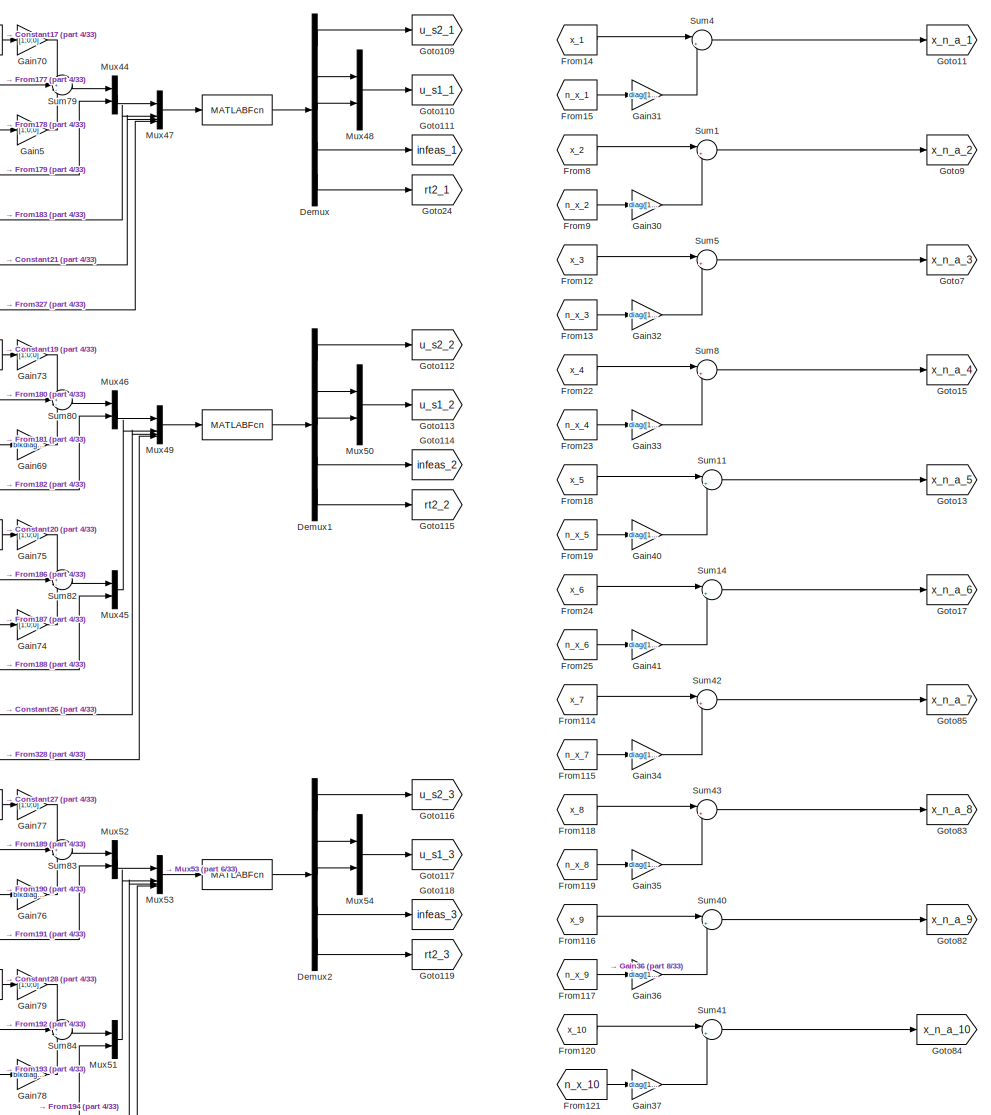
[diagram: root canvas - part 1/33, top center region]
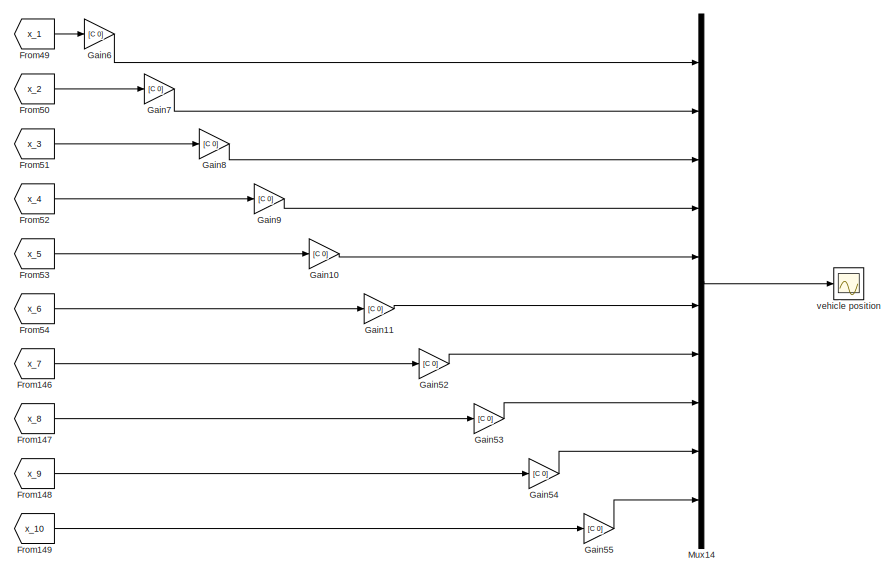
[diagram: root canvas - part 2/33, top right region]
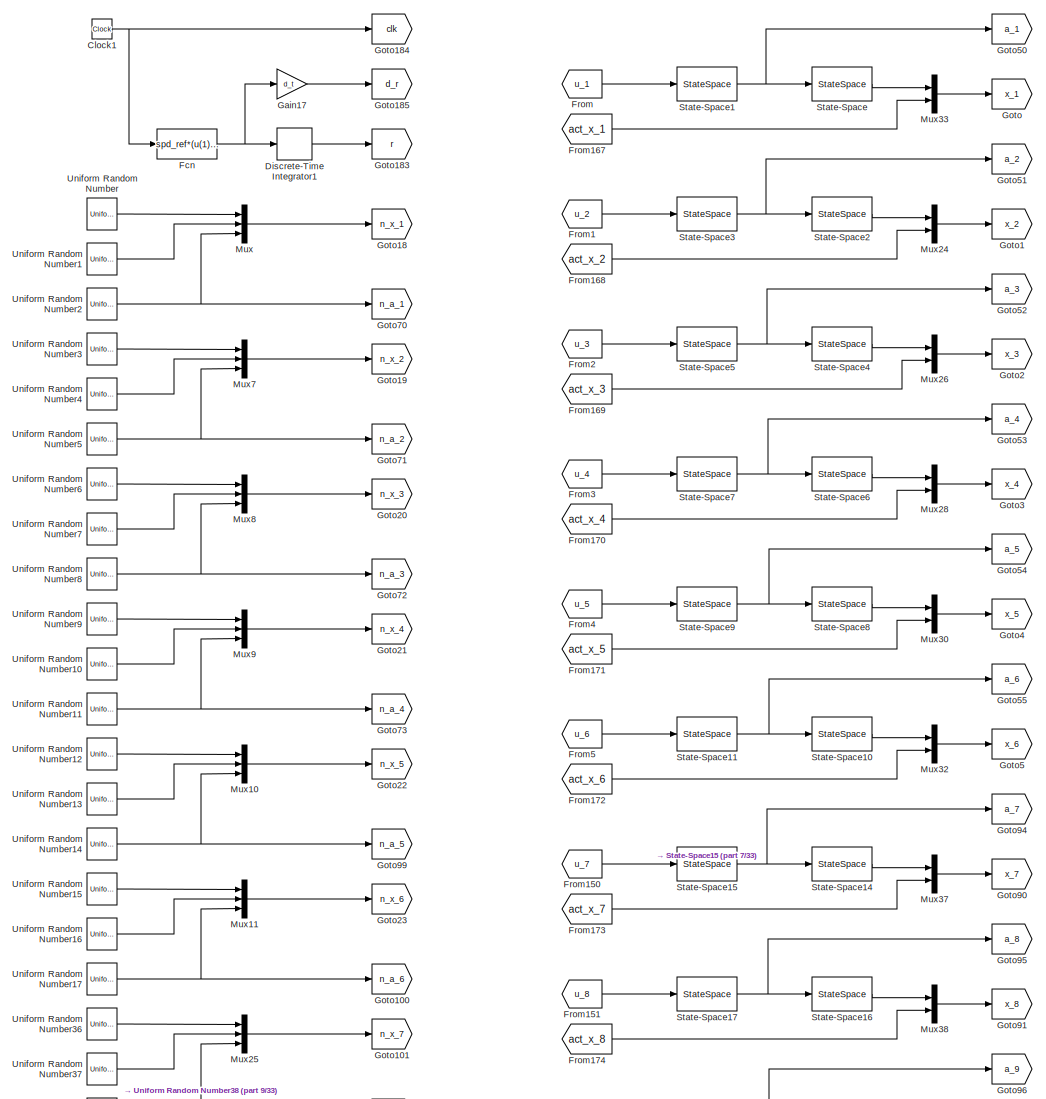
[diagram: root canvas - part 3/33, top left region]
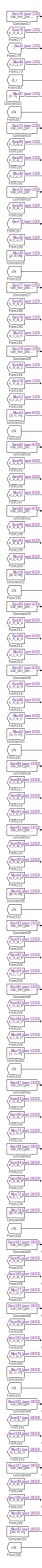
[diagram: root canvas - part 4/33, top center region]
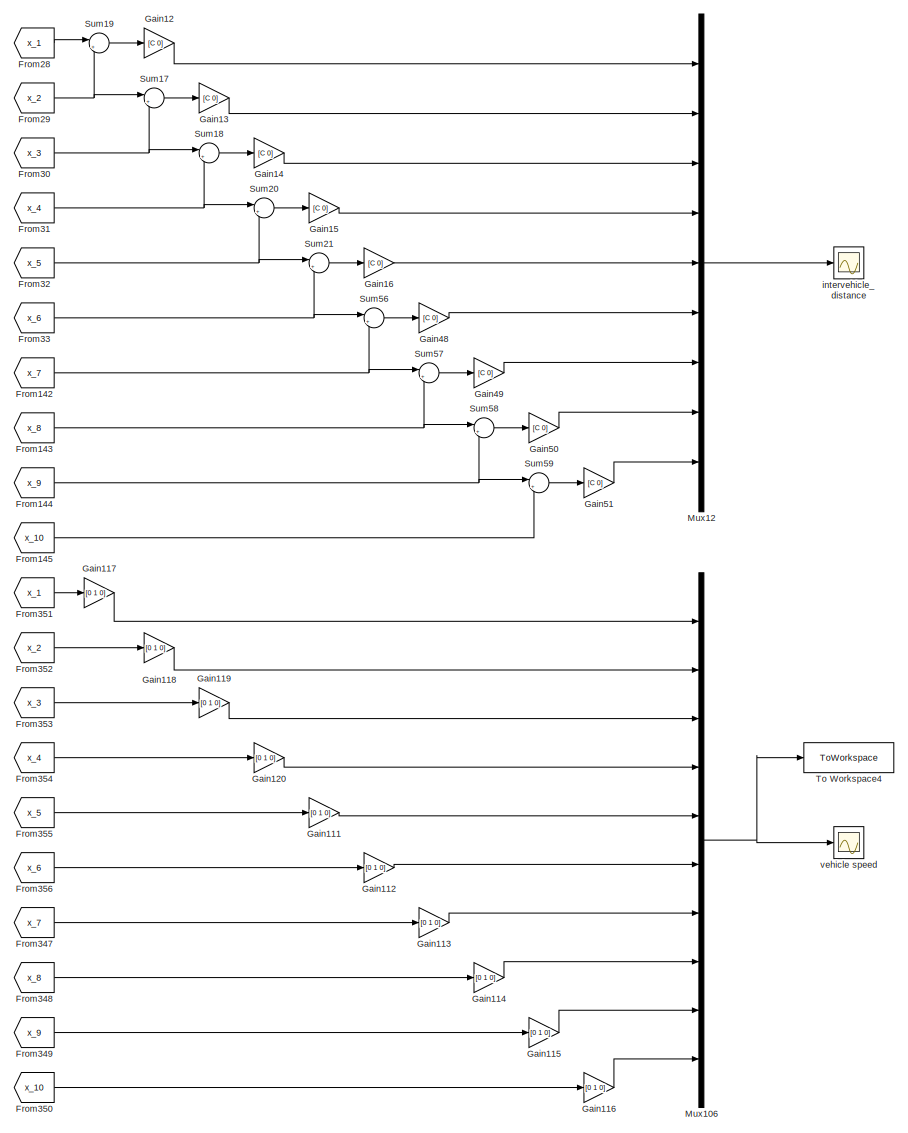
[diagram: root canvas - part 5/33, top right region]
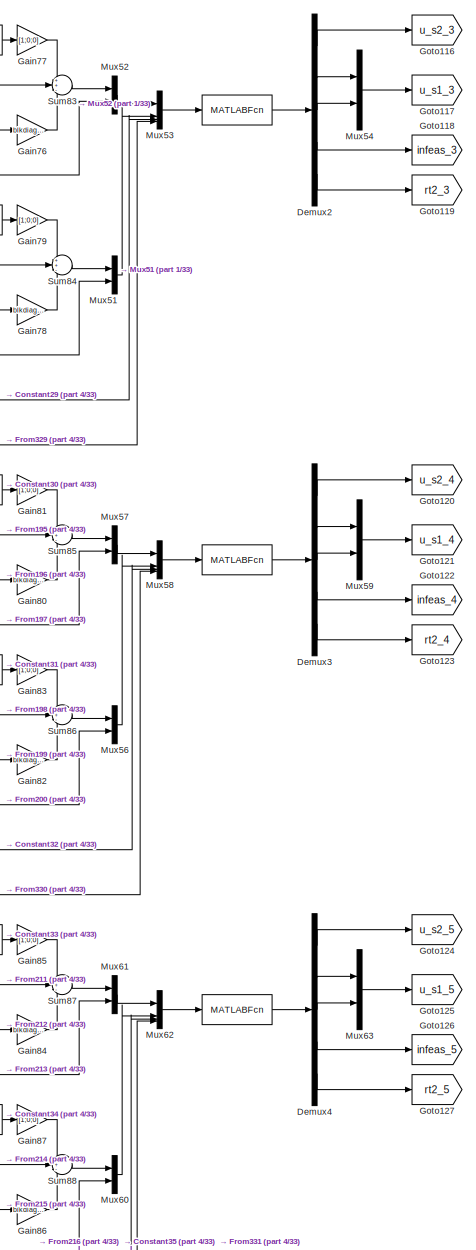
[diagram: root canvas - part 6/33, top center region]
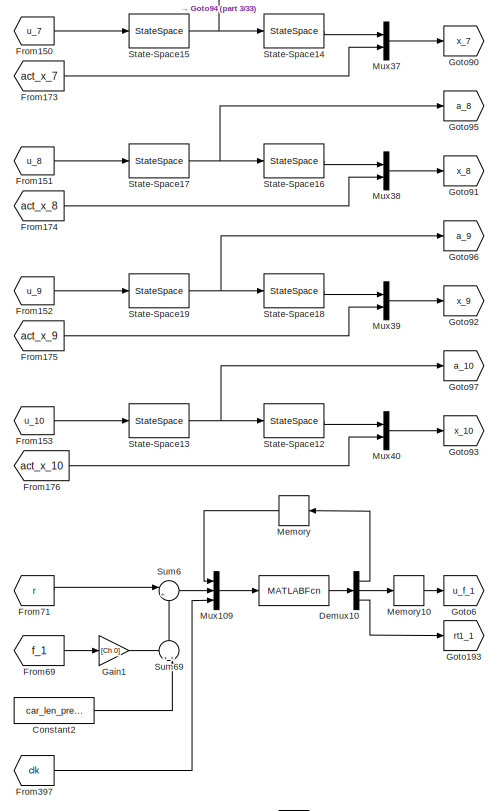
[diagram: root canvas - part 7/33, top left region]
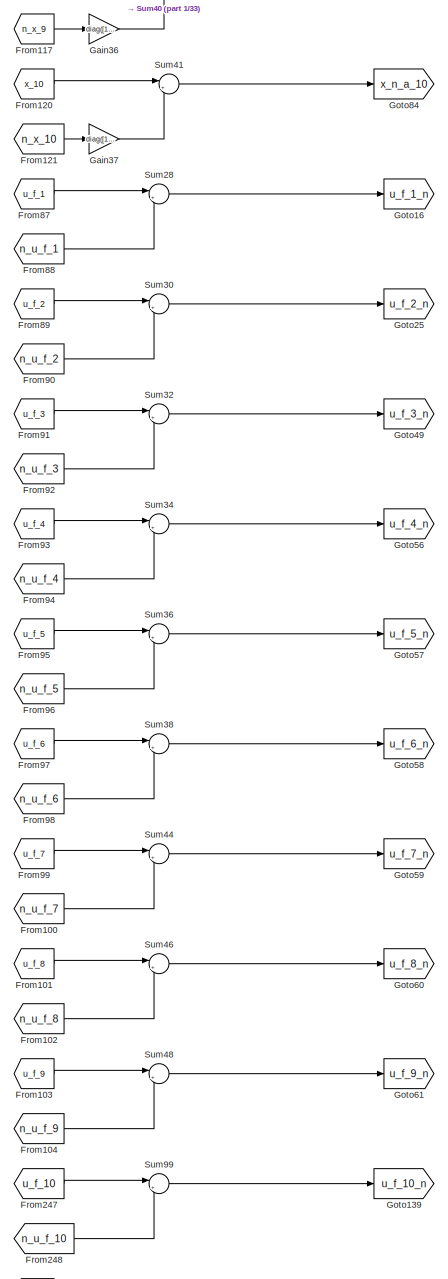
[diagram: root canvas - part 8/33, top center region]
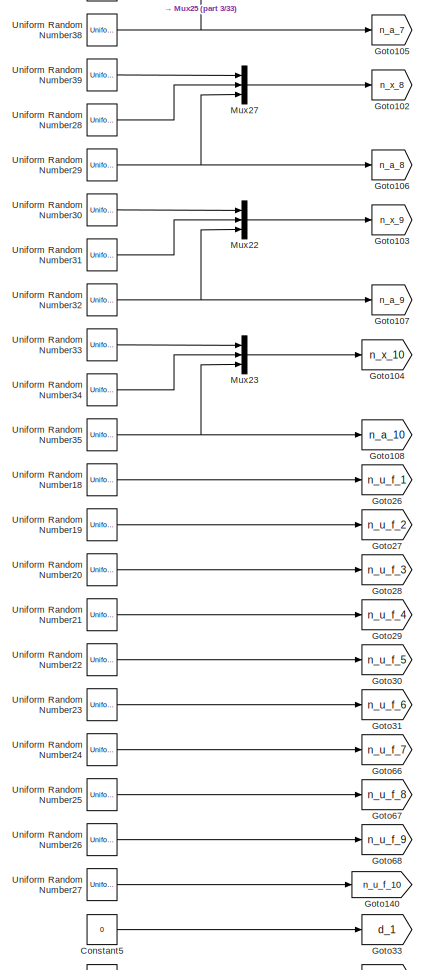
[diagram: root canvas - part 9/33, top left region]
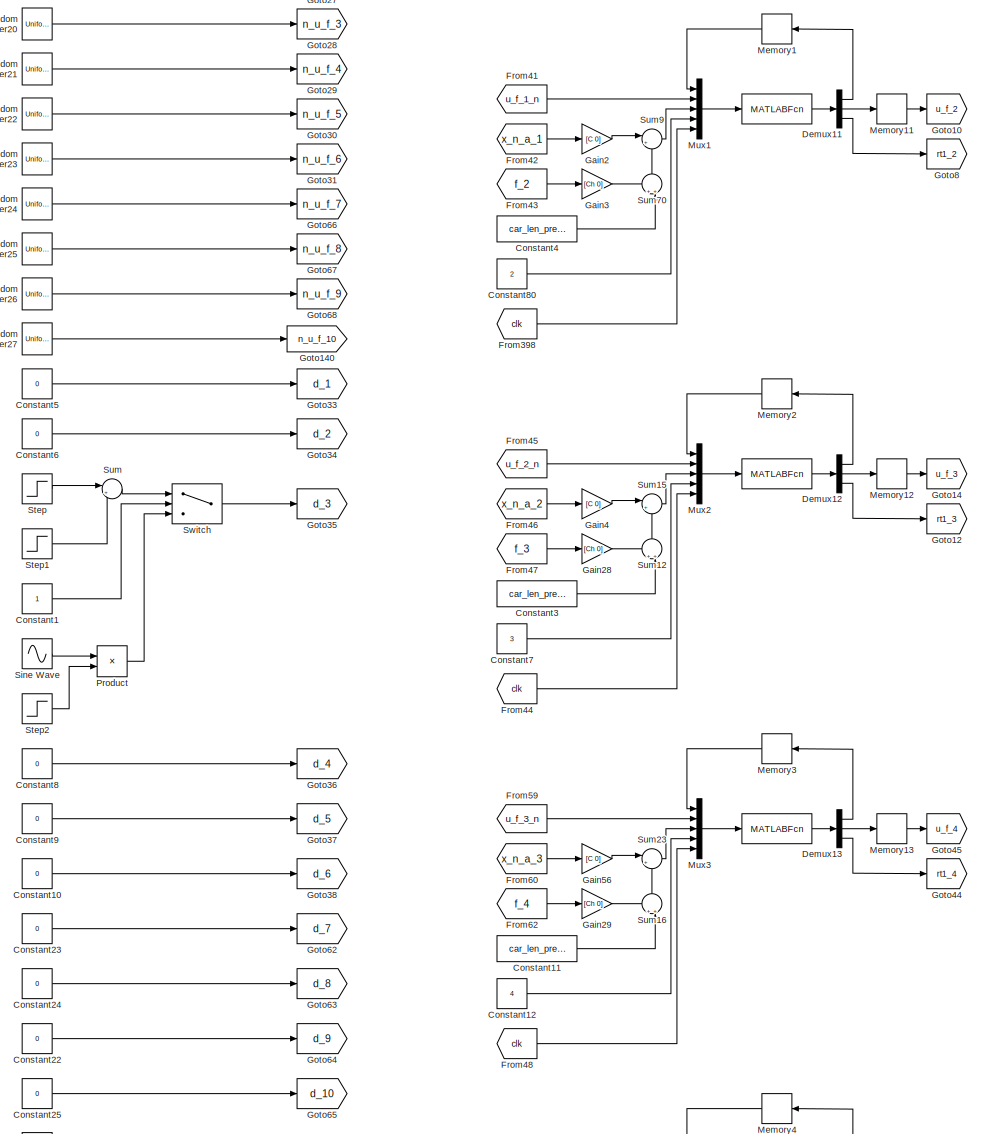
[diagram: root canvas - part 10/33, top left region]
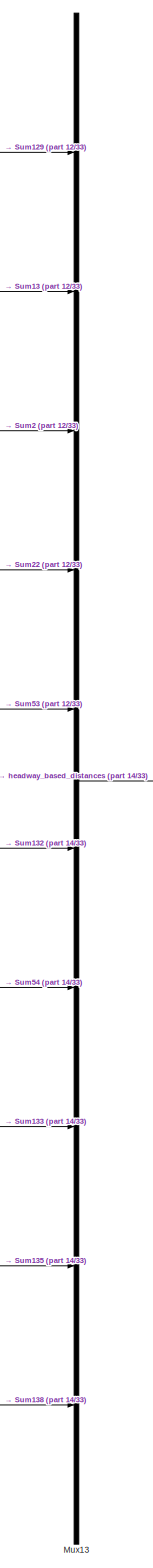
[diagram: root canvas - part 11/33, top right region]
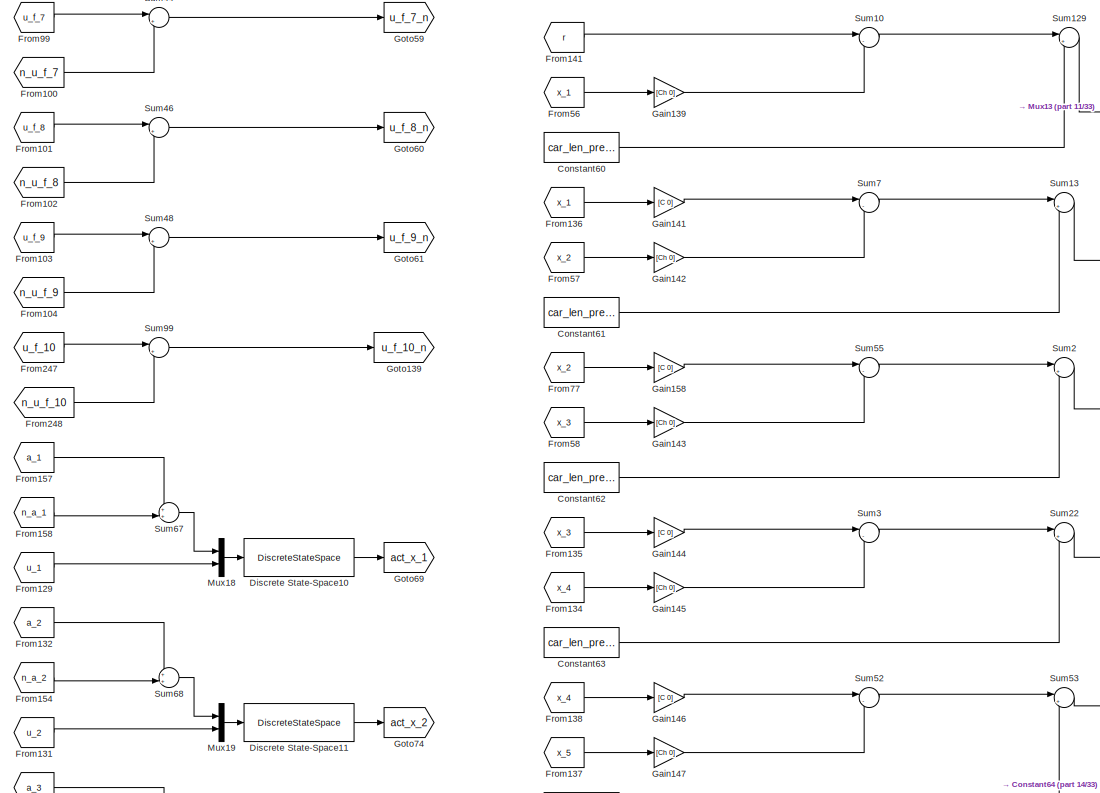
[diagram: root canvas - part 12/33, top right region]
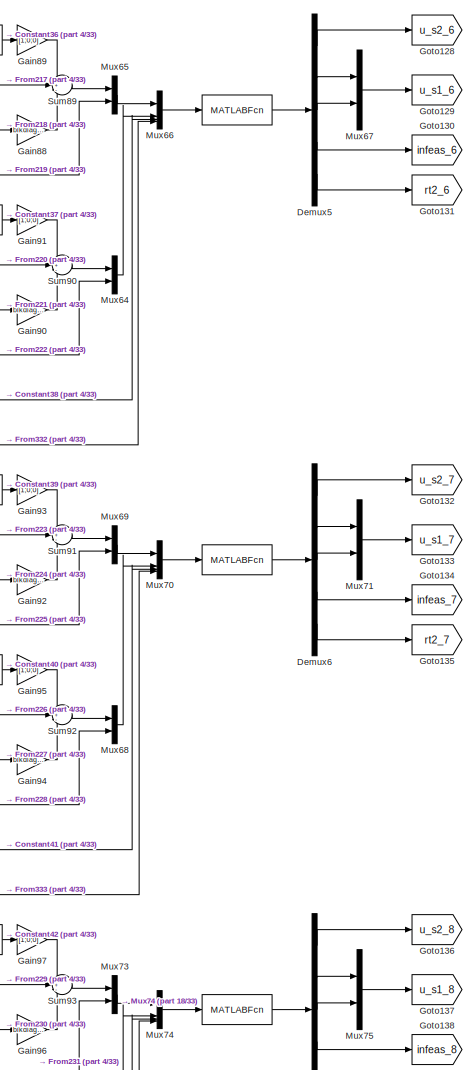
[diagram: root canvas - part 13/33, top center region]
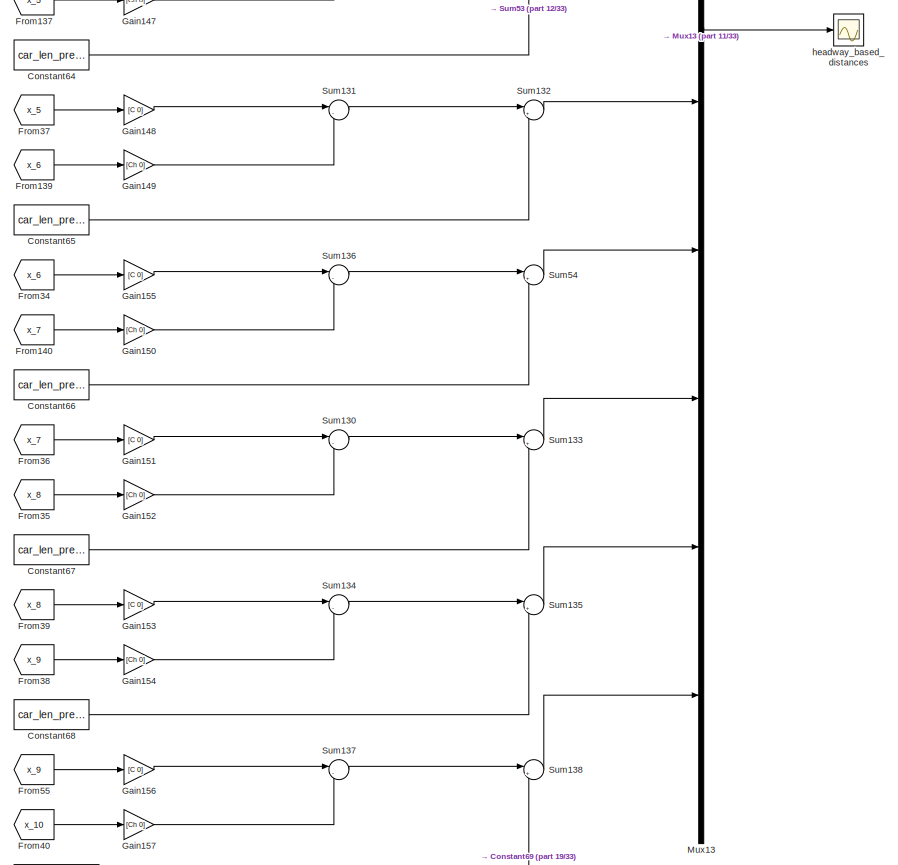
[diagram: root canvas - part 14/33, top right region]
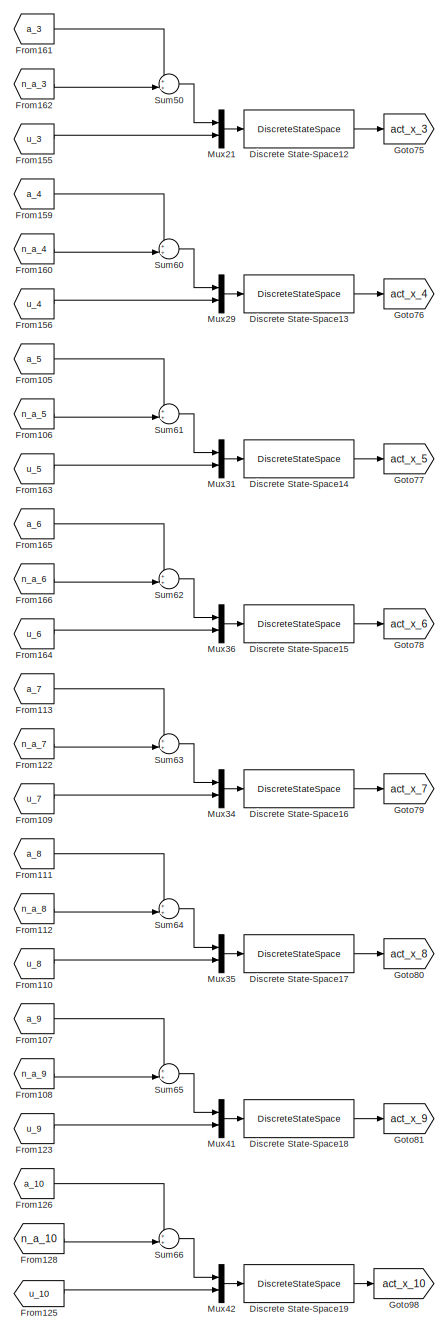
[diagram: root canvas - part 15/33, top center region]
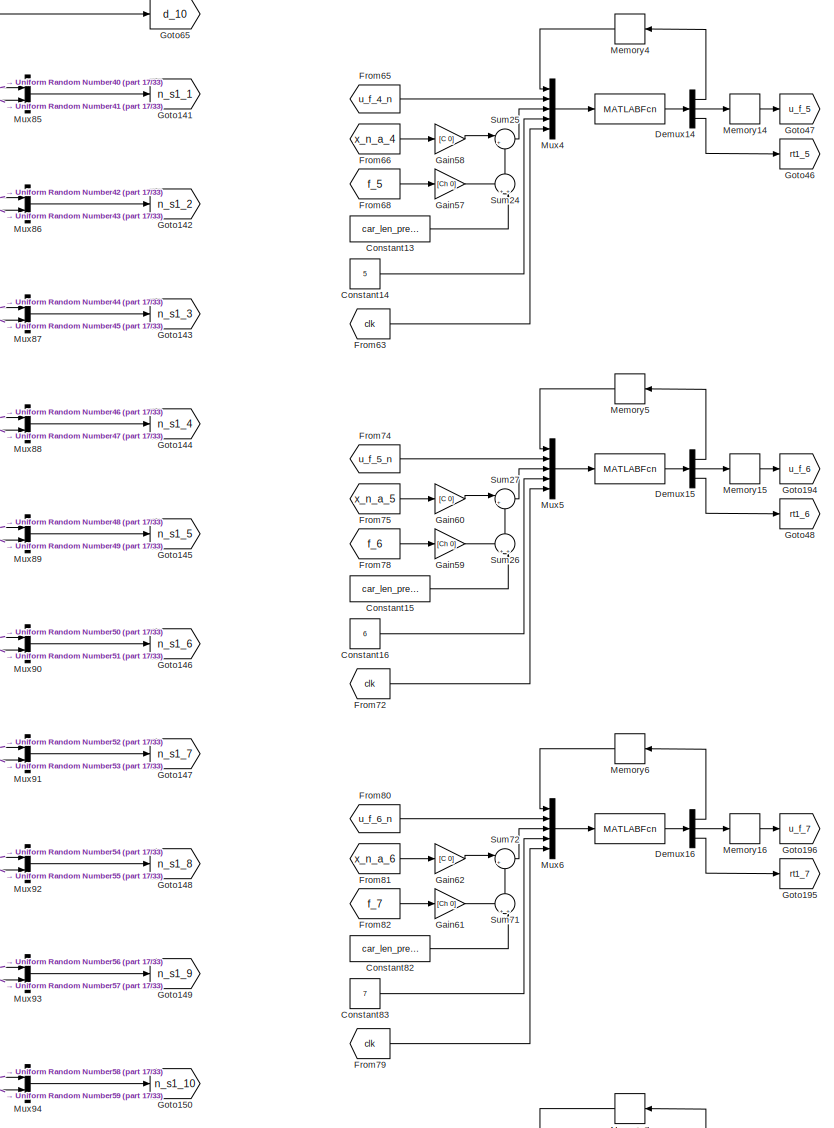
[diagram: root canvas - part 16/33, middle left region]
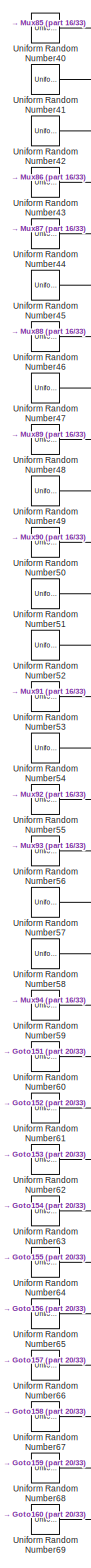
[diagram: root canvas - part 17/33, middle left region]
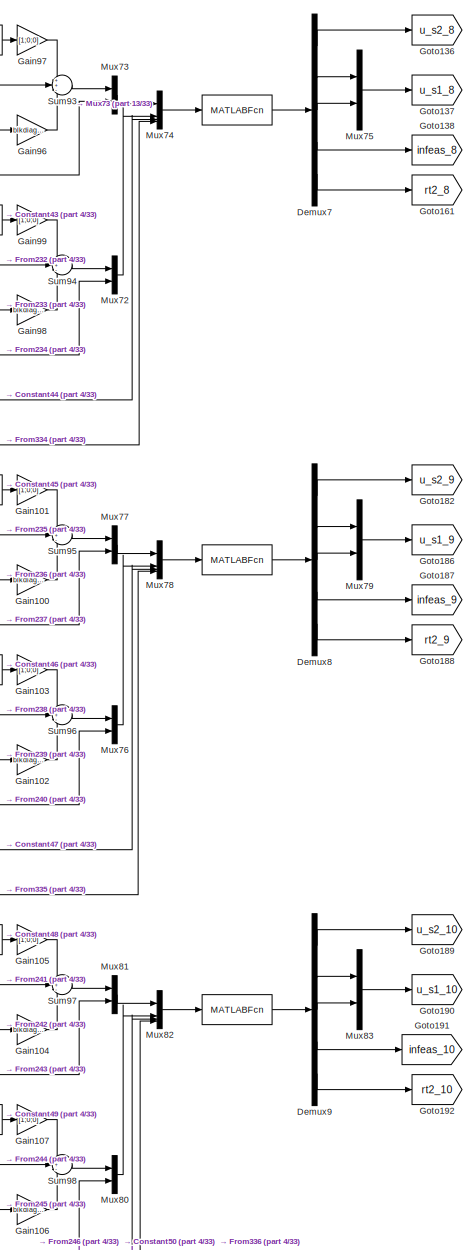
[diagram: root canvas - part 18/33, central region]
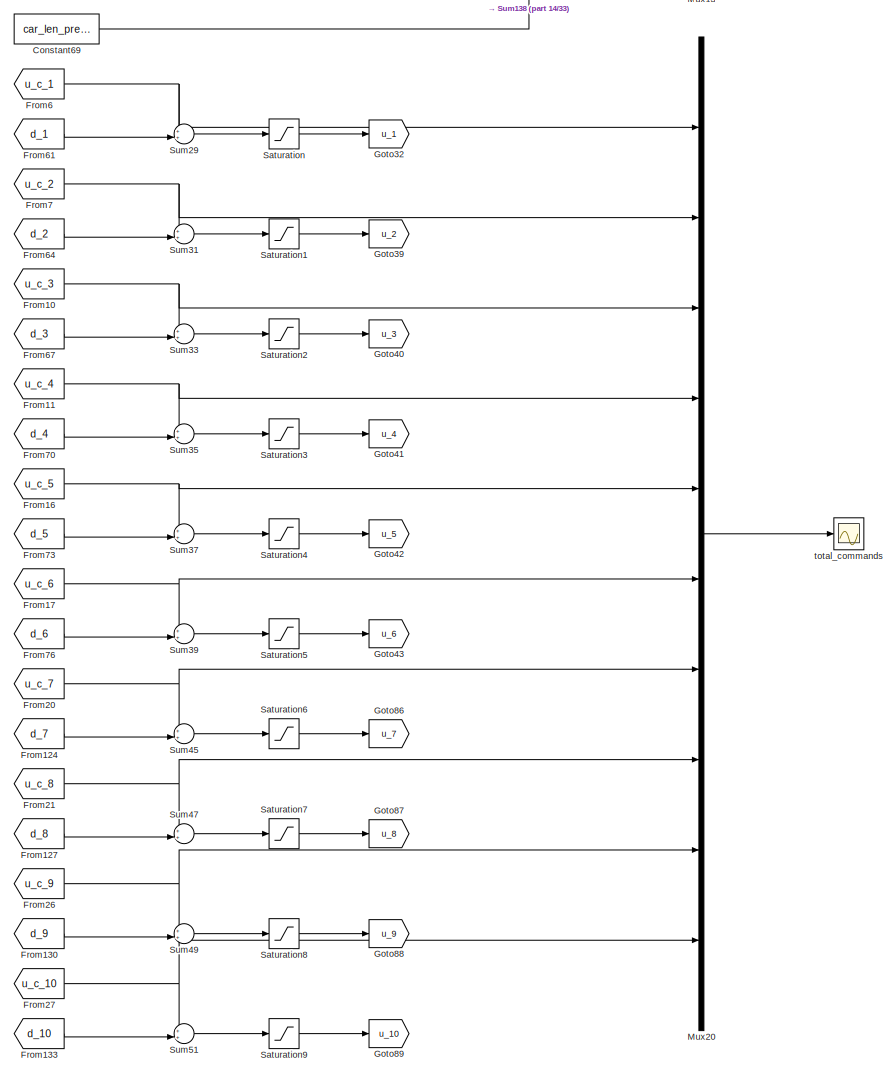
[diagram: root canvas - part 19/33, middle right region]
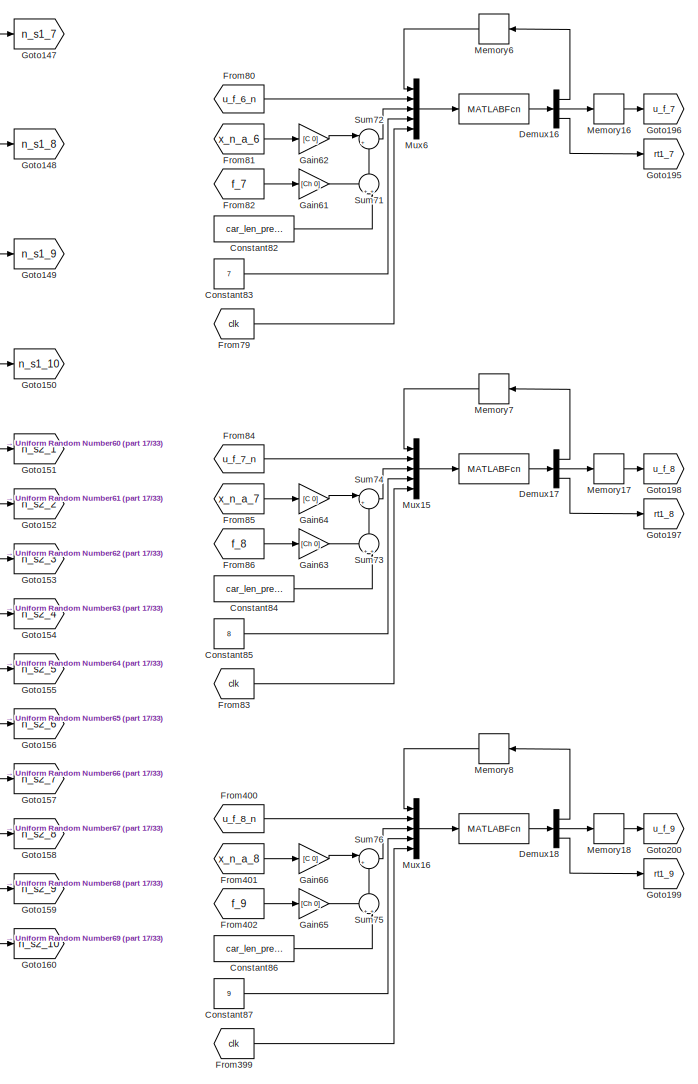
[diagram: root canvas - part 20/33, middle left region]
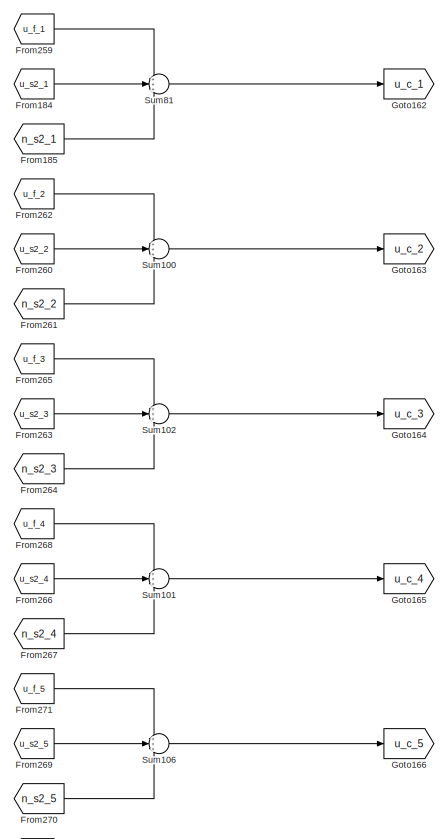
[diagram: root canvas - part 21/33, central region]
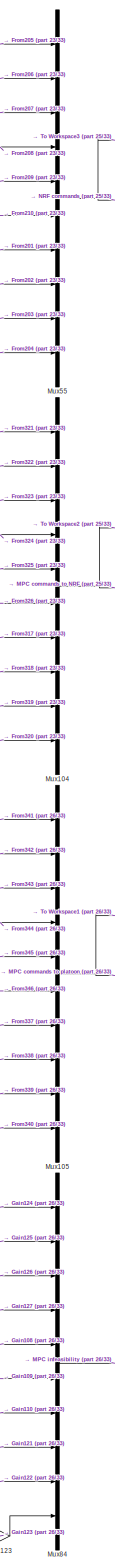
[diagram: root canvas - part 22/33, middle right region]
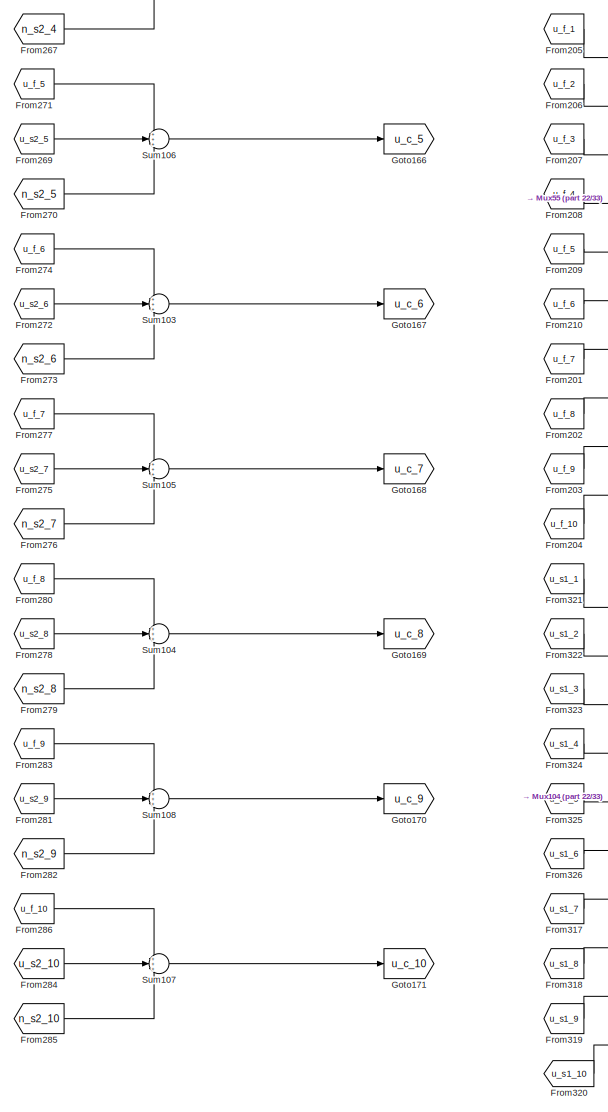
[diagram: root canvas - part 23/33, central region]
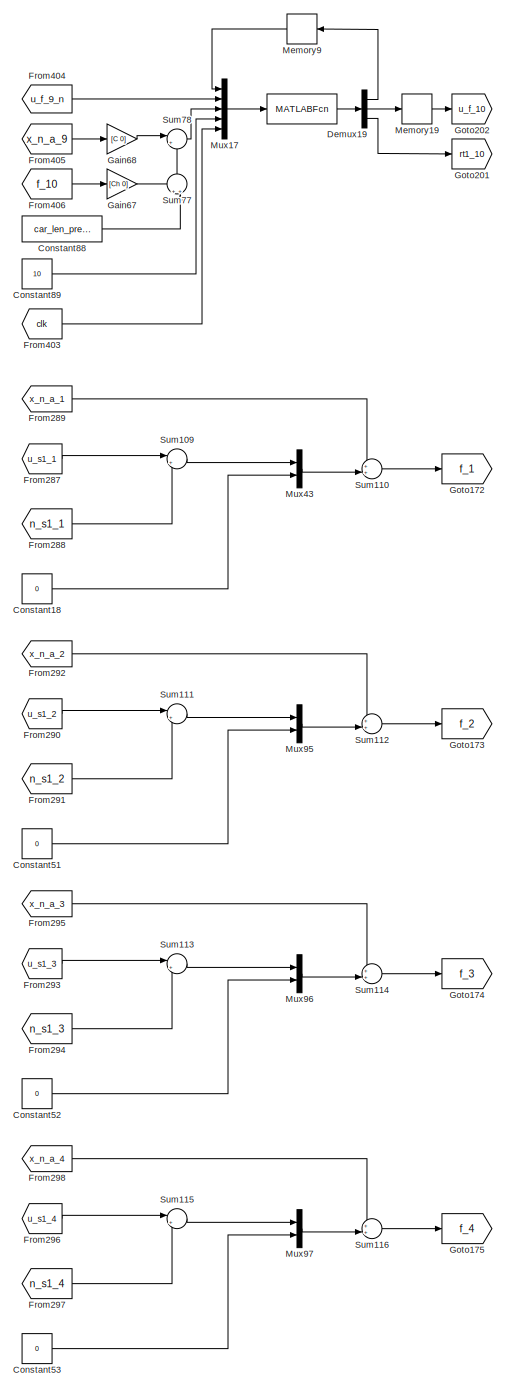
[diagram: root canvas - part 24/33, middle left region]
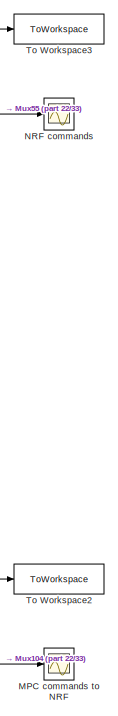
[diagram: root canvas - part 25/33, middle right region]
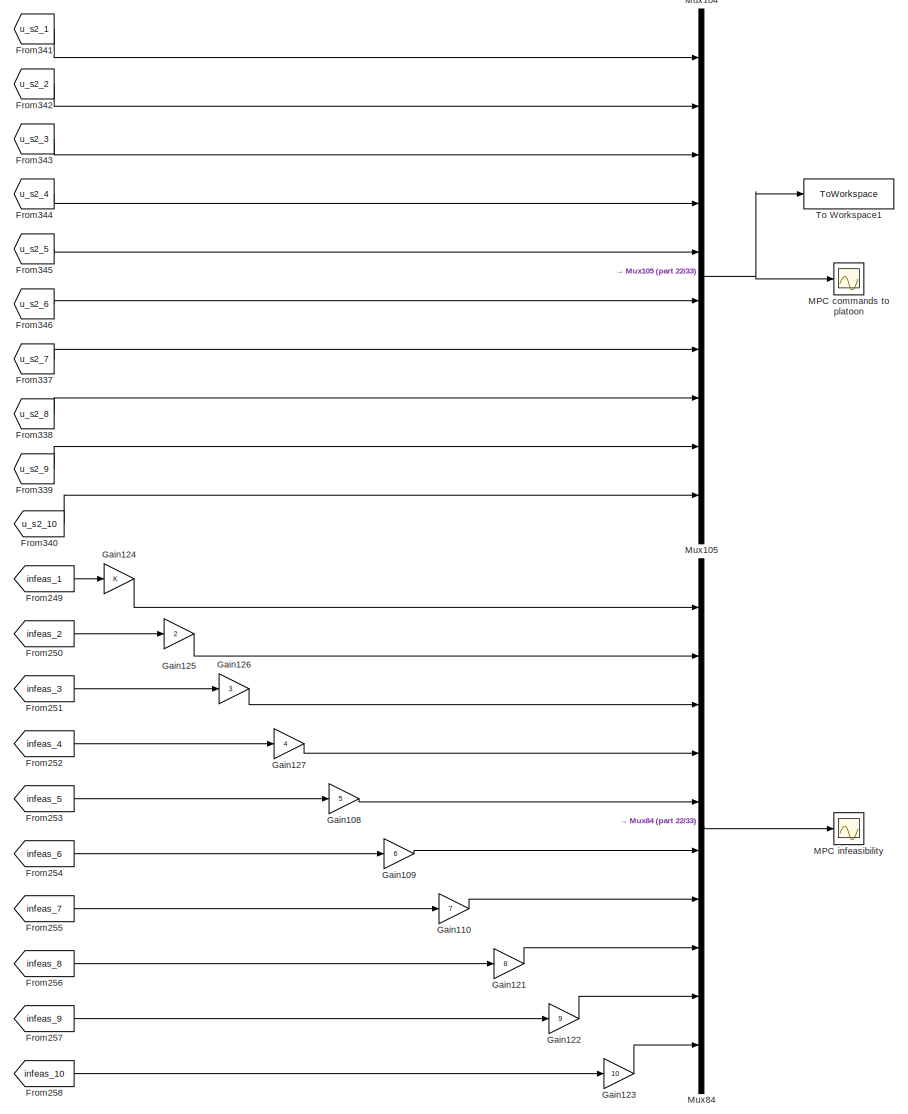
[diagram: root canvas - part 26/33, middle right region]
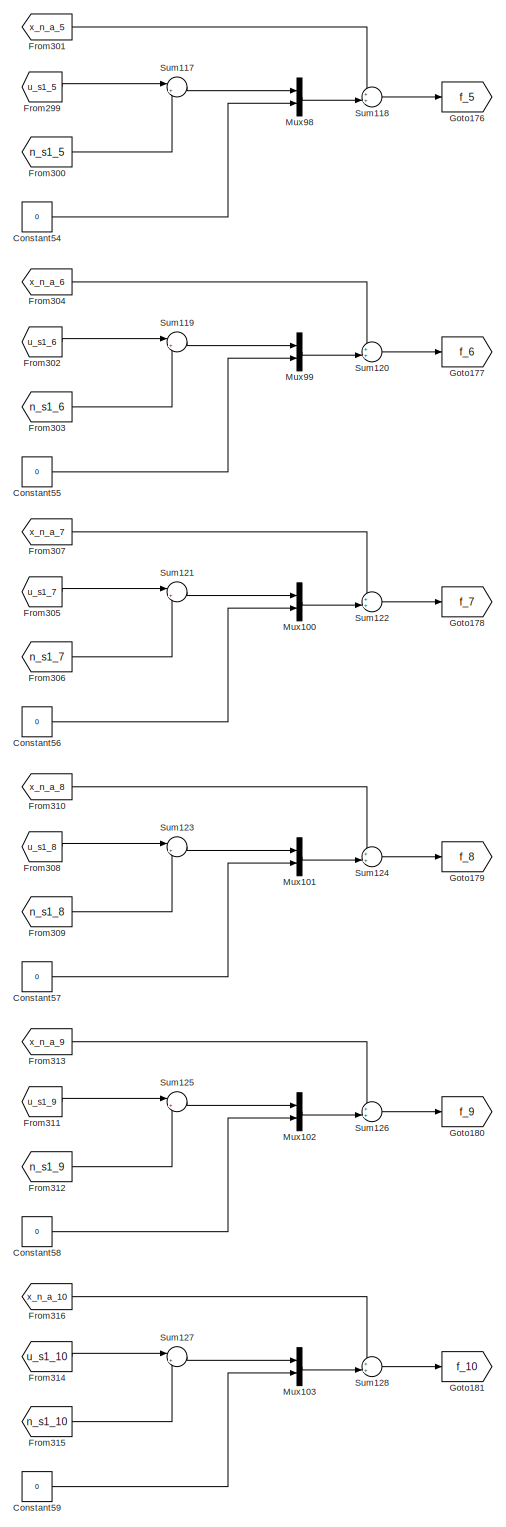
[diagram: root canvas - part 27/33, bottom left region]
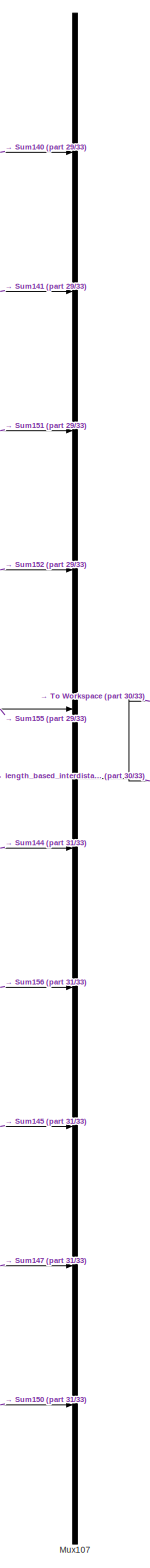
[diagram: root canvas - part 28/33, bottom right region]
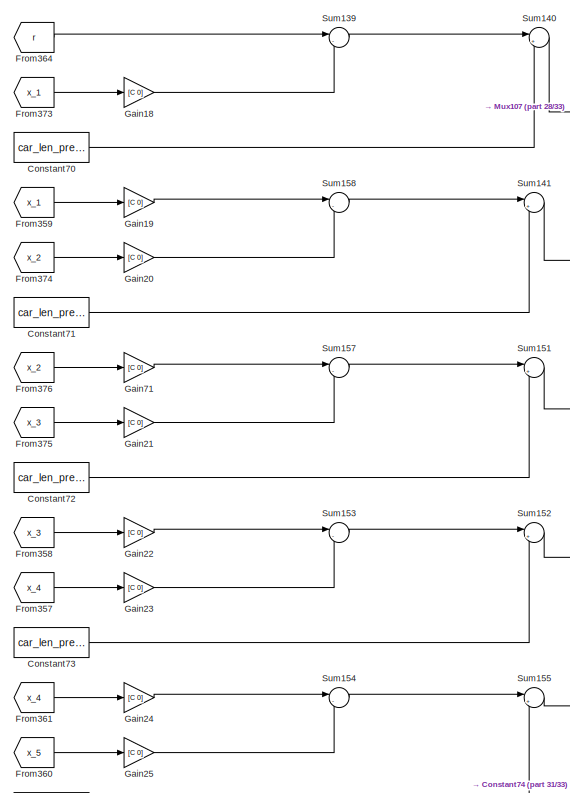
[diagram: root canvas - part 29/33, bottom right region]
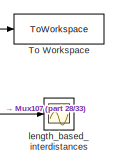
[diagram: root canvas - part 30/33, bottom right region]
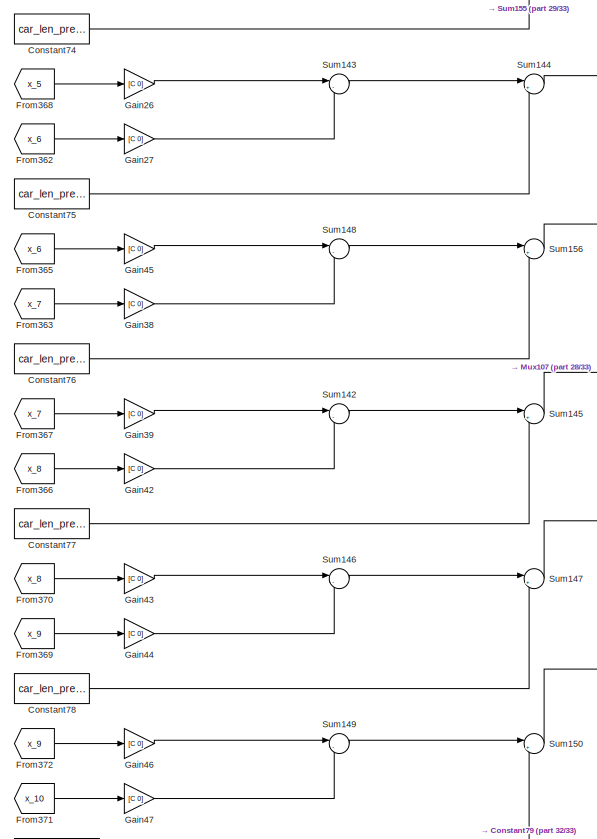
[diagram: root canvas - part 31/33, bottom right region]
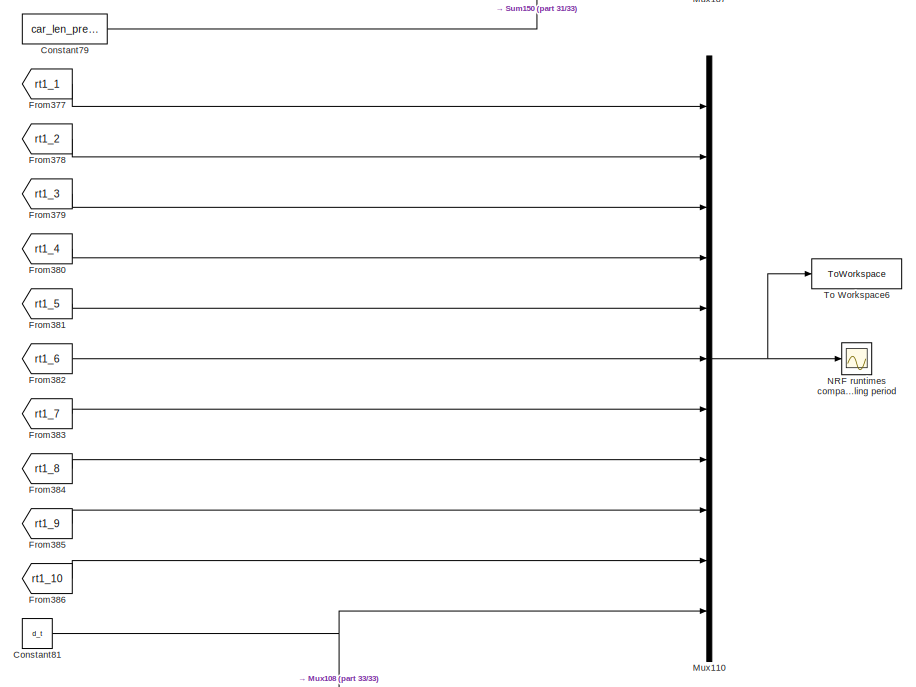
[diagram: root canvas - part 32/33, bottom right region]
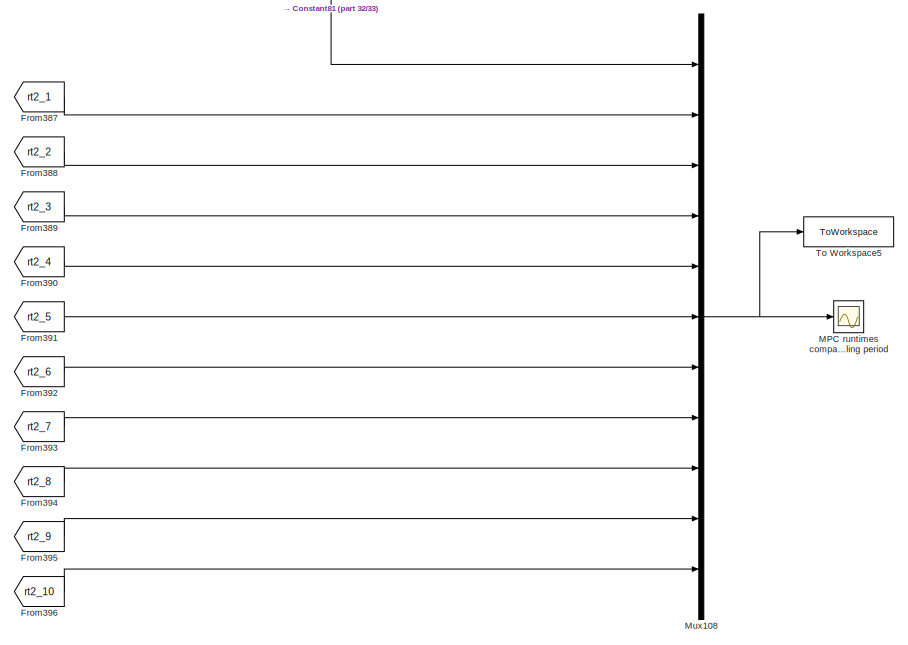
[diagram: root canvas - part 33/33, bottom right region]
MODEL slx_3b64a65d6e5b
KIND model
CONFIG AbsTol = auto
CONFIG EnableMultiTasking = off
CONFIG FixedStep = d_t
CONFIG MaxStep = auto
CONFIG MinStep = auto
CONFIG RelTol = 1e-3
CONFIG SampleTimeConstraint = Unconstrained
CONFIG SolverName = FixedStepAuto
CONFIG StartTime = 0.0
CONFIG StopTime = 240
BLOCK [MATLABFcn]  
  MATLABFcn = car_MPC_leader(u(1:n+n_w(1)),u(n+n_w(1)+1),u(n+n_w(1)+2:n+n_w(1)+3),u(n+n_w(1)+4))
  OutputDimensions = n+m+1
  SampleTime = d_t
BLOCK [MATLABFcn]   
  MATLABFcn = car_MPC_follower(u(1:n+n_w(2)),u(n+n_w(2)+1:2*n+n_w(1)+n_w(2)),u(2*n+n_w(1)+n_w(2)+1:2*n+n_w(1)+n_w(2)+3),u(2*n+n_w(1)+n_w(2)+4))
  OutputDimensions = n+m+1
  SampleTime = d_t
BLOCK [MATLABFcn]    
  MATLABFcn = car_MPC_follower(u(1:n+n_w(3)),u(n+n_w(3)+1:2*n+n_w(2)+n_w(3)),u(2*n+n_w(2)+n_w(3)+1:2*n+n_w(2)+n_w(3)+3),u(2*n+n_w(2)+n_w(3)+4))
  OutputDimensions = n+m+1
  SampleTime = d_t
BLOCK [MATLABFcn]     
  MATLABFcn = car_MPC_follower(u(1:n+n_w(4)),u(n+n_w(4)+1:2*n+n_w(3)+n_w(4)),u(2*n+n_w(3)+n_w(4)+1:2*n+n_w(3)+n_w(4)+3),u(2*n+n_w(3)+n_w(4)+4))
  OutputDimensions = n+m+1
  SampleTime = d_t
BLOCK [MATLABFcn]      
  MATLABFcn = car_MPC_follower(u(1:n+n_w(5)),u(n+n_w(5)+1:2*n+n_w(4)+n_w(5)),u(2*n+n_w(4)+n_w(5)+1:2*n+n_w(4)+n_w(5)+3),u(2*n+n_w(4)+n_w(5)+4))
  OutputDimensions = n+m+1
  SampleTime = d_t
BLOCK [MATLABFcn]       
  MATLABFcn = car_MPC_follower(u(1:n+n_w(6)),u(n+n_w(6)+1:2*n+n_w(5)+n_w(6)),u(2*n+n_w(5)+n_w(6)+1:2*n+n_w(5)+n_w(6)+3),u(2*n+n_w(5)+n_w(6)+4))
  OutputDimensions = n+m+1
  SampleTime = d_t
BLOCK [MATLABFcn]        
  MATLABFcn = car_MPC_follower(u(1:n+n_w(7)),u(n+n_w(7)+1:2*n+n_w(6)+n_w(7)),u(2*n+n_w(6)+n_w(7)+1:2*n+n_w(6)+n_w(7)+3),u(2*n+n_w(6)+n_w(7)+4))
  OutputDimensions = n+m+1
  SampleTime = d_t
BLOCK [MATLABFcn]         
  MATLABFcn = car_MPC_follower(u(1:n+n_w(8)),u(n+n_w(8)+1:2*n+n_w(7)+n_w(8)),u(2*n+n_w(7)+n_w(8)+1:2*n+n_w(7)+n_w(8)+3),u(2*n+n_w(7)+n_w(8)+4))
  OutputDimensions = n+m+1
  SampleTime = d_t
BLOCK [MATLABFcn]          
  MATLABFcn = car_MPC_follower(u(1:n+n_w(9)),u(n+n_w(9)+1:2*n+n_w(8)+n_w(9)),u(2*n+n_w(8)+n_w(9)+1:2*n+n_w(8)+n_w(9)+3),u(2*n+n_w(8)+n_w(9)+4))
  OutputDimensions = n+m+1
  SampleTime = d_t
BLOCK [MATLABFcn]           
  MATLABFcn = car_MPC_follower(u(1:n+n_w(10)),u(n+n_w(10)+1:2*n+n_w(9)+n_w(10)),u(2*n+n_w(9)+n_w(10)+1:2*n+n_w(9)+n_w(10)+3),u(2*n+n_w(9)+n_w(10)+4))
  OutputDimensions = n+m+1
  SampleTime = d_t
BLOCK [MATLABFcn]            
  MATLABFcn = car_NRF_leader(u(1:n_w(1)),u(n_w(1)+1),u(n_w(1)+2))
  OutputDimensions = n_w(1)+m+1
  SampleTime = d_t
BLOCK [MATLABFcn]             
  MATLABFcn = car_NRF_follower(u(1:n_w(2)),u(n_w(2)+1:n_w(2)+m),u(n_w(2)+m+1),u(n_w(2)+m+2),u(n_w(2)+m+3))
  OutputDimensions = n_w(2)+m+1
  SampleTime = d_t
BLOCK [MATLABFcn]              
  MATLABFcn = car_NRF_follower(u(1:n_w(3)),u(n_w(3)+1:n_w(3)+m),u(n_w(3)+m+1),u(n_w(3)+m+2),u(n_w(3)+m+3))
  OutputDimensions = n_w(3)+m+1
  SampleTime = d_t
BLOCK [MATLABFcn]               
  MATLABFcn = car_NRF_follower(u(1:n_w(4)),u(n_w(4)+1:n_w(4)+m),u(n_w(4)+m+1),u(n_w(4)+m+2),u(n_w(4)+m+3))
  OutputDimensions = n_w(4)+m+1
  SampleTime = d_t
BLOCK [MATLABFcn]                
  MATLABFcn = car_NRF_follower(u(1:n_w(5)),u(n_w(5)+1:n_w(5)+m),u(n_w(5)+m+1),u(n_w(5)+m+2),u(n_w(5)+m+3))
  OutputDimensions = n_w(5)+m+1
  SampleTime = d_t
BLOCK [MATLABFcn]                 
  MATLABFcn = car_NRF_follower(u(1:n_w(6)),u(n_w(6)+1:n_w(6)+m),u(n_w(6)+m+1),u(n_w(6)+m+2),u(n_w(6)+m+3))
  OutputDimensions = n_w(6)+m+1
  SampleTime = d_t
BLOCK [MATLABFcn]                  
  MATLABFcn = car_NRF_follower(u(1:n_w(7)),u(n_w(7)+1:n_w(7)+m),u(n_w(7)+m+1),u(n_w(7)+m+2),u(n_w(7)+m+3))
  OutputDimensions = n_w(7)+m+1
  SampleTime = d_t
BLOCK [MATLABFcn]                   
  MATLABFcn = car_NRF_follower(u(1:n_w(8)),u(n_w(8)+1:n_w(8)+m),u(n_w(8)+m+1),u(n_w(8)+m+2),u(n_w(8)+m+3))
  OutputDimensions = n_w(8)+m+1
  SampleTime = d_t
BLOCK [MATLABFcn]                    
  MATLABFcn = car_NRF_follower(u(1:n_w(9)),u(n_w(9)+1:n_w(9)+m),u(n_w(9)+m+1),u(n_w(9)+m+2),u(n_w(9)+m+3))
  OutputDimensions = n_w(9)+m+1
  SampleTime = d_t
BLOCK [MATLABFcn]                     
  MATLABFcn = car_NRF_follower(u(1:n_w(10)),u(n_w(10)+1:n_w(10)+m),u(n_w(10)+m+1),u(n_w(10)+m+2),u(n_w(10)+m+3))
  OutputDimensions = n_w(10)+m+1
  SampleTime = d_t
BLOCK [Clock] Clock1
BLOCK [Constant] Constant1
BLOCK [Constant] Constant10
  SampleTime = d_t
  Value = 0
BLOCK [Constant] Constant11
  SampleTime = d_t
  Value = car_len_prev(4)
BLOCK [Constant] Constant12
  SampleTime = d_t
  Value = 4
BLOCK [Constant] Constant13
  SampleTime = d_t
  Value = car_len_prev(5)
BLOCK [Constant] Constant14
  SampleTime = d_t
  Value = 5
BLOCK [Constant] Constant15
  SampleTime = d_t
  Value = car_len_prev(6)
BLOCK [Constant] Constant16
  SampleTime = d_t
  Value = 6
BLOCK [Constant] Constant17
  SampleTime = d_t
  Value = car_len_prev(1)
BLOCK [Constant] Constant18
  SampleTime = d_t
  Value = 0
BLOCK [Constant] Constant19
  SampleTime = d_t
  Value = car_len_prev(2)
BLOCK [Constant] Constant2
  SampleTime = d_t
  Value = car_len_prev(1)
BLOCK [Constant] Constant20
  SampleTime = d_t
  Value = car_len_prev(1)
BLOCK [Constant] Constant21
  SampleTime = d_t
  Value = [n; m]
BLOCK [Constant] Constant22
  SampleTime = d_t
  Value = 0
BLOCK [Constant] Constant23
  SampleTime = d_t
  Value = 0
BLOCK [Constant] Constant24
  SampleTime = d_t
  Value = 0
BLOCK [Constant] Constant25
  SampleTime = d_t
  Value = 0
BLOCK [Constant] Constant26
  SampleTime = d_t
  Value = [2; n; m]
BLOCK [Constant] Constant27
  SampleTime = d_t
  Value = car_len_prev(3)
BLOCK [Constant] Constant28
  SampleTime = d_t
  Value = car_len_prev(2)
BLOCK [Constant] Constant29
  SampleTime = d_t
  Value = [3; n; m]
BLOCK [Constant] Constant3
  SampleTime = d_t
  Value = car_len_prev(3)
BLOCK [Constant] Constant30
  SampleTime = d_t
  Value = car_len_prev(4)
BLOCK [Constant] Constant31
  SampleTime = d_t
  Value = car_len_prev(3)
BLOCK [Constant] Constant32
  SampleTime = d_t
  Value = [4; n; m]
BLOCK [Constant] Constant33
  SampleTime = d_t
  Value = car_len_prev(5)
BLOCK [Constant] Constant34
  SampleTime = d_t
  Value = car_len_prev(4)
BLOCK [Constant] Constant35
  SampleTime = d_t
  Value = [5; n; m]
BLOCK [Constant] Constant36
  SampleTime = d_t
  Value = car_len_prev(6)
BLOCK [Constant] Constant37
  SampleTime = d_t
  Value = car_len_prev(5)
BLOCK [Constant] Constant38
  SampleTime = d_t
  Value = [6; n; m]
BLOCK [Constant] Constant39
  SampleTime = d_t
  Value = car_len_prev(7)
BLOCK [Constant] Constant4
  SampleTime = d_t
  Value = car_len_prev(2)
BLOCK [Constant] Constant40
  SampleTime = d_t
  Value = car_len_prev(6)
BLOCK [Constant] Constant41
  SampleTime = d_t
  Value = [7; n; m]
BLOCK [Constant] Constant42
  SampleTime = d_t
  Value = car_len_prev(8)
BLOCK [Constant] Constant43
  SampleTime = d_t
  Value = car_len_prev(7)
BLOCK [Constant] Constant44
  SampleTime = d_t
  Value = [8; n; m]
BLOCK [Constant] Constant45
  SampleTime = d_t
  Value = car_len_prev(9)
BLOCK [Constant] Constant46
  SampleTime = d_t
  Value = car_len_prev(8)
BLOCK [Constant] Constant47
  SampleTime = d_t
  Value = [9; n; m]
BLOCK [Constant] Constant48
  SampleTime = d_t
  Value = car_len_prev(10)
BLOCK [Constant] Constant49
  SampleTime = d_t
  Value = car_len_prev(9)
BLOCK [Constant] Constant5
  SampleTime = d_t
  Value = 0
BLOCK [Constant] Constant50
  SampleTime = d_t
  Value = [10; n; m]
BLOCK [Constant] Constant51
  SampleTime = d_t
  Value = 0
BLOCK [Constant] Constant52
  SampleTime = d_t
  Value = 0
BLOCK [Constant] Constant53
  SampleTime = d_t
  Value = 0
BLOCK [Constant] Constant54
  SampleTime = d_t
  Value = 0
BLOCK [Constant] Constant55
  SampleTime = d_t
  Value = 0
BLOCK [Constant] Constant56
  SampleTime = d_t
  Value = 0
BLOCK [Constant] Constant57
  SampleTime = d_t
  Value = 0
BLOCK [Constant] Constant58
  SampleTime = d_t
  Value = 0
BLOCK [Constant] Constant59
  SampleTime = d_t
  Value = 0
BLOCK [Constant] Constant6
  SampleTime = d_t
  Value = 0
BLOCK [Constant] Constant60
  SampleTime = d_t
  Value = car_len_prev(1)
BLOCK [Constant] Constant61
  SampleTime = d_t
  Value = car_len_prev(2)
BLOCK [Constant] Constant62
  SampleTime = d_t
  Value = car_len_prev(3)
BLOCK [Constant] Constant63
  SampleTime = d_t
  Value = car_len_prev(4)
BLOCK [Constant] Constant64
  SampleTime = d_t
  Value = car_len_prev(5)
BLOCK [Constant] Constant65
  SampleTime = d_t
  Value = car_len_prev(6)
BLOCK [Constant] Constant66
  SampleTime = d_t
  Value = car_len_prev(7)
BLOCK [Constant] Constant67
  SampleTime = d_t
  Value = car_len_prev(8)
BLOCK [Constant] Constant68
  SampleTime = d_t
  Value = car_len_prev(9)
BLOCK [Constant] Constant69
  SampleTime = d_t
  Value = car_len_prev(10)
BLOCK [Constant] Constant7
  SampleTime = d_t
  Value = 3
BLOCK [Constant] Constant70
  SampleTime = d_t
  Value = car_len_prev(1)
BLOCK [Constant] Constant71
  SampleTime = d_t
  Value = car_len_prev(2)
BLOCK [Constant] Constant72
  SampleTime = d_t
  Value = car_len_prev(3)
BLOCK [Constant] Constant73
  SampleTime = d_t
  Value = car_len_prev(4)
BLOCK [Constant] Constant74
  SampleTime = d_t
  Value = car_len_prev(5)
BLOCK [Constant] Constant75
  SampleTime = d_t
  Value = car_len_prev(6)
BLOCK [Constant] Constant76
  SampleTime = d_t
  Value = car_len_prev(7)
BLOCK [Constant] Constant77
  SampleTime = d_t
  Value = car_len_prev(8)
BLOCK [Constant] Constant78
  SampleTime = d_t
  Value = car_len_prev(9)
BLOCK [Constant] Constant79
  SampleTime = d_t
  Value = car_len_prev(10)
BLOCK [Constant] Constant8
  SampleTime = d_t
  Value = 0
BLOCK [Constant] Constant80
  SampleTime = d_t
  Value = 2
BLOCK [Constant] Constant81
  Value = d_t
BLOCK [Constant] Constant82
  SampleTime = d_t
  Value = car_len_prev(7)
BLOCK [Constant] Constant83
  SampleTime = d_t
  Value = 7
BLOCK [Constant] Constant84
  SampleTime = d_t
  Value = car_len_prev(8)
BLOCK [Constant] Constant85
  SampleTime = d_t
  Value = 8
BLOCK [Constant] Constant86
  SampleTime = d_t
  Value = car_len_prev(9)
BLOCK [Constant] Constant87
  SampleTime = d_t
  Value = 9
BLOCK [Constant] Constant88
  SampleTime = d_t
  Value = car_len_prev(10)
BLOCK [Constant] Constant89
  SampleTime = d_t
  Value = 10
BLOCK [Constant] Constant9
  SampleTime = d_t
  Value = 0
BLOCK [Demux] Demux
  Outputs = 5
BLOCK [Demux] Demux1
  Outputs = 5
BLOCK [Demux] Demux10
  Outputs = 3
BLOCK [Demux] Demux11
  Outputs = 3
BLOCK [Demux] Demux12
  Outputs = 3
BLOCK [Demux] Demux13
  Outputs = 3
BLOCK [Demux] Demux14
  Outputs = 3
BLOCK [Demux] Demux15
  Outputs = 3
BLOCK [Demux] Demux16
  Outputs = 3
BLOCK [Demux] Demux17
  Outputs = 3
BLOCK [Demux] Demux18
  Outputs = 3
BLOCK [Demux] Demux19
  Outputs = 3
BLOCK [Demux] Demux2
  Outputs = 5
BLOCK [Demux] Demux3
  Outputs = 5
BLOCK [Demux] Demux4
  Outputs = 5
BLOCK [Demux] Demux5
  Outputs = 5
BLOCK [Demux] Demux6
  Outputs = 5
BLOCK [Demux] Demux7
  Outputs = 5
BLOCK [Demux] Demux8
  Outputs = 5
BLOCK [Demux] Demux9
  Outputs = 5
BLOCK [DiscreteStateSpace] Discrete State-Space10
  A = act_est{1}.a
  B = act_est{1}.b
  C = act_est{1}.c
  D = act_est{1}.d
  SampleTime = d_t
BLOCK [DiscreteStateSpace] Discrete State-Space11
  A = act_est{2}.a
  B = act_est{2}.b
  C = act_est{2}.c
  D = act_est{2}.d
  SampleTime = d_t
BLOCK [DiscreteStateSpace] Discrete State-Space12
  A = act_est{3}.a
  B = act_est{3}.b
  C = act_est{3}.c
  D = act_est{3}.d
  SampleTime = d_t
BLOCK [DiscreteStateSpace] Discrete State-Space13
  A = act_est{4}.a
  B = act_est{4}.b
  C = act_est{4}.c
  D = act_est{4}.d
  SampleTime = d_t
BLOCK [DiscreteStateSpace] Discrete State-Space14
  A = act_est{5}.a
  B = act_est{5}.b
  C = act_est{5}.c
  D = act_est{5}.d
  SampleTime = d_t
BLOCK [DiscreteStateSpace] Discrete State-Space15
  A = act_est{6}.a
  B = act_est{6}.b
  C = act_est{6}.c
  D = act_est{6}.d
  SampleTime = d_t
BLOCK [DiscreteStateSpace] Discrete State-Space16
  A = act_est{7}.a
  B = act_est{7}.b
  C = act_est{7}.c
  D = act_est{7}.d
  SampleTime = d_t
BLOCK [DiscreteStateSpace] Discrete State-Space17
  A = act_est{8}.a
  B = act_est{8}.b
  C = act_est{8}.c
  D = act_est{8}.d
  SampleTime = d_t
BLOCK [DiscreteStateSpace] Discrete State-Space18
  A = act_est{9}.a
  B = act_est{9}.b
  C = act_est{9}.c
  D = act_est{9}.d
  SampleTime = d_t
BLOCK [DiscreteStateSpace] Discrete State-Space19
  A = act_est{10}.a
  B = act_est{10}.b
  C = act_est{10}.c
  D = act_est{10}.d
  SampleTime = d_t
BLOCK [DiscreteIntegrator] Discrete-Time Integrator1
  ICPrevOutput = DiscIntNeverNeededParam
  ICPrevScaledInput = DiscIntNeverNeededParam
  InitialCondition = pos_ref
  InitialConditionSetting = Auto
  SampleTime = d_t
BLOCK [Fcn] Fcn
  Expr = spd_ref*(u(1)>=0)+(3-spd_ref)*(u(1)>=40)+31*(u(1)>=120)-31*(u(1)>=130)
BLOCK [From] From
  GotoTag = u_1
BLOCK [From] From1
  GotoTag = u_2
BLOCK [From] From10
  GotoTag = u_c_3
BLOCK [From] From100
  GotoTag = n_u_f_7
BLOCK [From] From101
  GotoTag = u_f_8
BLOCK [From] From102
  GotoTag = n_u_f_8
BLOCK [From] From103
  GotoTag = u_f_9
BLOCK [From] From104
  GotoTag = n_u_f_9
BLOCK [From] From105
  GotoTag = a_5
BLOCK [From] From106
  GotoTag = n_a_5
BLOCK [From] From107
  GotoTag = a_9
BLOCK [From] From108
  GotoTag = n_a_9
BLOCK [From] From109
  GotoTag = u_7
BLOCK [From] From11
  GotoTag = u_c_4
BLOCK [From] From110
  GotoTag = u_8
BLOCK [From] From111
  GotoTag = a_8
BLOCK [From] From112
  GotoTag = n_a_8
BLOCK [From] From113
  GotoTag = a_7
BLOCK [From] From114
  GotoTag = x_7
BLOCK [From] From115
  GotoTag = n_x_7
BLOCK [From] From116
  GotoTag = x_9
BLOCK [From] From117
  GotoTag = n_x_9
BLOCK [From] From118
  GotoTag = x_8
BLOCK [From] From119
  GotoTag = n_x_8
BLOCK [From] From12
  GotoTag = x_3
BLOCK [From] From120
  GotoTag = x_10
BLOCK [From] From121
  GotoTag = n_x_10
BLOCK [From] From122
  GotoTag = n_a_7
BLOCK [From] From123
  GotoTag = u_9
BLOCK [From] From124
  GotoTag = d_7
BLOCK [From] From125
  GotoTag = u_10
BLOCK [From] From126
  GotoTag = a_10
BLOCK [From] From127
  GotoTag = d_8
BLOCK [From] From128
  GotoTag = n_a_10
BLOCK [From] From129
  GotoTag = u_1
BLOCK [From] From13
  GotoTag = n_x_3
BLOCK [From] From130
  GotoTag = d_9
BLOCK [From] From131
  GotoTag = u_2
BLOCK [From] From132
  GotoTag = a_2
BLOCK [From] From133
  GotoTag = d_10
BLOCK [From] From134
  GotoTag = x_4
BLOCK [From] From135
  GotoTag = x_3
BLOCK [From] From136
  GotoTag = x_1
BLOCK [From] From137
  GotoTag = x_5
BLOCK [From] From138
  GotoTag = x_4
BLOCK [From] From139
  GotoTag = x_6
BLOCK [From] From14
  GotoTag = x_1
BLOCK [From] From140
  GotoTag = x_7
BLOCK [From] From141
  GotoTag = r
BLOCK [From] From142
  GotoTag = x_7
BLOCK [From] From143
  GotoTag = x_8
BLOCK [From] From144
  GotoTag = x_9
BLOCK [From] From145
  GotoTag = x_10
BLOCK [From] From146
  GotoTag = x_7
BLOCK [From] From147
  GotoTag = x_8
BLOCK [From] From148
  GotoTag = x_9
BLOCK [From] From149
  GotoTag = x_10
BLOCK [From] From15
  GotoTag = n_x_1
BLOCK [From] From150
  GotoTag = u_7
BLOCK [From] From151
  GotoTag = u_8
BLOCK [From] From152
  GotoTag = u_9
BLOCK [From] From153
  GotoTag = u_10
BLOCK [From] From154
  GotoTag = n_a_2
BLOCK [From] From155
  GotoTag = u_3
BLOCK [From] From156
  GotoTag = u_4
BLOCK [From] From157
  GotoTag = a_1
BLOCK [From] From158
  GotoTag = n_a_1
BLOCK [From] From159
  GotoTag = a_4
BLOCK [From] From16
  GotoTag = u_c_5
BLOCK [From] From160
  GotoTag = n_a_4
BLOCK [From] From161
  GotoTag = a_3
BLOCK [From] From162
  GotoTag = n_a_3
BLOCK [From] From163
  GotoTag = u_5
BLOCK [From] From164
  GotoTag = u_6
BLOCK [From] From165
  GotoTag = a_6
BLOCK [From] From166
  GotoTag = n_a_6
BLOCK [From] From167
  GotoTag = act_x_1
BLOCK [From] From168
  GotoTag = act_x_2
BLOCK [From] From169
  GotoTag = act_x_3
BLOCK [From] From17
  GotoTag = u_c_6
BLOCK [From] From170
  GotoTag = act_x_4
BLOCK [From] From171
  GotoTag = act_x_5
BLOCK [From] From172
  GotoTag = act_x_6
BLOCK [From] From173
  GotoTag = act_x_7
BLOCK [From] From174
  GotoTag = act_x_8
BLOCK [From] From175
  GotoTag = act_x_9
BLOCK [From] From176
  GotoTag = act_x_10
BLOCK [From] From177
  GotoTag = x_n_a_1
BLOCK [From] From178
  GotoTag = r
BLOCK [From] From179
  GotoTag = u_f_1_n
BLOCK [From] From18
  GotoTag = x_5
BLOCK [From] From180
  GotoTag = x_n_a_2
BLOCK [From] From181
  GotoTag = x_n_a_1
BLOCK [From] From182
  GotoTag = u_f_2_n
BLOCK [From] From183
  GotoTag = d_r
BLOCK [From] From184
  GotoTag = u_s2_1
BLOCK [From] From185
  GotoTag = n_s2_1
BLOCK [From] From186
  GotoTag = x_n_a_1
BLOCK [From] From187
  GotoTag = r
BLOCK [From] From188
  GotoTag = u_f_1_n
BLOCK [From] From189
  GotoTag = x_n_a_3
BLOCK [From] From19
  GotoTag = n_x_5
BLOCK [From] From190
  GotoTag = x_n_a_2
BLOCK [From] From191
  GotoTag = u_f_3_n
BLOCK [From] From192
  GotoTag = x_n_a_2
BLOCK [From] From193
  GotoTag = x_n_a_1
BLOCK [From] From194
  GotoTag = u_f_2_n
BLOCK [From] From195
  GotoTag = x_n_a_4
BLOCK [From] From196
  GotoTag = x_n_a_3
BLOCK [From] From197
  GotoTag = u_f_4_n
BLOCK [From] From198
  GotoTag = x_n_a_3
BLOCK [From] From199
  GotoTag = x_n_a_2
BLOCK [From] From2
  GotoTag = u_3
BLOCK [From] From20
  GotoTag = u_c_7
BLOCK [From] From200
  GotoTag = u_f_3_n
BLOCK [From] From201
  GotoTag = u_f_7
BLOCK [From] From202
  GotoTag = u_f_8
BLOCK [From] From203
  GotoTag = u_f_9
BLOCK [From] From204
  GotoTag = u_f_10
BLOCK [From] From205
  GotoTag = u_f_1
BLOCK [From] From206
  GotoTag = u_f_2
BLOCK [From] From207
  GotoTag = u_f_3
BLOCK [From] From208
  GotoTag = u_f_4
BLOCK [From] From209
  GotoTag = u_f_5
BLOCK [From] From21
  GotoTag = u_c_8
BLOCK [From] From210
  GotoTag = u_f_6
BLOCK [From] From211
  GotoTag = x_n_a_5
BLOCK [From] From212
  GotoTag = x_n_a_4
BLOCK [From] From213
  GotoTag = u_f_5_n
BLOCK [From] From214
  GotoTag = x_n_a_4
BLOCK [From] From215
  GotoTag = x_n_a_3
BLOCK [From] From216
  GotoTag = u_f_4_n
BLOCK [From] From217
  GotoTag = x_n_a_6
BLOCK [From] From218
  GotoTag = x_n_a_5
BLOCK [From] From219
  GotoTag = u_f_6_n
BLOCK [From] From22
  GotoTag = x_4
BLOCK [From] From220
  GotoTag = x_n_a_5
BLOCK [From] From221
  GotoTag = x_n_a_4
BLOCK [From] From222
  GotoTag = u_f_5_n
BLOCK [From] From223
  GotoTag = x_n_a_7
BLOCK [From] From224
  GotoTag = x_n_a_6
BLOCK [From] From225
  GotoTag = u_f_7_n
BLOCK [From] From226
  GotoTag = x_n_a_6
BLOCK [From] From227
  GotoTag = x_n_a_5
BLOCK [From] From228
  GotoTag = u_f_6_n
BLOCK [From] From229
  GotoTag = x_n_a_8
BLOCK [From] From23
  GotoTag = n_x_4
BLOCK [From] From230
  GotoTag = x_n_a_7
BLOCK [From] From231
  GotoTag = u_f_8_n
BLOCK [From] From232
  GotoTag = x_n_a_7
BLOCK [From] From233
  GotoTag = x_n_a_6
BLOCK [From] From234
  GotoTag = u_f_7_n
BLOCK [From] From235
  GotoTag = x_n_a_9
BLOCK [From] From236
  GotoTag = x_n_a_8
BLOCK [From] From237
  GotoTag = u_f_9_n
BLOCK [From] From238
  GotoTag = x_n_a_8
BLOCK [From] From239
  GotoTag = x_n_a_7
BLOCK [From] From24
  GotoTag = x_6
BLOCK [From] From240
  GotoTag = u_f_8_n
BLOCK [From] From241
  GotoTag = x_n_a_10
BLOCK [From] From242
  GotoTag = x_n_a_9
BLOCK [From] From243
  GotoTag = u_f_10_n
BLOCK [From] From244
  GotoTag = x_n_a_9
BLOCK [From] From245
  GotoTag = x_n_a_8
BLOCK [From] From246
  GotoTag = u_f_9_n
BLOCK [From] From247
  GotoTag = u_f_10
BLOCK [From] From248
  GotoTag = n_u_f_10
BLOCK [From] From249
  GotoTag = infeas_1
BLOCK [From] From25
  GotoTag = n_x_6
BLOCK [From] From250
  GotoTag = infeas_2
BLOCK [From] From251
  GotoTag = infeas_3
BLOCK [From] From252
  GotoTag = infeas_4
BLOCK [From] From253
  GotoTag = infeas_5
BLOCK [From] From254
  GotoTag = infeas_6
BLOCK [From] From255
  GotoTag = infeas_7
BLOCK [From] From256
  GotoTag = infeas_8
BLOCK [From] From257
  GotoTag = infeas_9
BLOCK [From] From258
  GotoTag = infeas_10
BLOCK [From] From259
  GotoTag = u_f_1
BLOCK [From] From26
  GotoTag = u_c_9
BLOCK [From] From260
  GotoTag = u_s2_2
BLOCK [From] From261
  GotoTag = n_s2_2
BLOCK [From] From262
  GotoTag = u_f_2
BLOCK [From] From263
  GotoTag = u_s2_3
BLOCK [From] From264
  GotoTag = n_s2_3
BLOCK [From] From265
  GotoTag = u_f_3
BLOCK [From] From266
  GotoTag = u_s2_4
BLOCK [From] From267
  GotoTag = n_s2_4
BLOCK [From] From268
  GotoTag = u_f_4
BLOCK [From] From269
  GotoTag = u_s2_5
BLOCK [From] From27
  GotoTag = u_c_10
BLOCK [From] From270
  GotoTag = n_s2_5
BLOCK [From] From271
  GotoTag = u_f_5
BLOCK [From] From272
  GotoTag = u_s2_6
BLOCK [From] From273
  GotoTag = n_s2_6
BLOCK [From] From274
  GotoTag = u_f_6
BLOCK [From] From275
  GotoTag = u_s2_7
BLOCK [From] From276
  GotoTag = n_s2_7
BLOCK [From] From277
  GotoTag = u_f_7
BLOCK [From] From278
  GotoTag = u_s2_8
BLOCK [From] From279
  GotoTag = n_s2_8
BLOCK [From] From28
  GotoTag = x_1
BLOCK [From] From280
  GotoTag = u_f_8
BLOCK [From] From281
  GotoTag = u_s2_9
BLOCK [From] From282
  GotoTag = n_s2_9
BLOCK [From] From283
  GotoTag = u_f_9
BLOCK [From] From284
  GotoTag = u_s2_10
BLOCK [From] From285
  GotoTag = n_s2_10
BLOCK [From] From286
  GotoTag = u_f_10
BLOCK [From] From287
  GotoTag = u_s1_1
BLOCK [From] From288
  GotoTag = n_s1_1
BLOCK [From] From289
  GotoTag = x_n_a_1
BLOCK [From] From29
  GotoTag = x_2
BLOCK [From] From290
  GotoTag = u_s1_2
BLOCK [From] From291
  GotoTag = n_s1_2
BLOCK [From] From292
  GotoTag = x_n_a_2
BLOCK [From] From293
  GotoTag = u_s1_3
BLOCK [From] From294
  GotoTag = n_s1_3
BLOCK [From] From295
  GotoTag = x_n_a_3
BLOCK [From] From296
  GotoTag = u_s1_4
BLOCK [From] From297
  GotoTag = n_s1_4
BLOCK [From] From298
  GotoTag = x_n_a_4
BLOCK [From] From299
  GotoTag = u_s1_5
BLOCK [From] From3
  GotoTag = u_4
BLOCK [From] From30
  GotoTag = x_3
BLOCK [From] From300
  GotoTag = n_s1_5
BLOCK [From] From301
  GotoTag = x_n_a_5
BLOCK [From] From302
  GotoTag = u_s1_6
BLOCK [From] From303
  GotoTag = n_s1_6
BLOCK [From] From304
  GotoTag = x_n_a_6
BLOCK [From] From305
  GotoTag = u_s1_7
BLOCK [From] From306
  GotoTag = n_s1_7
BLOCK [From] From307
  GotoTag = x_n_a_7
BLOCK [From] From308
  GotoTag = u_s1_8
BLOCK [From] From309
  GotoTag = n_s1_8
BLOCK [From] From31
  GotoTag = x_4
BLOCK [From] From310
  GotoTag = x_n_a_8
BLOCK [From] From311
  GotoTag = u_s1_9
BLOCK [From] From312
  GotoTag = n_s1_9
BLOCK [From] From313
  GotoTag = x_n_a_9
BLOCK [From] From314
  GotoTag = u_s1_10
BLOCK [From] From315
  GotoTag = n_s1_10
BLOCK [From] From316
  GotoTag = x_n_a_10
BLOCK [From] From317
  GotoTag = u_s1_7
BLOCK [From] From318
  GotoTag = u_s1_8
BLOCK [From] From319
  GotoTag = u_s1_9
BLOCK [From] From32
  GotoTag = x_5
BLOCK [From] From320
  GotoTag = u_s1_10
BLOCK [From] From321
  GotoTag = u_s1_1
BLOCK [From] From322
  GotoTag = u_s1_2
BLOCK [From] From323
  GotoTag = u_s1_3
BLOCK [From] From324
  GotoTag = u_s1_4
BLOCK [From] From325
  GotoTag = u_s1_5
BLOCK [From] From326
  GotoTag = u_s1_6
BLOCK [From] From327
  GotoTag = clk
BLOCK [From] From328
  GotoTag = clk
BLOCK [From] From329
  GotoTag = clk
BLOCK [From] From33
  GotoTag = x_6
BLOCK [From] From330
  GotoTag = clk
BLOCK [From] From331
  GotoTag = clk
BLOCK [From] From332
  GotoTag = clk
BLOCK [From] From333
  GotoTag = clk
BLOCK [From] From334
  GotoTag = clk
BLOCK [From] From335
  GotoTag = clk
BLOCK [From] From336
  GotoTag = clk
BLOCK [From] From337
  GotoTag = u_s2_7
BLOCK [From] From338
  GotoTag = u_s2_8
BLOCK [From] From339
  GotoTag = u_s2_9
BLOCK [From] From34
  GotoTag = x_6
BLOCK [From] From340
  GotoTag = u_s2_10
BLOCK [From] From341
  GotoTag = u_s2_1
BLOCK [From] From342
  GotoTag = u_s2_2
BLOCK [From] From343
  GotoTag = u_s2_3
BLOCK [From] From344
  GotoTag = u_s2_4
BLOCK [From] From345
  GotoTag = u_s2_5
BLOCK [From] From346
  GotoTag = u_s2_6
BLOCK [From] From347
  GotoTag = x_7
BLOCK [From] From348
  GotoTag = x_8
BLOCK [From] From349
  GotoTag = x_9
BLOCK [From] From35
  GotoTag = x_8
BLOCK [From] From350
  GotoTag = x_10
BLOCK [From] From351
  GotoTag = x_1
BLOCK [From] From352
  GotoTag = x_2
BLOCK [From] From353
  GotoTag = x_3
BLOCK [From] From354
  GotoTag = x_4
BLOCK [From] From355
  GotoTag = x_5
BLOCK [From] From356
  GotoTag = x_6
BLOCK [From] From357
  GotoTag = x_4
BLOCK [From] From358
  GotoTag = x_3
BLOCK [From] From359
  GotoTag = x_1
BLOCK [From] From36
  GotoTag = x_7
BLOCK [From] From360
  GotoTag = x_5
BLOCK [From] From361
  GotoTag = x_4
BLOCK [From] From362
  GotoTag = x_6
BLOCK [From] From363
  GotoTag = x_7
BLOCK [From] From364
  GotoTag = r
BLOCK [From] From365
  GotoTag = x_6
BLOCK [From] From366
  GotoTag = x_8
BLOCK [From] From367
  GotoTag = x_7
BLOCK [From] From368
  GotoTag = x_5
BLOCK [From] From369
  GotoTag = x_9
BLOCK [From] From37
  GotoTag = x_5
BLOCK [From] From370
  GotoTag = x_8
BLOCK [From] From371
  GotoTag = x_10
BLOCK [From] From372
  GotoTag = x_9
BLOCK [From] From373
  GotoTag = x_1
BLOCK [From] From374
  GotoTag = x_2
BLOCK [From] From375
  GotoTag = x_3
BLOCK [From] From376
  GotoTag = x_2
BLOCK [From] From377
  GotoTag = rt1_1
BLOCK [From] From378
  GotoTag = rt1_2
BLOCK [From] From379
  GotoTag = rt1_3
BLOCK [From] From38
  GotoTag = x_9
BLOCK [From] From380
  GotoTag = rt1_4
BLOCK [From] From381
  GotoTag = rt1_5
BLOCK [From] From382
  GotoTag = rt1_6
BLOCK [From] From383
  GotoTag = rt1_7
BLOCK [From] From384
  GotoTag = rt1_8
BLOCK [From] From385
  GotoTag = rt1_9
BLOCK [From] From386
  GotoTag = rt1_10
BLOCK [From] From387
  GotoTag = rt2_1
BLOCK [From] From388
  GotoTag = rt2_2
BLOCK [From] From389
  GotoTag = rt2_3
BLOCK [From] From39
  GotoTag = x_8
BLOCK [From] From390
  GotoTag = rt2_4
BLOCK [From] From391
  GotoTag = rt2_5
BLOCK [From] From392
  GotoTag = rt2_6
BLOCK [From] From393
  GotoTag = rt2_7
BLOCK [From] From394
  GotoTag = rt2_8
BLOCK [From] From395
  GotoTag = rt2_9
BLOCK [From] From396
  GotoTag = rt2_10
BLOCK [From] From397
  GotoTag = clk
BLOCK [From] From398
  GotoTag = clk
BLOCK [From] From399
  GotoTag = clk
BLOCK [From] From4
  GotoTag = u_5
BLOCK [From] From40
  GotoTag = x_10
BLOCK [From] From400
  GotoTag = u_f_8_n
BLOCK [From] From401
  GotoTag = x_n_a_8
BLOCK [From] From402
  GotoTag = f_9
BLOCK [From] From403
  GotoTag = clk
BLOCK [From] From404
  GotoTag = u_f_9_n
BLOCK [From] From405
  GotoTag = x_n_a_9
BLOCK [From] From406
  GotoTag = f_10
BLOCK [From] From41
  GotoTag = u_f_1_n
BLOCK [From] From42
  GotoTag = x_n_a_1
BLOCK [From] From43
  GotoTag = f_2
BLOCK [From] From44
  GotoTag = clk
BLOCK [From] From45
  GotoTag = u_f_2_n
BLOCK [From] From46
  GotoTag = x_n_a_2
BLOCK [From] From47
  GotoTag = f_3
BLOCK [From] From48
  GotoTag = clk
BLOCK [From] From49
  GotoTag = x_1
BLOCK [From] From5
  GotoTag = u_6
BLOCK [From] From50
  GotoTag = x_2
BLOCK [From] From51
  GotoTag = x_3
BLOCK [From] From52
  GotoTag = x_4
BLOCK [From] From53
  GotoTag = x_5
BLOCK [From] From54
  GotoTag = x_6
BLOCK [From] From55
  GotoTag = x_9
BLOCK [From] From56
  GotoTag = x_1
BLOCK [From] From57
  GotoTag = x_2
BLOCK [From] From58
  GotoTag = x_3
BLOCK [From] From59
  GotoTag = u_f_3_n
BLOCK [From] From6
  GotoTag = u_c_1
BLOCK [From] From60
  GotoTag = x_n_a_3
BLOCK [From] From61
  GotoTag = d_1
BLOCK [From] From62
  GotoTag = f_4
BLOCK [From] From63
  GotoTag = clk
BLOCK [From] From64
  GotoTag = d_2
BLOCK [From] From65
  GotoTag = u_f_4_n
BLOCK [From] From66
  GotoTag = x_n_a_4
BLOCK [From] From67
  GotoTag = d_3
BLOCK [From] From68
  GotoTag = f_5
BLOCK [From] From69
  GotoTag = f_1
BLOCK [From] From7
  GotoTag = u_c_2
BLOCK [From] From70
  GotoTag = d_4
BLOCK [From] From71
  GotoTag = r
BLOCK [From] From72
  GotoTag = clk
BLOCK [From] From73
  GotoTag = d_5
BLOCK [From] From74
  GotoTag = u_f_5_n
BLOCK [From] From75
  GotoTag = x_n_a_5
BLOCK [From] From76
  GotoTag = d_6
BLOCK [From] From77
  GotoTag = x_2
BLOCK [From] From78
  GotoTag = f_6
BLOCK [From] From79
  GotoTag = clk
BLOCK [From] From8
  GotoTag = x_2
BLOCK [From] From80
  GotoTag = u_f_6_n
BLOCK [From] From81
  GotoTag = x_n_a_6
BLOCK [From] From82
  GotoTag = f_7
BLOCK [From] From83
  GotoTag = clk
BLOCK [From] From84
  GotoTag = u_f_7_n
BLOCK [From] From85
  GotoTag = x_n_a_7
BLOCK [From] From86
  GotoTag = f_8
BLOCK [From] From87
  GotoTag = u_f_1
BLOCK [From] From88
  GotoTag = n_u_f_1
BLOCK [From] From89
  GotoTag = u_f_2
BLOCK [From] From9
  GotoTag = n_x_2
BLOCK [From] From90
  GotoTag = n_u_f_2
BLOCK [From] From91
  GotoTag = u_f_3
BLOCK [From] From92
  GotoTag = n_u_f_3
BLOCK [From] From93
  GotoTag = u_f_4
BLOCK [From] From94
  GotoTag = n_u_f_4
BLOCK [From] From95
  GotoTag = u_f_5
BLOCK [From] From96
  GotoTag = n_u_f_5
BLOCK [From] From97
  GotoTag = u_f_6
BLOCK [From] From98
  GotoTag = n_u_f_6
BLOCK [From] From99
  GotoTag = u_f_7
BLOCK [Gain] Gain1
  Gain = [Ch 0]
  Multiplication = Matrix(K*u)
BLOCK [Gain] Gain10
  Gain = [C 0]
  Multiplication = Matrix(K*u)
BLOCK [Gain] Gain100
  Gain = blkdiag(1,0,0)
  Multiplication = Matrix(K*u)
BLOCK [Gain] Gain101
  Gain = [1;0;0]
  Multiplication = Matrix(K*u)
BLOCK [Gain] Gain102
  Gain = blkdiag(1,0,0)
  Multiplication = Matrix(K*u)
BLOCK [Gain] Gain103
  Gain = [1;0;0]
  Multiplication = Matrix(K*u)
BLOCK [Gain] Gain104
  Gain = blkdiag(1,0,0)
  Multiplication = Matrix(K*u)
BLOCK [Gain] Gain105
  Gain = [1;0;0]
  Multiplication = Matrix(K*u)
BLOCK [Gain] Gain106
  Gain = blkdiag(1,0,0)
  Multiplication = Matrix(K*u)
BLOCK [Gain] Gain107
  Gain = [1;0;0]
  Multiplication = Matrix(K*u)
BLOCK [Gain] Gain108
  Gain = 5
  Multiplication = Matrix(K*u)
BLOCK [Gain] Gain109
  Gain = 6
  Multiplication = Matrix(K*u)
BLOCK [Gain] Gain11
  Gain = [C 0]
  Multiplication = Matrix(K*u)
BLOCK [Gain] Gain110
  Gain = 7
  Multiplication = Matrix(K*u)
BLOCK [Gain] Gain111
  Gain = [0 1 0]
  Multiplication = Matrix(K*u)
BLOCK [Gain] Gain112
  Gain = [0 1 0]
  Multiplication = Matrix(K*u)
BLOCK [Gain] Gain113
  Gain = [0 1 0]
  Multiplication = Matrix(K*u)
BLOCK [Gain] Gain114
  Gain = [0 1 0]
  Multiplication = Matrix(K*u)
BLOCK [Gain] Gain115
  Gain = [0 1 0]
  Multiplication = Matrix(K*u)
BLOCK [Gain] Gain116
  Gain = [0 1 0]
  Multiplication = Matrix(K*u)
BLOCK [Gain] Gain117
  Gain = [0 1 0]
  Multiplication = Matrix(K*u)
BLOCK [Gain] Gain118
  Gain = [0 1 0]
  Multiplication = Matrix(K*u)
BLOCK [Gain] Gain119
  Gain = [0 1 0]
  Multiplication = Matrix(K*u)
BLOCK [Gain] Gain12
  Gain = [C 0]
  Multiplication = Matrix(K*u)
BLOCK [Gain] Gain120
  Gain = [0 1 0]
  Multiplication = Matrix(K*u)
BLOCK [Gain] Gain121
  Gain = 8
  Multiplication = Matrix(K*u)
BLOCK [Gain] Gain122
  Gain = 9
  Multiplication = Matrix(K*u)
BLOCK [Gain] Gain123
  Gain = 10
  Multiplication = Matrix(K*u)
BLOCK [Gain] Gain124
  Multiplication = Matrix(K*u)
BLOCK [Gain] Gain125
  Gain = 2
  Multiplication = Matrix(K*u)
BLOCK [Gain] Gain126
  Gain = 3
  Multiplication = Matrix(K*u)
BLOCK [Gain] Gain127
  Gain = 4
  Multiplication = Matrix(K*u)
BLOCK [Gain] Gain13
  Gain = [C 0]
  Multiplication = Matrix(K*u)
BLOCK [Gain] Gain139
  Gain = [Ch 0]
  Multiplication = Matrix(K*u)
BLOCK [Gain] Gain14
  Gain = [C 0]
  Multiplication = Matrix(K*u)
BLOCK [Gain] Gain141
  Gain = [C 0]
  Multiplication = Matrix(K*u)
BLOCK [Gain] Gain142
  Gain = [Ch 0]
  Multiplication = Matrix(K*u)
BLOCK [Gain] Gain143
  Gain = [Ch 0]
  Multiplication = Matrix(K*u)
BLOCK [Gain] Gain144
  Gain = [C 0]
  Multiplication = Matrix(K*u)
BLOCK [Gain] Gain145
  Gain = [Ch 0]
  Multiplication = Matrix(K*u)
BLOCK [Gain] Gain146
  Gain = [C 0]
  Multiplication = Matrix(K*u)
BLOCK [Gain] Gain147
  Gain = [Ch 0]
  Multiplication = Matrix(K*u)
BLOCK [Gain] Gain148
  Gain = [C 0]
  Multiplication = Matrix(K*u)
BLOCK [Gain] Gain149
  Gain = [Ch 0]
  Multiplication = Matrix(K*u)
BLOCK [Gain] Gain15
  Gain = [C 0]
  Multiplication = Matrix(K*u)
BLOCK [Gain] Gain150
  Gain = [Ch 0]
  Multiplication = Matrix(K*u)
BLOCK [Gain] Gain151
  Gain = [C 0]
  Multiplication = Matrix(K*u)
BLOCK [Gain] Gain152
  Gain = [Ch 0]
  Multiplication = Matrix(K*u)
BLOCK [Gain] Gain153
  Gain = [C 0]
  Multiplication = Matrix(K*u)
BLOCK [Gain] Gain154
  Gain = [Ch 0]
  Multiplication = Matrix(K*u)
BLOCK [Gain] Gain155
  Gain = [C 0]
  Multiplication = Matrix(K*u)
BLOCK [Gain] Gain156
  Gain = [C 0]
  Multiplication = Matrix(K*u)
BLOCK [Gain] Gain157
  Gain = [Ch 0]
  Multiplication = Matrix(K*u)
BLOCK [Gain] Gain158
  Gain = [C 0]
  Multiplication = Matrix(K*u)
BLOCK [Gain] Gain16
  Gain = [C 0]
  Multiplication = Matrix(K*u)
BLOCK [Gain] Gain17
  Gain = d_t
BLOCK [Gain] Gain18
  Gain = [C 0]
  Multiplication = Matrix(K*u)
BLOCK [Gain] Gain19
  Gain = [C 0]
  Multiplication = Matrix(K*u)
BLOCK [Gain] Gain2
  Gain = [C 0]
  Multiplication = Matrix(K*u)
BLOCK [Gain] Gain20
  Gain = [C 0]
  Multiplication = Matrix(K*u)
BLOCK [Gain] Gain21
  Gain = [C 0]
  Multiplication = Matrix(K*u)
BLOCK [Gain] Gain22
  Gain = [C 0]
  Multiplication = Matrix(K*u)
BLOCK [Gain] Gain23
  Gain = [C 0]
  Multiplication = Matrix(K*u)
BLOCK [Gain] Gain24
  Gain = [C 0]
  Multiplication = Matrix(K*u)
BLOCK [Gain] Gain25
  Gain = [C 0]
  Multiplication = Matrix(K*u)
BLOCK [Gain] Gain26
  Gain = [C 0]
  Multiplication = Matrix(K*u)
BLOCK [Gain] Gain27
  Gain = [C 0]
  Multiplication = Matrix(K*u)
BLOCK [Gain] Gain28
  Gain = [Ch 0]
  Multiplication = Matrix(K*u)
BLOCK [Gain] Gain29
  Gain = [Ch 0]
  Multiplication = Matrix(K*u)
BLOCK [Gain] Gain3
  Gain = [Ch 0]
  Multiplication = Matrix(K*u)
BLOCK [Gain] Gain30
  Gain = diag([1 1 0])
  Multiplication = Matrix(K*u)
BLOCK [Gain] Gain31
  Gain = diag([1 1 0])
  Multiplication = Matrix(K*u)
BLOCK [Gain] Gain32
  Gain = diag([1 1 0])
  Multiplication = Matrix(K*u)
BLOCK [Gain] Gain33
  Gain = diag([1 1 0])
  Multiplication = Matrix(K*u)
BLOCK [Gain] Gain34
  Gain = diag([1 1 0])
  Multiplication = Matrix(K*u)
BLOCK [Gain] Gain35
  Gain = diag([1 1 0])
  Multiplication = Matrix(K*u)
BLOCK [Gain] Gain36
  Gain = diag([1 1 0])
  Multiplication = Matrix(K*u)
BLOCK [Gain] Gain37
  Gain = diag([1 1 0])
  Multiplication = Matrix(K*u)
BLOCK [Gain] Gain38
  Gain = [C 0]
  Multiplication = Matrix(K*u)
BLOCK [Gain] Gain39
  Gain = [C 0]
  Multiplication = Matrix(K*u)
BLOCK [Gain] Gain4
  Gain = [C 0]
  Multiplication = Matrix(K*u)
BLOCK [Gain] Gain40
  Gain = diag([1 1 0])
  Multiplication = Matrix(K*u)
BLOCK [Gain] Gain41
  Gain = diag([1 1 0])
  Multiplication = Matrix(K*u)
BLOCK [Gain] Gain42
  Gain = [C 0]
  Multiplication = Matrix(K*u)
BLOCK [Gain] Gain43
  Gain = [C 0]
  Multiplication = Matrix(K*u)
BLOCK [Gain] Gain44
  Gain = [C 0]
  Multiplication = Matrix(K*u)
BLOCK [Gain] Gain45
  Gain = [C 0]
  Multiplication = Matrix(K*u)
BLOCK [Gain] Gain46
  Gain = [C 0]
  Multiplication = Matrix(K*u)
BLOCK [Gain] Gain47
  Gain = [C 0]
  Multiplication = Matrix(K*u)
BLOCK [Gain] Gain48
  Gain = [C 0]
  Multiplication = Matrix(K*u)
BLOCK [Gain] Gain49
  Gain = [C 0]
  Multiplication = Matrix(K*u)
BLOCK [Gain] Gain5
  Gain = [1;0;0]
  Multiplication = Matrix(K*u)
BLOCK [Gain] Gain50
  Gain = [C 0]
  Multiplication = Matrix(K*u)
BLOCK [Gain] Gain51
  Gain = [C 0]
  Multiplication = Matrix(K*u)
BLOCK [Gain] Gain52
  Gain = [C 0]
  Multiplication = Matrix(K*u)
BLOCK [Gain] Gain53
  Gain = [C 0]
  Multiplication = Matrix(K*u)
BLOCK [Gain] Gain54
  Gain = [C 0]
  Multiplication = Matrix(K*u)
BLOCK [Gain] Gain55
  Gain = [C 0]
  Multiplication = Matrix(K*u)
BLOCK [Gain] Gain56
  Gain = [C 0]
  Multiplication = Matrix(K*u)
BLOCK [Gain] Gain57
  Gain = [Ch 0]
  Multiplication = Matrix(K*u)
BLOCK [Gain] Gain58
  Gain = [C 0]
  Multiplication = Matrix(K*u)
BLOCK [Gain] Gain59
  Gain = [Ch 0]
  Multiplication = Matrix(K*u)
BLOCK [Gain] Gain6
  Gain = [C 0]
  Multiplication = Matrix(K*u)
BLOCK [Gain] Gain60
  Gain = [C 0]
  Multiplication = Matrix(K*u)
BLOCK [Gain] Gain61
  Gain = [Ch 0]
  Multiplication = Matrix(K*u)
BLOCK [Gain] Gain62
  Gain = [C 0]
  Multiplication = Matrix(K*u)
BLOCK [Gain] Gain63
  Gain = [Ch 0]
  Multiplication = Matrix(K*u)
BLOCK [Gain] Gain64
  Gain = [C 0]
  Multiplication = Matrix(K*u)
BLOCK [Gain] Gain65
  Gain = [Ch 0]
  Multiplication = Matrix(K*u)
BLOCK [Gain] Gain66
  Gain = [C 0]
  Multiplication = Matrix(K*u)
BLOCK [Gain] Gain67
  Gain = [Ch 0]
  Multiplication = Matrix(K*u)
BLOCK [Gain] Gain68
  Gain = [C 0]
  Multiplication = Matrix(K*u)
BLOCK [Gain] Gain69
  Gain = blkdiag(1,0,0)
  Multiplication = Matrix(K*u)
BLOCK [Gain] Gain7
  Gain = [C 0]
  Multiplication = Matrix(K*u)
BLOCK [Gain] Gain70
  Gain = [1;0;0]
  Multiplication = Matrix(K*u)
BLOCK [Gain] Gain71
  Gain = [C 0]
  Multiplication = Matrix(K*u)
BLOCK [Gain] Gain73
  Gain = [1;0;0]
  Multiplication = Matrix(K*u)
BLOCK [Gain] Gain74
  Gain = [1;0;0]
  Multiplication = Matrix(K*u)
BLOCK [Gain] Gain75
  Gain = [1;0;0]
  Multiplication = Matrix(K*u)
BLOCK [Gain] Gain76
  Gain = blkdiag(1,0,0)
  Multiplication = Matrix(K*u)
BLOCK [Gain] Gain77
  Gain = [1;0;0]
  Multiplication = Matrix(K*u)
BLOCK [Gain] Gain78
  Gain = blkdiag(1,0,0)
  Multiplication = Matrix(K*u)
BLOCK [Gain] Gain79
  Gain = [1;0;0]
  Multiplication = Matrix(K*u)
BLOCK [Gain] Gain8
  Gain = [C 0]
  Multiplication = Matrix(K*u)
BLOCK [Gain] Gain80
  Gain = blkdiag(1,0,0)
  Multiplication = Matrix(K*u)
BLOCK [Gain] Gain81
  Gain = [1;0;0]
  Multiplication = Matrix(K*u)
BLOCK [Gain] Gain82
  Gain = blkdiag(1,0,0)
  Multiplication = Matrix(K*u)
BLOCK [Gain] Gain83
  Gain = [1;0;0]
  Multiplication = Matrix(K*u)
BLOCK [Gain] Gain84
  Gain = blkdiag(1,0,0)
  Multiplication = Matrix(K*u)
BLOCK [Gain] Gain85
  Gain = [1;0;0]
  Multiplication = Matrix(K*u)
BLOCK [Gain] Gain86
  Gain = blkdiag(1,0,0)
  Multiplication = Matrix(K*u)
BLOCK [Gain] Gain87
  Gain = [1;0;0]
  Multiplication = Matrix(K*u)
BLOCK [Gain] Gain88
  Gain = blkdiag(1,0,0)
  Multiplication = Matrix(K*u)
BLOCK [Gain] Gain89
  Gain = [1;0;0]
  Multiplication = Matrix(K*u)
BLOCK [Gain] Gain9
  Gain = [C 0]
  Multiplication = Matrix(K*u)
BLOCK [Gain] Gain90
  Gain = blkdiag(1,0,0)
  Multiplication = Matrix(K*u)
BLOCK [Gain] Gain91
  Gain = [1;0;0]
  Multiplication = Matrix(K*u)
BLOCK [Gain] Gain92
  Gain = blkdiag(1,0,0)
  Multiplication = Matrix(K*u)
BLOCK [Gain] Gain93
  Gain = [1;0;0]
  Multiplication = Matrix(K*u)
BLOCK [Gain] Gain94
  Gain = blkdiag(1,0,0)
  Multiplication = Matrix(K*u)
BLOCK [Gain] Gain95
  Gain = [1;0;0]
  Multiplication = Matrix(K*u)
BLOCK [Gain] Gain96
  Gain = blkdiag(1,0,0)
  Multiplication = Matrix(K*u)
BLOCK [Gain] Gain97
  Gain = [1;0;0]
  Multiplication = Matrix(K*u)
BLOCK [Gain] Gain98
  Gain = blkdiag(1,0,0)
  Multiplication = Matrix(K*u)
BLOCK [Gain] Gain99
  Gain = [1;0;0]
  Multiplication = Matrix(K*u)
BLOCK [Goto] Goto
  GotoTag = x_1
BLOCK [Goto] Goto1
  GotoTag = x_2
BLOCK [Goto] Goto10
  GotoTag = u_f_2
BLOCK [Goto] Goto100
  GotoTag = n_a_6
BLOCK [Goto] Goto101
  GotoTag = n_x_7
BLOCK [Goto] Goto102
  GotoTag = n_x_8
BLOCK [Goto] Goto103
  GotoTag = n_x_9
BLOCK [Goto] Goto104
  GotoTag = n_x_10
BLOCK [Goto] Goto105
  GotoTag = n_a_7
BLOCK [Goto] Goto106
  GotoTag = n_a_8
BLOCK [Goto] Goto107
  GotoTag = n_a_9
BLOCK [Goto] Goto108
  GotoTag = n_a_10
BLOCK [Goto] Goto109
  GotoTag = u_s2_1
BLOCK [Goto] Goto11
  GotoTag = x_n_a_1
BLOCK [Goto] Goto110
  GotoTag = u_s1_1
BLOCK [Goto] Goto111
  GotoTag = infeas_1
BLOCK [Goto] Goto112
  GotoTag = u_s2_2
BLOCK [Goto] Goto113
  GotoTag = u_s1_2
BLOCK [Goto] Goto114
  GotoTag = infeas_2
BLOCK [Goto] Goto115
  GotoTag = rt2_2
BLOCK [Goto] Goto116
  GotoTag = u_s2_3
BLOCK [Goto] Goto117
  GotoTag = u_s1_3
BLOCK [Goto] Goto118
  GotoTag = infeas_3
BLOCK [Goto] Goto119
  GotoTag = rt2_3
BLOCK [Goto] Goto12
  GotoTag = rt1_3
BLOCK [Goto] Goto120
  GotoTag = u_s2_4
BLOCK [Goto] Goto121
  GotoTag = u_s1_4
BLOCK [Goto] Goto122
  GotoTag = infeas_4
BLOCK [Goto] Goto123
  GotoTag = rt2_4
BLOCK [Goto] Goto124
  GotoTag = u_s2_5
BLOCK [Goto] Goto125
  GotoTag = u_s1_5
BLOCK [Goto] Goto126
  GotoTag = infeas_5
BLOCK [Goto] Goto127
  GotoTag = rt2_5
BLOCK [Goto] Goto128
  GotoTag = u_s2_6
BLOCK [Goto] Goto129
  GotoTag = u_s1_6
BLOCK [Goto] Goto13
  GotoTag = x_n_a_5
BLOCK [Goto] Goto130
  GotoTag = infeas_6
BLOCK [Goto] Goto131
  GotoTag = rt2_6
BLOCK [Goto] Goto132
  GotoTag = u_s2_7
BLOCK [Goto] Goto133
  GotoTag = u_s1_7
BLOCK [Goto] Goto134
  GotoTag = infeas_7
BLOCK [Goto] Goto135
  GotoTag = rt2_7
BLOCK [Goto] Goto136
  GotoTag = u_s2_8
BLOCK [Goto] Goto137
  GotoTag = u_s1_8
BLOCK [Goto] Goto138
  GotoTag = infeas_8
BLOCK [Goto] Goto139
  GotoTag = u_f_10_n
BLOCK [Goto] Goto14
  GotoTag = u_f_3
BLOCK [Goto] Goto140
  GotoTag = n_u_f_10
BLOCK [Goto] Goto141
  GotoTag = n_s1_1
BLOCK [Goto] Goto142
  GotoTag = n_s1_2
BLOCK [Goto] Goto143
  GotoTag = n_s1_3
BLOCK [Goto] Goto144
  GotoTag = n_s1_4
BLOCK [Goto] Goto145
  GotoTag = n_s1_5
BLOCK [Goto] Goto146
  GotoTag = n_s1_6
BLOCK [Goto] Goto147
  GotoTag = n_s1_7
BLOCK [Goto] Goto148
  GotoTag = n_s1_8
BLOCK [Goto] Goto149
  GotoTag = n_s1_9
BLOCK [Goto] Goto15
  GotoTag = x_n_a_4
BLOCK [Goto] Goto150
  GotoTag = n_s1_10
BLOCK [Goto] Goto151
  GotoTag = n_s2_1
BLOCK [Goto] Goto152
  GotoTag = n_s2_2
BLOCK [Goto] Goto153
  GotoTag = n_s2_3
BLOCK [Goto] Goto154
  GotoTag = n_s2_4
BLOCK [Goto] Goto155
  GotoTag = n_s2_5
BLOCK [Goto] Goto156
  GotoTag = n_s2_6
BLOCK [Goto] Goto157
  GotoTag = n_s2_7
BLOCK [Goto] Goto158
  GotoTag = n_s2_8
BLOCK [Goto] Goto159
  GotoTag = n_s2_9
BLOCK [Goto] Goto16
  GotoTag = u_f_1_n
BLOCK [Goto] Goto160
  GotoTag = n_s2_10
BLOCK [Goto] Goto161
  GotoTag = rt2_8
BLOCK [Goto] Goto162
  GotoTag = u_c_1
BLOCK [Goto] Goto163
  GotoTag = u_c_2
BLOCK [Goto] Goto164
  GotoTag = u_c_3
BLOCK [Goto] Goto165
  GotoTag = u_c_4
BLOCK [Goto] Goto166
  GotoTag = u_c_5
BLOCK [Goto] Goto167
  GotoTag = u_c_6
BLOCK [Goto] Goto168
  GotoTag = u_c_7
BLOCK [Goto] Goto169
  GotoTag = u_c_8
BLOCK [Goto] Goto17
  GotoTag = x_n_a_6
BLOCK [Goto] Goto170
  GotoTag = u_c_9
BLOCK [Goto] Goto171
  GotoTag = u_c_10
BLOCK [Goto] Goto172
  GotoTag = f_1
BLOCK [Goto] Goto173
  GotoTag = f_2
BLOCK [Goto] Goto174
  GotoTag = f_3
BLOCK [Goto] Goto175
  GotoTag = f_4
BLOCK [Goto] Goto176
  GotoTag = f_5
BLOCK [Goto] Goto177
  GotoTag = f_6
BLOCK [Goto] Goto178
  GotoTag = f_7
BLOCK [Goto] Goto179
  GotoTag = f_8
BLOCK [Goto] Goto18
  GotoTag = n_x_1
BLOCK [Goto] Goto180
  GotoTag = f_9
BLOCK [Goto] Goto181
  GotoTag = f_10
BLOCK [Goto] Goto182
  GotoTag = u_s2_9
BLOCK [Goto] Goto183
  GotoTag = r
BLOCK [Goto] Goto184
  GotoTag = clk
BLOCK [Goto] Goto185
  GotoTag = d_r
BLOCK [Goto] Goto186
  GotoTag = u_s1_9
BLOCK [Goto] Goto187
  GotoTag = infeas_9
BLOCK [Goto] Goto188
  GotoTag = rt2_9
BLOCK [Goto] Goto189
  GotoTag = u_s2_10
BLOCK [Goto] Goto19
  GotoTag = n_x_2
BLOCK [Goto] Goto190
  GotoTag = u_s1_10
BLOCK [Goto] Goto191
  GotoTag = infeas_10
BLOCK [Goto] Goto192
  GotoTag = rt2_10
BLOCK [Goto] Goto193
  GotoTag = rt1_1
BLOCK [Goto] Goto194
  GotoTag = u_f_6
BLOCK [Goto] Goto195
  GotoTag = rt1_7
BLOCK [Goto] Goto196
  GotoTag = u_f_7
BLOCK [Goto] Goto197
  GotoTag = rt1_8
BLOCK [Goto] Goto198
  GotoTag = u_f_8
BLOCK [Goto] Goto199
  GotoTag = rt1_9
BLOCK [Goto] Goto2
  GotoTag = x_3
BLOCK [Goto] Goto20
  GotoTag = n_x_3
BLOCK [Goto] Goto200
  GotoTag = u_f_9
BLOCK [Goto] Goto201
  GotoTag = rt1_10
BLOCK [Goto] Goto202
  GotoTag = u_f_10
BLOCK [Goto] Goto21
  GotoTag = n_x_4
BLOCK [Goto] Goto22
  GotoTag = n_x_5
BLOCK [Goto] Goto23
  GotoTag = n_x_6
BLOCK [Goto] Goto24
  GotoTag = rt2_1
BLOCK [Goto] Goto25
  GotoTag = u_f_2_n
BLOCK [Goto] Goto26
  GotoTag = n_u_f_1
BLOCK [Goto] Goto27
  GotoTag = n_u_f_2
BLOCK [Goto] Goto28
  GotoTag = n_u_f_3
BLOCK [Goto] Goto29
  GotoTag = n_u_f_4
BLOCK [Goto] Goto3
  GotoTag = x_4
BLOCK [Goto] Goto30
  GotoTag = n_u_f_5
BLOCK [Goto] Goto31
  GotoTag = n_u_f_6
BLOCK [Goto] Goto32
  GotoTag = u_1
BLOCK [Goto] Goto33
  GotoTag = d_1
BLOCK [Goto] Goto34
  GotoTag = d_2
BLOCK [Goto] Goto35
  GotoTag = d_3
BLOCK [Goto] Goto36
  GotoTag = d_4
BLOCK [Goto] Goto37
  GotoTag = d_5
BLOCK [Goto] Goto38
  GotoTag = d_6
BLOCK [Goto] Goto39
  GotoTag = u_2
BLOCK [Goto] Goto4
  GotoTag = x_5
BLOCK [Goto] Goto40
  GotoTag = u_3
BLOCK [Goto] Goto41
  GotoTag = u_4
BLOCK [Goto] Goto42
  GotoTag = u_5
BLOCK [Goto] Goto43
  GotoTag = u_6
BLOCK [Goto] Goto44
  GotoTag = rt1_4
BLOCK [Goto] Goto45
  GotoTag = u_f_4
BLOCK [Goto] Goto46
  GotoTag = rt1_5
BLOCK [Goto] Goto47
  GotoTag = u_f_5
BLOCK [Goto] Goto48
  GotoTag = rt1_6
BLOCK [Goto] Goto49
  GotoTag = u_f_3_n
BLOCK [Goto] Goto5
  GotoTag = x_6
BLOCK [Goto] Goto50
  GotoTag = a_1
BLOCK [Goto] Goto51
  GotoTag = a_2
BLOCK [Goto] Goto52
  GotoTag = a_3
BLOCK [Goto] Goto53
  GotoTag = a_4
BLOCK [Goto] Goto54
  GotoTag = a_5
BLOCK [Goto] Goto55
  GotoTag = a_6
BLOCK [Goto] Goto56
  GotoTag = u_f_4_n
BLOCK [Goto] Goto57
  GotoTag = u_f_5_n
BLOCK [Goto] Goto58
  GotoTag = u_f_6_n
BLOCK [Goto] Goto59
  GotoTag = u_f_7_n
BLOCK [Goto] Goto6
  GotoTag = u_f_1
BLOCK [Goto] Goto60
  GotoTag = u_f_8_n
BLOCK [Goto] Goto61
  GotoTag = u_f_9_n
BLOCK [Goto] Goto62
  GotoTag = d_7
BLOCK [Goto] Goto63
  GotoTag = d_8
BLOCK [Goto] Goto64
  GotoTag = d_9
BLOCK [Goto] Goto65
  GotoTag = d_10
BLOCK [Goto] Goto66
  GotoTag = n_u_f_7
BLOCK [Goto] Goto67
  GotoTag = n_u_f_8
BLOCK [Goto] Goto68
  GotoTag = n_u_f_9
BLOCK [Goto] Goto69
  GotoTag = act_x_1
BLOCK [Goto] Goto7
  GotoTag = x_n_a_3
BLOCK [Goto] Goto70
  GotoTag = n_a_1
BLOCK [Goto] Goto71
  GotoTag = n_a_2
BLOCK [Goto] Goto72
  GotoTag = n_a_3
BLOCK [Goto] Goto73
  GotoTag = n_a_4
BLOCK [Goto] Goto74
  GotoTag = act_x_2
BLOCK [Goto] Goto75
  GotoTag = act_x_3
BLOCK [Goto] Goto76
  GotoTag = act_x_4
BLOCK [Goto] Goto77
  GotoTag = act_x_5
BLOCK [Goto] Goto78
  GotoTag = act_x_6
BLOCK [Goto] Goto79
  GotoTag = act_x_7
BLOCK [Goto] Goto8
  GotoTag = rt1_2
BLOCK [Goto] Goto80
  GotoTag = act_x_8
BLOCK [Goto] Goto81
  GotoTag = act_x_9
BLOCK [Goto] Goto82
  GotoTag = x_n_a_9
BLOCK [Goto] Goto83
  GotoTag = x_n_a_8
BLOCK [Goto] Goto84
  GotoTag = x_n_a_10
BLOCK [Goto] Goto85
  GotoTag = x_n_a_7
BLOCK [Goto] Goto86
  GotoTag = u_7
BLOCK [Goto] Goto87
  GotoTag = u_8
BLOCK [Goto] Goto88
  GotoTag = u_9
BLOCK [Goto] Goto89
  GotoTag = u_10
BLOCK [Goto] Goto9
  GotoTag = x_n_a_2
BLOCK [Goto] Goto90
  GotoTag = x_7
BLOCK [Goto] Goto91
  GotoTag = x_8
BLOCK [Goto] Goto92
  GotoTag = x_9
BLOCK [Goto] Goto93
  GotoTag = x_10
BLOCK [Goto] Goto94
  GotoTag = a_7
BLOCK [Goto] Goto95
  GotoTag = a_8
BLOCK [Goto] Goto96
  GotoTag = a_9
BLOCK [Goto] Goto97
  GotoTag = a_10
BLOCK [Goto] Goto98
  GotoTag = act_x_10
BLOCK [Goto] Goto99
  GotoTag = n_a_5
BLOCK [Scope] MPC commands to NRF
  Floating = off
  NumInputPorts = 1
  ScopeSpecificationString = Simulink.scopes.TimeScopeBlockCfg('CurrentConfiguration', extmgr.ConfigurationSet(extmgr.Configuration('Core','General UI',true),extmgr.Configuration('Core','Source UI',true),extmgr.Configuration('Sources','WiredSimulink',true,'DataLoggingVariableName','ScopeData1'),extmgr.Configuration('Visuals','Time Domain',true,'SerializedDisplays',{struct('MinYLimReal','-5.78967','MaxYLimReal','2.27952','YLab...<+1735ch>
BLOCK [Scope] MPC commands to platoon
  Floating = off
  NumInputPorts = 1
  ScopeSpecificationString = Simulink.scopes.TimeScopeBlockCfg('CurrentConfiguration', extmgr.ConfigurationSet(extmgr.Configuration('Core','General UI',true),extmgr.Configuration('Core','Source UI',true),extmgr.Configuration('Sources','WiredSimulink',true,'DataLoggingVariableName','ScopeData1'),extmgr.Configuration('Visuals','Time Domain',true,'SerializedDisplays',{struct('MinYLimReal','-1.61862','MaxYLimReal','2.23847','YLab...<+1626ch>
BLOCK [Scope] MPC infeasibility
  Floating = off
  NumInputPorts = 1
  ScopeSpecificationString = Simulink.scopes.TimeScopeBlockCfg('CurrentConfiguration', extmgr.ConfigurationSet(extmgr.Configuration('Core','General UI',true),extmgr.Configuration('Core','Source UI',true),extmgr.Configuration('Sources','WiredSimulink',true,'DataLoggingVariableName','ScopeData1'),extmgr.Configuration('Visuals','Time Domain',true,'SerializedDisplays',{struct('MinYLimReal','-0.125','MaxYLimReal','1.125','YLabelRe...<+1606ch>
BLOCK [Scope] MPC runtimes compared to the sampling period
  Floating = off
  NumInputPorts = 1
  ScopeSpecificationString = Simulink.scopes.TimeScopeBlockCfg('CurrentConfiguration', extmgr.ConfigurationSet(extmgr.Configuration('Core','General UI',true),extmgr.Configuration('Core','Source UI',true),extmgr.Configuration('Sources','WiredSimulink',true,'DataLoggingVariableName','ScopeData1'),extmgr.Configuration('Visuals','Time Domain',true,'SerializedDisplays',{struct('MinYLimReal','0.00012','MaxYLimReal','0.00545','YLabe...<+1641ch>
BLOCK [Memory] Memory
  InheritSampleTime = on
  LinearizeAsDelay = on
BLOCK [Memory] Memory1
  InheritSampleTime = on
  LinearizeAsDelay = on
BLOCK [Memory] Memory10
  InheritSampleTime = on
  LinearizeAsDelay = on
BLOCK [Memory] Memory11
  InheritSampleTime = on
  LinearizeAsDelay = on
BLOCK [Memory] Memory12
  InheritSampleTime = on
  LinearizeAsDelay = on
BLOCK [Memory] Memory13
  InheritSampleTime = on
  LinearizeAsDelay = on
BLOCK [Memory] Memory14
  InheritSampleTime = on
  LinearizeAsDelay = on
BLOCK [Memory] Memory15
  InheritSampleTime = on
  LinearizeAsDelay = on
BLOCK [Memory] Memory16
  InheritSampleTime = on
  LinearizeAsDelay = on
BLOCK [Memory] Memory17
  InheritSampleTime = on
  LinearizeAsDelay = on
BLOCK [Memory] Memory18
  InheritSampleTime = on
  LinearizeAsDelay = on
BLOCK [Memory] Memory19
  InheritSampleTime = on
  LinearizeAsDelay = on
BLOCK [Memory] Memory2
  InheritSampleTime = on
  LinearizeAsDelay = on
BLOCK [Memory] Memory3
  InheritSampleTime = on
  LinearizeAsDelay = on
BLOCK [Memory] Memory4
  InheritSampleTime = on
  LinearizeAsDelay = on
BLOCK [Memory] Memory5
  InheritSampleTime = on
  LinearizeAsDelay = on
BLOCK [Memory] Memory6
  InheritSampleTime = on
  LinearizeAsDelay = on
BLOCK [Memory] Memory7
  InheritSampleTime = on
  LinearizeAsDelay = on
BLOCK [Memory] Memory8
  InheritSampleTime = on
  LinearizeAsDelay = on
BLOCK [Memory] Memory9
  InheritSampleTime = on
  LinearizeAsDelay = on
BLOCK [Mux] Mux
  DisplayOption = bar
  Inputs = 3
BLOCK [Mux] Mux1
  DisplayOption = bar
  Inputs = 5
BLOCK [Mux] Mux10
  DisplayOption = bar
  Inputs = 3
BLOCK [Mux] Mux100
  DisplayOption = bar
  Inputs = 2
BLOCK [Mux] Mux101
  DisplayOption = bar
  Inputs = 2
BLOCK [Mux] Mux102
  DisplayOption = bar
  Inputs = 2
BLOCK [Mux] Mux103
  DisplayOption = bar
  Inputs = 2
BLOCK [Mux] Mux104
  DisplayOption = bar
  Inputs = 10
BLOCK [Mux] Mux105
  DisplayOption = bar
  Inputs = 10
BLOCK [Mux] Mux106
  DisplayOption = bar
  Inputs = 10
BLOCK [Mux] Mux107
  DisplayOption = bar
  Inputs = 10
BLOCK [Mux] Mux108
  DisplayOption = bar
  Inputs = 11
BLOCK [Mux] Mux109
  DisplayOption = bar
  Inputs = 3
BLOCK [Mux] Mux11
  DisplayOption = bar
  Inputs = 3
BLOCK [Mux] Mux110
  DisplayOption = bar
  Inputs = 11
BLOCK [Mux] Mux12
  DisplayOption = bar
  Inputs = 9
BLOCK [Mux] Mux13
  DisplayOption = bar
  Inputs = 10
BLOCK [Mux] Mux14
  DisplayOption = bar
  Inputs = 10
BLOCK [Mux] Mux15
  DisplayOption = bar
  Inputs = 5
BLOCK [Mux] Mux16
  DisplayOption = bar
  Inputs = 5
BLOCK [Mux] Mux17
  DisplayOption = bar
  Inputs = 5
BLOCK [Mux] Mux18
  DisplayOption = bar
  Inputs = 2
BLOCK [Mux] Mux19
  DisplayOption = bar
  Inputs = 2
BLOCK [Mux] Mux2
  DisplayOption = bar
  Inputs = 5
BLOCK [Mux] Mux20
  DisplayOption = bar
  Inputs = 10
BLOCK [Mux] Mux21
  DisplayOption = bar
  Inputs = 2
BLOCK [Mux] Mux22
  DisplayOption = bar
  Inputs = 3
BLOCK [Mux] Mux23
  DisplayOption = bar
  Inputs = 3
BLOCK [Mux] Mux24
  DisplayOption = bar
  Inputs = 2
BLOCK [Mux] Mux25
  DisplayOption = bar
  Inputs = 3
BLOCK [Mux] Mux26
  DisplayOption = bar
  Inputs = 2
BLOCK [Mux] Mux27
  DisplayOption = bar
  Inputs = 3
BLOCK [Mux] Mux28
  DisplayOption = bar
  Inputs = 2
BLOCK [Mux] Mux29
  DisplayOption = bar
  Inputs = 2
BLOCK [Mux] Mux3
  DisplayOption = bar
  Inputs = 5
BLOCK [Mux] Mux30
  DisplayOption = bar
  Inputs = 2
BLOCK [Mux] Mux31
  DisplayOption = bar
  Inputs = 2
BLOCK [Mux] Mux32
  DisplayOption = bar
  Inputs = 2
BLOCK [Mux] Mux33
  DisplayOption = bar
  Inputs = 2
BLOCK [Mux] Mux34
  DisplayOption = bar
  Inputs = 2
BLOCK [Mux] Mux35
  DisplayOption = bar
  Inputs = 2
BLOCK [Mux] Mux36
  DisplayOption = bar
  Inputs = 2
BLOCK [Mux] Mux37
  DisplayOption = bar
  Inputs = 2
BLOCK [Mux] Mux38
  DisplayOption = bar
  Inputs = 2
BLOCK [Mux] Mux39
  DisplayOption = bar
  Inputs = 2
BLOCK [Mux] Mux4
  DisplayOption = bar
  Inputs = 5
BLOCK [Mux] Mux40
  DisplayOption = bar
  Inputs = 2
BLOCK [Mux] Mux41
  DisplayOption = bar
  Inputs = 2
BLOCK [Mux] Mux42
  DisplayOption = bar
  Inputs = 2
BLOCK [Mux] Mux43
  DisplayOption = bar
  Inputs = 2
BLOCK [Mux] Mux44
  DisplayOption = bar
  Inputs = 2
BLOCK [Mux] Mux45
  DisplayOption = bar
  Inputs = 2
BLOCK [Mux] Mux46
  DisplayOption = bar
  Inputs = 2
BLOCK [Mux] Mux47
  DisplayOption = bar
BLOCK [Mux] Mux48
  DisplayOption = bar
  Inputs = 2
BLOCK [Mux] Mux49
  DisplayOption = bar
BLOCK [Mux] Mux5
  DisplayOption = bar
  Inputs = 5
BLOCK [Mux] Mux50
  DisplayOption = bar
  Inputs = 2
BLOCK [Mux] Mux51
  DisplayOption = bar
  Inputs = 2
BLOCK [Mux] Mux52
  DisplayOption = bar
  Inputs = 2
BLOCK [Mux] Mux53
  DisplayOption = bar
BLOCK [Mux] Mux54
  DisplayOption = bar
  Inputs = 2
BLOCK [Mux] Mux55
  DisplayOption = bar
  Inputs = 10
BLOCK [Mux] Mux56
  DisplayOption = bar
  Inputs = 2
BLOCK [Mux] Mux57
  DisplayOption = bar
  Inputs = 2
BLOCK [Mux] Mux58
  DisplayOption = bar
BLOCK [Mux] Mux59
  DisplayOption = bar
  Inputs = 2
BLOCK [Mux] Mux6
  DisplayOption = bar
  Inputs = 5
BLOCK [Mux] Mux60
  DisplayOption = bar
  Inputs = 2
BLOCK [Mux] Mux61
  DisplayOption = bar
  Inputs = 2
BLOCK [Mux] Mux62
  DisplayOption = bar
BLOCK [Mux] Mux63
  DisplayOption = bar
  Inputs = 2
BLOCK [Mux] Mux64
  DisplayOption = bar
  Inputs = 2
BLOCK [Mux] Mux65
  DisplayOption = bar
  Inputs = 2
BLOCK [Mux] Mux66
  DisplayOption = bar
BLOCK [Mux] Mux67
  DisplayOption = bar
  Inputs = 2
BLOCK [Mux] Mux68
  DisplayOption = bar
  Inputs = 2
BLOCK [Mux] Mux69
  DisplayOption = bar
  Inputs = 2
BLOCK [Mux] Mux7
  DisplayOption = bar
  Inputs = 3
BLOCK [Mux] Mux70
  DisplayOption = bar
BLOCK [Mux] Mux71
  DisplayOption = bar
  Inputs = 2
BLOCK [Mux] Mux72
  DisplayOption = bar
  Inputs = 2
BLOCK [Mux] Mux73
  DisplayOption = bar
  Inputs = 2
BLOCK [Mux] Mux74
  DisplayOption = bar
BLOCK [Mux] Mux75
  DisplayOption = bar
  Inputs = 2
BLOCK [Mux] Mux76
  DisplayOption = bar
  Inputs = 2
BLOCK [Mux] Mux77
  DisplayOption = bar
  Inputs = 2
BLOCK [Mux] Mux78
  DisplayOption = bar
BLOCK [Mux] Mux79
  DisplayOption = bar
  Inputs = 2
BLOCK [Mux] Mux8
  DisplayOption = bar
  Inputs = 3
BLOCK [Mux] Mux80
  DisplayOption = bar
  Inputs = 2
BLOCK [Mux] Mux81
  DisplayOption = bar
  Inputs = 2
BLOCK [Mux] Mux82
  DisplayOption = bar
BLOCK [Mux] Mux83
  DisplayOption = bar
  Inputs = 2
BLOCK [Mux] Mux84
  DisplayOption = bar
  Inputs = 10
BLOCK [Mux] Mux85
  DisplayOption = bar
  Inputs = 2
BLOCK [Mux] Mux86
  DisplayOption = bar
  Inputs = 2
BLOCK [Mux] Mux87
  DisplayOption = bar
  Inputs = 2
BLOCK [Mux] Mux88
  DisplayOption = bar
  Inputs = 2
BLOCK [Mux] Mux89
  DisplayOption = bar
  Inputs = 2
BLOCK [Mux] Mux9
  DisplayOption = bar
  Inputs = 3
BLOCK [Mux] Mux90
  DisplayOption = bar
  Inputs = 2
BLOCK [Mux] Mux91
  DisplayOption = bar
  Inputs = 2
BLOCK [Mux] Mux92
  DisplayOption = bar
  Inputs = 2
BLOCK [Mux] Mux93
  DisplayOption = bar
  Inputs = 2
BLOCK [Mux] Mux94
  DisplayOption = bar
  Inputs = 2
BLOCK [Mux] Mux95
  DisplayOption = bar
  Inputs = 2
BLOCK [Mux] Mux96
  DisplayOption = bar
  Inputs = 2
BLOCK [Mux] Mux97
  DisplayOption = bar
  Inputs = 2
BLOCK [Mux] Mux98
  DisplayOption = bar
  Inputs = 2
BLOCK [Mux] Mux99
  DisplayOption = bar
  Inputs = 2
BLOCK [Scope] NRF commands
  Floating = off
  NumInputPorts = 1
  ScopeSpecificationString = Simulink.scopes.TimeScopeBlockCfg('CurrentConfiguration', extmgr.ConfigurationSet(extmgr.Configuration('Core','General UI',true),extmgr.Configuration('Core','Source UI',true),extmgr.Configuration('Sources','WiredSimulink',true,'DataLoggingVariableName','ScopeData1'),extmgr.Configuration('Visuals','Time Domain',true,'SerializedDisplays',{struct('MinYLimReal','-5.00933','MaxYLimReal','-4.31559','YLa...<+1758ch>
BLOCK [Scope] NRF runtimes compared to the sampling period
  Floating = off
  NumInputPorts = 1
  ScopeSpecificationString = Simulink.scopes.TimeScopeBlockCfg('CurrentConfiguration', extmgr.ConfigurationSet(extmgr.Configuration('Core','General UI',true),extmgr.Configuration('Core','Source UI',true),extmgr.Configuration('Sources','WiredSimulink',true,'DataLoggingVariableName','ScopeData1'),extmgr.Configuration('Visuals','Time Domain',true,'SerializedDisplays',{struct('MinYLimReal','-0.00003','MaxYLimReal','0.00024','YLab...<+1654ch>
BLOCK [Product] Product
BLOCK [Saturate] Saturation
  LowerLimit = -U_lims(1)
  UpperLimit = U_lims(1)
BLOCK [Saturate] Saturation1
  LowerLimit = -U_lims(2)
  UpperLimit = U_lims(2)
BLOCK [Saturate] Saturation2
  LowerLimit = -U_lims(3)
  UpperLimit = U_lims(3)
BLOCK [Saturate] Saturation3
  LowerLimit = -U_lims(4)
  UpperLimit = U_lims(4)
BLOCK [Saturate] Saturation4
  LowerLimit = -U_lims(5)
  UpperLimit = U_lims(5)
BLOCK [Saturate] Saturation5
  LowerLimit = -U_lims(6)
  UpperLimit = U_lims(6)
BLOCK [Saturate] Saturation6
  LowerLimit = -U_lims(7)
  UpperLimit = U_lims(7)
BLOCK [Saturate] Saturation7
  LowerLimit = -U_lims(8)
  UpperLimit = U_lims(8)
BLOCK [Saturate] Saturation8
  LowerLimit = -U_lims(9)
  UpperLimit = U_lims(9)
BLOCK [Saturate] Saturation9
  LowerLimit = -U_lims(10)
  UpperLimit = U_lims(10)
BLOCK [Sin] Sine Wave
  Amplitude = 0.4*U_lims(3)
  Frequency = 0.2
  Phase = pi
  SampleTime = d_t
BLOCK [StateSpace] State-Space
  A = A_i
  B = B_i
  C = eye(2)
  D = zeros(2,1)
  InitialCondition = x0_c(1:2,1)
BLOCK [StateSpace] State-Space1
  A = G_act_c{1}.a
  B = G_act_c{1}.b
  C = G_act_c{1}.c
  D = G_act_c{1}.d
  InitialCondition = x0_c(3,1)
BLOCK [StateSpace] State-Space10
  A = A_i
  B = B_i
  C = eye(2)
  D = zeros(2,1)
  InitialCondition = x0_c(1:2,6)
BLOCK [StateSpace] State-Space11
  A = G_act_c{6}.a
  B = G_act_c{6}.b
  C = G_act_c{6}.c
  D = G_act_c{6}.d
  InitialCondition = x0_c(3,6)
BLOCK [StateSpace] State-Space12
  A = A_i
  B = B_i
  C = eye(2)
  D = zeros(2,1)
  InitialCondition = x0_c(1:2,10)
BLOCK [StateSpace] State-Space13
  A = G_act_c{10}.a
  B = G_act_c{10}.b
  C = G_act_c{10}.c
  D = G_act_c{10}.d
  InitialCondition = x0_c(3,10)
BLOCK [StateSpace] State-Space14
  A = A_i
  B = B_i
  C = eye(2)
  D = zeros(2,1)
  InitialCondition = x0_c(1:2,7)
BLOCK [StateSpace] State-Space15
  A = G_act_c{7}.a
  B = G_act_c{7}.b
  C = G_act_c{7}.c
  D = G_act_c{7}.d
  InitialCondition = x0_c(3,7)
BLOCK [StateSpace] State-Space16
  A = A_i
  B = B_i
  C = eye(2)
  D = zeros(2,1)
  InitialCondition = x0_c(1:2,8)
BLOCK [StateSpace] State-Space17
  A = G_act_c{8}.a
  B = G_act_c{8}.b
  C = G_act_c{8}.c
  D = G_act_c{8}.d
  InitialCondition = x0_c(3,8)
BLOCK [StateSpace] State-Space18
  A = A_i
  B = B_i
  C = eye(2)
  D = zeros(2,1)
  InitialCondition = x0_c(1:2,9)
BLOCK [StateSpace] State-Space19
  A = G_act_c{9}.a
  B = G_act_c{9}.b
  C = G_act_c{9}.c
  D = G_act_c{9}.d
  InitialCondition = x0_c(3,9)
BLOCK [StateSpace] State-Space2
  A = A_i
  B = B_i
  C = eye(2)
  D = zeros(2,1)
  InitialCondition = x0_c(1:2,2)
BLOCK [StateSpace] State-Space3
  A = G_act_c{2}.a
  B = G_act_c{2}.b
  C = G_act_c{2}.c
  D = G_act_c{2}.d
  InitialCondition = x0_c(3,2)
BLOCK [StateSpace] State-Space4
  A = A_i
  B = B_i
  C = eye(2)
  D = zeros(2,1)
  InitialCondition = x0_c(1:2,3)
BLOCK [StateSpace] State-Space5
  A = G_act_c{3}.a
  B = G_act_c{3}.b
  C = G_act_c{3}.c
  D = G_act_c{3}.d
  InitialCondition = x0_c(3,3)
BLOCK [StateSpace] State-Space6
  A = A_i
  B = B_i
  C = eye(2)
  D = zeros(2,1)
  InitialCondition = x0_c(1:2,4)
BLOCK [StateSpace] State-Space7
  A = G_act_c{4}.a
  B = G_act_c{4}.b
  C = G_act_c{4}.c
  D = G_act_c{4}.d
  InitialCondition = x0_c(3,4)
BLOCK [StateSpace] State-Space8
  A = A_i
  B = B_i
  C = eye(2)
  D = zeros(2,1)
  InitialCondition = x0_c(1:2,5)
BLOCK [StateSpace] State-Space9
  A = G_act_c{5}.a
  B = G_act_c{5}.b
  C = G_act_c{5}.c
  D = G_act_c{5}.d
  InitialCondition = x0_c(3,5)
BLOCK [Step] Step
  After = -2*U_lims(3)
  SampleTime = d_t
  Time = 40
BLOCK [Step] Step1
  After = 2*U_lims(3)
  SampleTime = d_t
  Time = 40
BLOCK [Step] Step2
  SampleTime = d_t
  Time = 40
BLOCK [Sum] Sum
  Inputs = |++
BLOCK [Sum] Sum1
  Inputs = |++
BLOCK [Sum] Sum10
  Inputs = |-+
BLOCK [Sum] Sum100
  Inputs = +++
BLOCK [Sum] Sum101
  Inputs = +++
BLOCK [Sum] Sum102
  Inputs = +++
BLOCK [Sum] Sum103
  Inputs = +++
BLOCK [Sum] Sum104
  Inputs = +++
BLOCK [Sum] Sum105
  Inputs = +++
BLOCK [Sum] Sum106
  Inputs = +++
BLOCK [Sum] Sum107
  Inputs = +++
BLOCK [Sum] Sum108
  Inputs = +++
BLOCK [Sum] Sum109
  Inputs = |++
BLOCK [Sum] Sum11
  Inputs = |++
BLOCK [Sum] Sum110
  Inputs = ++|
BLOCK [Sum] Sum111
  Inputs = |++
BLOCK [Sum] Sum112
  Inputs = ++|
BLOCK [Sum] Sum113
  Inputs = |++
BLOCK [Sum] Sum114
  Inputs = ++|
BLOCK [Sum] Sum115
  Inputs = |++
BLOCK [Sum] Sum116
  Inputs = ++|
BLOCK [Sum] Sum117
  Inputs = |++
BLOCK [Sum] Sum118
  Inputs = ++|
BLOCK [Sum] Sum119
  Inputs = |++
BLOCK [Sum] Sum12
  Inputs = ++|
  NameLocation = right
BLOCK [Sum] Sum120
  Inputs = ++|
BLOCK [Sum] Sum121
  Inputs = |++
BLOCK [Sum] Sum122
  Inputs = ++|
BLOCK [Sum] Sum123
  Inputs = |++
BLOCK [Sum] Sum124
  Inputs = ++|
BLOCK [Sum] Sum125
  Inputs = |++
BLOCK [Sum] Sum126
  Inputs = ++|
BLOCK [Sum] Sum127
  Inputs = |++
BLOCK [Sum] Sum128
  Inputs = ++|
BLOCK [Sum] Sum129
  Inputs = |++
BLOCK [Sum] Sum13
  Inputs = |++
BLOCK [Sum] Sum130
  Inputs = |-+
BLOCK [Sum] Sum131
  Inputs = |-+
BLOCK [Sum] Sum132
  Inputs = |++
BLOCK [Sum] Sum133
  Inputs = |++
BLOCK [Sum] Sum134
  Inputs = |-+
BLOCK [Sum] Sum135
  Inputs = |++
BLOCK [Sum] Sum136
  Inputs = |-+
BLOCK [Sum] Sum137
  Inputs = |-+
BLOCK [Sum] Sum138
  Inputs = |++
BLOCK [Sum] Sum139
  Inputs = |-+
BLOCK [Sum] Sum14
  Inputs = |++
BLOCK [Sum] Sum140
  Inputs = |++
BLOCK [Sum] Sum141
  Inputs = |++
BLOCK [Sum] Sum142
  Inputs = |-+
BLOCK [Sum] Sum143
  Inputs = |-+
BLOCK [Sum] Sum144
  Inputs = |++
BLOCK [Sum] Sum145
  Inputs = |++
BLOCK [Sum] Sum146
  Inputs = |-+
BLOCK [Sum] Sum147
  Inputs = |++
BLOCK [Sum] Sum148
  Inputs = |-+
BLOCK [Sum] Sum149
  Inputs = |-+
BLOCK [Sum] Sum15
  Inputs = |+-
BLOCK [Sum] Sum150
  Inputs = |++
BLOCK [Sum] Sum151
  Inputs = |++
BLOCK [Sum] Sum152
  Inputs = |++
BLOCK [Sum] Sum153
  Inputs = |-+
BLOCK [Sum] Sum154
  Inputs = |-+
BLOCK [Sum] Sum155
  Inputs = |++
BLOCK [Sum] Sum156
  Inputs = |++
BLOCK [Sum] Sum157
  Inputs = |-+
BLOCK [Sum] Sum158
  Inputs = |-+
BLOCK [Sum] Sum16
  Inputs = ++|
  NameLocation = right
BLOCK [Sum] Sum17
  Inputs = |+-
BLOCK [Sum] Sum18
  Inputs = |+-
BLOCK [Sum] Sum19
  Inputs = |+-
BLOCK [Sum] Sum2
  Inputs = |++
BLOCK [Sum] Sum20
  Inputs = |+-
BLOCK [Sum] Sum21
  Inputs = |+-
BLOCK [Sum] Sum22
  Inputs = |++
BLOCK [Sum] Sum23
  Inputs = |+-
BLOCK [Sum] Sum24
  Inputs = ++|
  NameLocation = right
BLOCK [Sum] Sum25
  Inputs = |+-
BLOCK [Sum] Sum26
  Inputs = ++|
  NameLocation = right
BLOCK [Sum] Sum27
  Inputs = |+-
BLOCK [Sum] Sum28
  Inputs = |++
BLOCK [Sum] Sum29
  Inputs = ++|
BLOCK [Sum] Sum3
  Inputs = |-+
BLOCK [Sum] Sum30
  Inputs = |++
BLOCK [Sum] Sum31
  Inputs = ++|
BLOCK [Sum] Sum32
  Inputs = |++
BLOCK [Sum] Sum33
  Inputs = ++|
BLOCK [Sum] Sum34
  Inputs = |++
BLOCK [Sum] Sum35
  Inputs = ++|
BLOCK [Sum] Sum36
  Inputs = |++
BLOCK [Sum] Sum37
  Inputs = ++|
BLOCK [Sum] Sum38
  Inputs = |++
BLOCK [Sum] Sum39
  Inputs = ++|
BLOCK [Sum] Sum4
  Inputs = |++
BLOCK [Sum] Sum40
  Inputs = |++
BLOCK [Sum] Sum41
  Inputs = |++
BLOCK [Sum] Sum42
  Inputs = |++
BLOCK [Sum] Sum43
  Inputs = |++
BLOCK [Sum] Sum44
  Inputs = |++
BLOCK [Sum] Sum45
  Inputs = ++|
BLOCK [Sum] Sum46
  Inputs = |++
BLOCK [Sum] Sum47
  Inputs = ++|
BLOCK [Sum] Sum48
  Inputs = |++
BLOCK [Sum] Sum49
  Inputs = ++|
BLOCK [Sum] Sum5
  Inputs = |++
BLOCK [Sum] Sum50
  Inputs = ++|
BLOCK [Sum] Sum51
  Inputs = ++|
BLOCK [Sum] Sum52
  Inputs = |-+
BLOCK [Sum] Sum53
  Inputs = |++
BLOCK [Sum] Sum54
  Inputs = |++
BLOCK [Sum] Sum55
  Inputs = |-+
BLOCK [Sum] Sum56
  Inputs = |+-
BLOCK [Sum] Sum57
  Inputs = |+-
BLOCK [Sum] Sum58
  Inputs = |+-
BLOCK [Sum] Sum59
  Inputs = |+-
BLOCK [Sum] Sum6
  Inputs = |+-
BLOCK [Sum] Sum60
  Inputs = ++|
BLOCK [Sum] Sum61
  Inputs = ++|
BLOCK [Sum] Sum62
  Inputs = ++|
BLOCK [Sum] Sum63
  Inputs = ++|
BLOCK [Sum] Sum64
  Inputs = ++|
BLOCK [Sum] Sum65
  Inputs = ++|
BLOCK [Sum] Sum66
  Inputs = ++|
BLOCK [Sum] Sum67
  Inputs = ++|
BLOCK [Sum] Sum68
  Inputs = ++|
BLOCK [Sum] Sum69
  Inputs = ++|
  NameLocation = right
BLOCK [Sum] Sum7
  Inputs = |-+
BLOCK [Sum] Sum70
  Inputs = ++|
  NameLocation = right
BLOCK [Sum] Sum71
  Inputs = ++|
  NameLocation = right
BLOCK [Sum] Sum72
  Inputs = |+-
BLOCK [Sum] Sum73
  Inputs = ++|
  NameLocation = right
BLOCK [Sum] Sum74
  Inputs = |+-
BLOCK [Sum] Sum75
  Inputs = ++|
  NameLocation = right
BLOCK [Sum] Sum76
  Inputs = |+-
BLOCK [Sum] Sum77
  Inputs = ++|
  NameLocation = right
BLOCK [Sum] Sum78
  Inputs = |+-
BLOCK [Sum] Sum79
  Inputs = ++-
BLOCK [Sum] Sum8
  Inputs = |++
BLOCK [Sum] Sum80
  Inputs = ++-
BLOCK [Sum] Sum81
  Inputs = +++
BLOCK [Sum] Sum82
  Inputs = ++-
BLOCK [Sum] Sum83
  Inputs = ++-
BLOCK [Sum] Sum84
  Inputs = ++-
BLOCK [Sum] Sum85
  Inputs = ++-
BLOCK [Sum] Sum86
  Inputs = ++-
BLOCK [Sum] Sum87
  Inputs = ++-
BLOCK [Sum] Sum88
  Inputs = ++-
BLOCK [Sum] Sum89
  Inputs = ++-
BLOCK [Sum] Sum9
  Inputs = |+-
BLOCK [Sum] Sum90
  Inputs = ++-
BLOCK [Sum] Sum91
  Inputs = ++-
BLOCK [Sum] Sum92
  Inputs = ++-
BLOCK [Sum] Sum93
  Inputs = ++-
BLOCK [Sum] Sum94
  Inputs = ++-
BLOCK [Sum] Sum95
  Inputs = ++-
BLOCK [Sum] Sum96
  Inputs = ++-
BLOCK [Sum] Sum97
  Inputs = ++-
BLOCK [Sum] Sum98
  Inputs = ++-
BLOCK [Sum] Sum99
  Inputs = |++
BLOCK [Switch] Switch
  Criteria = u2 > Threshold
  InputSameDT = off
  SaturateOnIntegerOverflow = off
BLOCK [ToWorkspace] To Workspace
  FixptAsFi = on
  MaxDataPoints = inf
  SampleTime = d_t
  SaveFormat = Timeseries
  VariableName = y
BLOCK [ToWorkspace] To Workspace1
  FixptAsFi = on
  MaxDataPoints = inf
  SampleTime = d_t
  SaveFormat = Timeseries
  VariableName = u_s2
BLOCK [ToWorkspace] To Workspace2
  FixptAsFi = on
  MaxDataPoints = inf
  SampleTime = d_t
  SaveFormat = Timeseries
  VariableName = u_s1
BLOCK [ToWorkspace] To Workspace3
  FixptAsFi = on
  MaxDataPoints = inf
  SampleTime = d_t
  SaveFormat = Timeseries
  VariableName = u_f
BLOCK [ToWorkspace] To Workspace4
  FixptAsFi = on
  MaxDataPoints = inf
  SampleTime = d_t
  SaveFormat = Timeseries
  VariableName = v
BLOCK [ToWorkspace] To Workspace5
  FixptAsFi = on
  MaxDataPoints = inf
  SampleTime = d_t
  SaveFormat = Timeseries
  VariableName = rt2
BLOCK [ToWorkspace] To Workspace6
  FixptAsFi = on
  MaxDataPoints = inf
  SampleTime = d_t
  SaveFormat = Timeseries
  VariableName = rt1
BLOCK [UniformRandomNumber] Uniform Random Number
  Maximum = amp_n_x
  Minimum = -amp_n_x
  SampleTime = d_t
  Seed = randi(1e3)
BLOCK [UniformRandomNumber] Uniform Random Number1
  Maximum = amp_n_x
  Minimum = -amp_n_x
  SampleTime = d_t
  Seed = randi(1e3)
BLOCK [UniformRandomNumber] Uniform Random Number10
  Maximum = amp_n_x
  Minimum = -amp_n_x
  SampleTime = d_t
  Seed = randi(1e3)
BLOCK [UniformRandomNumber] Uniform Random Number11
  Maximum = amp_n_x
  Minimum = -amp_n_x
  SampleTime = d_t
  Seed = randi(1e3)
BLOCK [UniformRandomNumber] Uniform Random Number12
  Maximum = amp_n_x
  Minimum = -amp_n_x
  SampleTime = d_t
  Seed = randi(1e3)
BLOCK [UniformRandomNumber] Uniform Random Number13
  Maximum = amp_n_x
  Minimum = -amp_n_x
  SampleTime = d_t
  Seed = randi(1e3)
BLOCK [UniformRandomNumber] Uniform Random Number14
  Maximum = amp_n_x
  Minimum = -amp_n_x
  SampleTime = d_t
  Seed = randi(1e3)
BLOCK [UniformRandomNumber] Uniform Random Number15
  Maximum = amp_n_x
  Minimum = -amp_n_x
  SampleTime = d_t
  Seed = randi(1e3)
BLOCK [UniformRandomNumber] Uniform Random Number16
  Maximum = amp_n_x
  Minimum = -amp_n_x
  SampleTime = d_t
  Seed = randi(1e3)
BLOCK [UniformRandomNumber] Uniform Random Number17
  Maximum = amp_n_x
  Minimum = -amp_n_x
  SampleTime = d_t
  Seed = randi(1e3)
BLOCK [UniformRandomNumber] Uniform Random Number18
  Maximum = amp_n_u_f
  Minimum = -amp_n_u_f
  SampleTime = d_t
  Seed = randi(1e3)
BLOCK [UniformRandomNumber] Uniform Random Number19
  Maximum = amp_n_u_f
  Minimum = -amp_n_u_f
  SampleTime = d_t
  Seed = randi(1e3)
BLOCK [UniformRandomNumber] Uniform Random Number2
  Maximum = amp_n_x
  Minimum = -amp_n_x
  SampleTime = d_t
  Seed = randi(1e3)
BLOCK [UniformRandomNumber] Uniform Random Number20
  Maximum = amp_n_u_f
  Minimum = -amp_n_u_f
  SampleTime = d_t
  Seed = randi(1e3)
BLOCK [UniformRandomNumber] Uniform Random Number21
  Maximum = amp_n_u_f
  Minimum = -amp_n_u_f
  SampleTime = d_t
  Seed = randi(1e3)
BLOCK [UniformRandomNumber] Uniform Random Number22
  Maximum = amp_n_u_f
  Minimum = -amp_n_u_f
  SampleTime = d_t
  Seed = randi(1e3)
BLOCK [UniformRandomNumber] Uniform Random Number23
  Maximum = amp_n_u_f
  Minimum = -amp_n_u_f
  SampleTime = d_t
  Seed = randi(1e3)
BLOCK [UniformRandomNumber] Uniform Random Number24
  Maximum = amp_n_u_f
  Minimum = -amp_n_u_f
  SampleTime = d_t
  Seed = randi(1e3)
BLOCK [UniformRandomNumber] Uniform Random Number25
  Maximum = amp_n_u_f
  Minimum = -amp_n_u_f
  SampleTime = d_t
  Seed = randi(1e3)
BLOCK [UniformRandomNumber] Uniform Random Number26
  Maximum = amp_n_u_f
  Minimum = -amp_n_u_f
  SampleTime = d_t
  Seed = randi(1e3)
BLOCK [UniformRandomNumber] Uniform Random Number27
  Maximum = amp_n_u_f
  Minimum = -amp_n_u_f
  SampleTime = d_t
  Seed = randi(1e3)
BLOCK [UniformRandomNumber] Uniform Random Number28
  Maximum = amp_n_x
  Minimum = -amp_n_x
  SampleTime = d_t
  Seed = randi(1e3)
BLOCK [UniformRandomNumber] Uniform Random Number29
  Maximum = amp_n_x
  Minimum = -amp_n_x
  SampleTime = d_t
  Seed = randi(1e3)
BLOCK [UniformRandomNumber] Uniform Random Number3
  Maximum = amp_n_x
  Minimum = -amp_n_x
  SampleTime = d_t
  Seed = randi(1e3)
BLOCK [UniformRandomNumber] Uniform Random Number30
  Maximum = amp_n_x
  Minimum = -amp_n_x
  SampleTime = d_t
  Seed = randi(1e3)
BLOCK [UniformRandomNumber] Uniform Random Number31
  Maximum = amp_n_x
  Minimum = -amp_n_x
  SampleTime = d_t
  Seed = randi(1e3)
BLOCK [UniformRandomNumber] Uniform Random Number32
  Maximum = amp_n_x
  Minimum = -amp_n_x
  SampleTime = d_t
  Seed = randi(1e3)
BLOCK [UniformRandomNumber] Uniform Random Number33
  Maximum = amp_n_x
  Minimum = -amp_n_x
  SampleTime = d_t
  Seed = randi(1e3)
BLOCK [UniformRandomNumber] Uniform Random Number34
  Maximum = amp_n_x
  Minimum = -amp_n_x
  SampleTime = d_t
  Seed = randi(1e3)
BLOCK [UniformRandomNumber] Uniform Random Number35
  Maximum = amp_n_x
  Minimum = -amp_n_x
  SampleTime = d_t
  Seed = randi(1e3)
BLOCK [UniformRandomNumber] Uniform Random Number36
  Maximum = amp_n_x
  Minimum = -amp_n_x
  SampleTime = d_t
  Seed = randi(1e3)
BLOCK [UniformRandomNumber] Uniform Random Number37
  Maximum = amp_n_x
  Minimum = -amp_n_x
  SampleTime = d_t
  Seed = randi(1e3)
BLOCK [UniformRandomNumber] Uniform Random Number38
  Maximum = amp_n_x
  Minimum = -amp_n_x
  SampleTime = d_t
  Seed = randi(1e3)
BLOCK [UniformRandomNumber] Uniform Random Number39
  Maximum = amp_n_x
  Minimum = -amp_n_x
  SampleTime = d_t
  Seed = randi(1e3)
BLOCK [UniformRandomNumber] Uniform Random Number4
  Maximum = amp_n_x
  Minimum = -amp_n_x
  SampleTime = d_t
  Seed = randi(1e3)
BLOCK [UniformRandomNumber] Uniform Random Number40
  Maximum = amp_n_u_s1
  Minimum = -amp_n_u_s1
  SampleTime = d_t
  Seed = randi(1e3)
BLOCK [UniformRandomNumber] Uniform Random Number41
  Maximum = amp_n_u_s1
  Minimum = -amp_n_u_s1
  SampleTime = d_t
  Seed = randi(1e3)
BLOCK [UniformRandomNumber] Uniform Random Number42
  Maximum = amp_n_u_s1
  Minimum = -amp_n_u_s1
  SampleTime = d_t
  Seed = randi(1e3)
BLOCK [UniformRandomNumber] Uniform Random Number43
  Maximum = amp_n_u_s1
  Minimum = -amp_n_u_s1
  SampleTime = d_t
  Seed = randi(1e3)
BLOCK [UniformRandomNumber] Uniform Random Number44
  Maximum = amp_n_u_s1
  Minimum = -amp_n_u_s1
  SampleTime = d_t
  Seed = randi(1e3)
BLOCK [UniformRandomNumber] Uniform Random Number45
  Maximum = amp_n_u_s1
  Minimum = -amp_n_u_s1
  SampleTime = d_t
  Seed = randi(1e3)
BLOCK [UniformRandomNumber] Uniform Random Number46
  Maximum = amp_n_u_s1
  Minimum = -amp_n_u_s1
  SampleTime = d_t
  Seed = randi(1e3)
BLOCK [UniformRandomNumber] Uniform Random Number47
  Maximum = amp_n_u_s1
  Minimum = -amp_n_u_s1
  SampleTime = d_t
  Seed = randi(1e3)
BLOCK [UniformRandomNumber] Uniform Random Number48
  Maximum = amp_n_u_s1
  Minimum = -amp_n_u_s1
  SampleTime = d_t
  Seed = randi(1e3)
BLOCK [UniformRandomNumber] Uniform Random Number49
  Maximum = amp_n_u_s1
  Minimum = -amp_n_u_s1
  SampleTime = d_t
  Seed = randi(1e3)
BLOCK [UniformRandomNumber] Uniform Random Number5
  Maximum = amp_n_x
  Minimum = -amp_n_x
  SampleTime = d_t
  Seed = randi(1e3)
BLOCK [UniformRandomNumber] Uniform Random Number50
  Maximum = amp_n_u_s1
  Minimum = -amp_n_u_s1
  SampleTime = d_t
  Seed = randi(1e3)
BLOCK [UniformRandomNumber] Uniform Random Number51
  Maximum = amp_n_u_s1
  Minimum = -amp_n_u_s1
  SampleTime = d_t
  Seed = randi(1e3)
BLOCK [UniformRandomNumber] Uniform Random Number52
  Maximum = amp_n_u_s1
  Minimum = -amp_n_u_s1
  SampleTime = d_t
  Seed = randi(1e3)
BLOCK [UniformRandomNumber] Uniform Random Number53
  Maximum = amp_n_u_s1
  Minimum = -amp_n_u_s1
  SampleTime = d_t
  Seed = randi(1e3)
BLOCK [UniformRandomNumber] Uniform Random Number54
  Maximum = amp_n_u_s1
  Minimum = -amp_n_u_s1
  SampleTime = d_t
  Seed = randi(1e3)
BLOCK [UniformRandomNumber] Uniform Random Number55
  Maximum = amp_n_u_s1
  Minimum = -amp_n_u_s1
  SampleTime = d_t
  Seed = randi(1e3)
BLOCK [UniformRandomNumber] Uniform Random Number56
  Maximum = amp_n_u_s1
  Minimum = -amp_n_u_s1
  SampleTime = d_t
  Seed = randi(1e3)
BLOCK [UniformRandomNumber] Uniform Random Number57
  Maximum = amp_n_u_s1
  Minimum = -amp_n_u_s1
  SampleTime = d_t
  Seed = randi(1e3)
BLOCK [UniformRandomNumber] Uniform Random Number58
  Maximum = amp_n_u_s1
  Minimum = -amp_n_u_s1
  SampleTime = d_t
  Seed = randi(1e3)
BLOCK [UniformRandomNumber] Uniform Random Number59
  Maximum = amp_n_u_s1
  Minimum = -amp_n_u_s1
  SampleTime = d_t
  Seed = randi(1e3)
BLOCK [UniformRandomNumber] Uniform Random Number6
  Maximum = amp_n_x
  Minimum = -amp_n_x
  SampleTime = d_t
  Seed = randi(1e3)
BLOCK [UniformRandomNumber] Uniform Random Number60
  Maximum = amp_n_u_s2
  Minimum = -amp_n_u_s2
  SampleTime = d_t
  Seed = randi(1e3)
BLOCK [UniformRandomNumber] Uniform Random Number61
  Maximum = amp_n_u_s2
  Minimum = -amp_n_u_s2
  SampleTime = d_t
  Seed = randi(1e3)
BLOCK [UniformRandomNumber] Uniform Random Number62
  Maximum = amp_n_u_s2
  Minimum = -amp_n_u_s2
  SampleTime = d_t
  Seed = randi(1e3)
BLOCK [UniformRandomNumber] Uniform Random Number63
  Maximum = amp_n_u_s2
  Minimum = -amp_n_u_s2
  SampleTime = d_t
  Seed = randi(1e3)
BLOCK [UniformRandomNumber] Uniform Random Number64
  Maximum = amp_n_u_s2
  Minimum = -amp_n_u_s2
  SampleTime = d_t
  Seed = randi(1e3)
BLOCK [UniformRandomNumber] Uniform Random Number65
  Maximum = amp_n_u_s2
  Minimum = -amp_n_u_s2
  SampleTime = d_t
  Seed = randi(1e3)
BLOCK [UniformRandomNumber] Uniform Random Number66
  Maximum = amp_n_u_s2
  Minimum = -amp_n_u_s2
  SampleTime = d_t
  Seed = randi(1e3)
BLOCK [UniformRandomNumber] Uniform Random Number67
  Maximum = amp_n_u_s2
  Minimum = -amp_n_u_s2
  SampleTime = d_t
  Seed = randi(1e3)
BLOCK [UniformRandomNumber] Uniform Random Number68
  Maximum = amp_n_u_s2
  Minimum = -amp_n_u_s2
  SampleTime = d_t
  Seed = randi(1e3)
BLOCK [UniformRandomNumber] Uniform Random Number69
  Maximum = amp_n_u_s2
  Minimum = -amp_n_u_s2
  SampleTime = d_t
  Seed = randi(1e3)
BLOCK [UniformRandomNumber] Uniform Random Number7
  Maximum = amp_n_x
  Minimum = -amp_n_x
  SampleTime = d_t
  Seed = randi(1e3)
BLOCK [UniformRandomNumber] Uniform Random Number8
  Maximum = amp_n_x
  Minimum = -amp_n_x
  SampleTime = d_t
  Seed = randi(1e3)
BLOCK [UniformRandomNumber] Uniform Random Number9
  Maximum = amp_n_x
  Minimum = -amp_n_x
  SampleTime = d_t
  Seed = randi(1e3)
BLOCK [Scope] headway_based_distances
  Floating = off
  NumInputPorts = 1
  ScopeSpecificationString = Simulink.scopes.TimeScopeBlockCfg('CurrentConfiguration', extmgr.ConfigurationSet(extmgr.Configuration('Core','General UI',true),extmgr.Configuration('Core','Source UI',true),extmgr.Configuration('Sources','WiredSimulink',true,'DataLoggingVariableName','ScopeData1'),extmgr.Configuration('Visuals','Time Domain',true,'SerializedDisplays',{struct('MinYLimReal','-27.43476','MaxYLimReal','26.8508','YLa...<+1524ch>
BLOCK [Scope] intervehicle_distance
  Floating = off
  NumInputPorts = 1
  ScopeSpecificationString = Simulink.scopes.TimeScopeBlockCfg('CurrentConfiguration', extmgr.ConfigurationSet(extmgr.Configuration('Core','General UI',true),extmgr.Configuration('Core','Source UI',true),extmgr.Configuration('Sources','WiredSimulink',true),extmgr.Configuration('Visuals','Time Domain',true,'SerializedDisplays',{struct('MinYLimReal','-18.2344','MaxYLimReal','242.85171','YLabelReal','','MinYLimMag','0.00000','Ma...<+1566ch>
BLOCK [Scope] length_based_interdistances
  Floating = off
  NumInputPorts = 1
  ScopeSpecificationString = Simulink.scopes.TimeScopeBlockCfg('CurrentConfiguration', extmgr.ConfigurationSet(extmgr.Configuration('Core','General UI',true),extmgr.Configuration('Core','Source UI',true),extmgr.Configuration('Sources','WiredSimulink',true,'DataLoggingVariableName','ScopeData1'),extmgr.Configuration('Visuals','Time Domain',true,'SerializedDisplays',{struct('MinYLimReal','-27.43476','MaxYLimReal','26.8508','YLa...<+1524ch>
BLOCK [Scope] total_commands
  Floating = off
  NumInputPorts = 1
  ScopeSpecificationString = Simulink.scopes.TimeScopeBlockCfg('CurrentConfiguration', extmgr.ConfigurationSet(extmgr.Configuration('Core','General UI',true),extmgr.Configuration('Core','Source UI',true),extmgr.Configuration('Sources','WiredSimulink',true,'DataLoggingVariableName','ScopeData1'),extmgr.Configuration('Visuals','Time Domain',true,'SerializedDisplays',{struct('MinYLimReal','-5.36788','MaxYLimReal','6.04948','YLab...<+1582ch>
BLOCK [Scope] vehicle position
  Floating = off
  NumInputPorts = 1
  ScopeSpecificationString = Simulink.scopes.TimeScopeBlockCfg('CurrentConfiguration', extmgr.ConfigurationSet(extmgr.Configuration('Core','General UI',true),extmgr.Configuration('Core','Source UI',true),extmgr.Configuration('Sources','WiredSimulink',true,'DataLoggingVariableName','ScopeData2'),extmgr.Configuration('Visuals','Time Domain',true,'SerializedDisplays',{struct('MinYLimReal','-1098.44062','MaxYLimReal','4885.38214'...<+1625ch>
BLOCK [Scope] vehicle speed
  Floating = off
  NumInputPorts = 1
  ScopeSpecificationString = Simulink.scopes.TimeScopeBlockCfg('CurrentConfiguration', extmgr.ConfigurationSet(extmgr.Configuration('Core','General UI',true),extmgr.Configuration('Core','Source UI',true),extmgr.Configuration('Sources','WiredSimulink',true,'DataLoggingVariableName','ScopeData1'),extmgr.Configuration('Visuals','Time Domain',true,'SerializedDisplays',{struct('MinYLimReal','-6.34273','MaxYLimReal','86.90295','YLa...<+1621ch>
LINE                     :1 -> Demux19:1
LINE                    :1 -> Demux18:1
LINE                   :1 -> Demux17:1
LINE                  :1 -> Demux16:1
LINE                 :1 -> Demux15:1
LINE                :1 -> Demux14:1
LINE               :1 -> Demux13:1
LINE              :1 -> Demux12:1
LINE             :1 -> Demux11:1
LINE            :1 -> Demux10:1
LINE           :1 -> Demux9:1
LINE          :1 -> Demux8:1
LINE         :1 -> Demux7:1
LINE        :1 -> Demux6:1
LINE       :1 -> Demux5:1
LINE      :1 -> Demux4:1
LINE     :1 -> Demux3:1
LINE    :1 -> Demux2:1
LINE   :1 -> Demux1:1
LINE  :1 -> Demux:1
NET Clock1:1 -> Fcn:1, Goto184:1
LINE Constant10:1 -> Goto38:1
LINE Constant11:1 -> Sum16:2
LINE Constant12:1 -> Mux3:4
LINE Constant13:1 -> Sum24:2
LINE Constant14:1 -> Mux4:4
LINE Constant15:1 -> Sum26:2
LINE Constant16:1 -> Mux5:4
LINE Constant17:1 -> Gain70:1
LINE Constant18:1 -> Mux43:2
LINE Constant19:1 -> Gain73:1
LINE Constant1:1 -> Switch:2
LINE Constant20:1 -> Gain75:1
LINE Constant21:1 -> Mux47:3
LINE Constant22:1 -> Goto64:1
LINE Constant23:1 -> Goto62:1
LINE Constant24:1 -> Goto63:1
LINE Constant25:1 -> Goto65:1
LINE Constant26:1 -> Mux49:3
LINE Constant27:1 -> Gain77:1
LINE Constant28:1 -> Gain79:1
LINE Constant29:1 -> Mux53:3
LINE Constant2:1 -> Sum69:2
LINE Constant30:1 -> Gain81:1
LINE Constant31:1 -> Gain83:1
LINE Constant32:1 -> Mux58:3
LINE Constant33:1 -> Gain85:1
LINE Constant34:1 -> Gain87:1
LINE Constant35:1 -> Mux62:3
LINE Constant36:1 -> Gain89:1
LINE Constant37:1 -> Gain91:1
LINE Constant38:1 -> Mux66:3
LINE Constant39:1 -> Gain93:1
LINE Constant3:1 -> Sum12:2
LINE Constant40:1 -> Gain95:1
LINE Constant41:1 -> Mux70:3
LINE Constant42:1 -> Gain97:1
LINE Constant43:1 -> Gain99:1
LINE Constant44:1 -> Mux74:3
LINE Constant45:1 -> Gain101:1
LINE Constant46:1 -> Gain103:1
LINE Constant47:1 -> Mux78:3
LINE Constant48:1 -> Gain105:1
LINE Constant49:1 -> Gain107:1
LINE Constant4:1 -> Sum70:2
LINE Constant50:1 -> Mux82:3
LINE Constant51:1 -> Mux95:2
LINE Constant52:1 -> Mux96:2
LINE Constant53:1 -> Mux97:2
LINE Constant54:1 -> Mux98:2
LINE Constant55:1 -> Mux99:2
LINE Constant56:1 -> Mux100:2
LINE Constant57:1 -> Mux101:2
LINE Constant58:1 -> Mux102:2
LINE Constant59:1 -> Mux103:2
LINE Constant5:1 -> Goto33:1
LINE Constant60:1 -> Sum129:2
LINE Constant61:1 -> Sum13:2
LINE Constant62:1 -> Sum2:2
LINE Constant63:1 -> Sum22:2
LINE Constant64:1 -> Sum53:2
LINE Constant65:1 -> Sum132:2
LINE Constant66:1 -> Sum54:2
LINE Constant67:1 -> Sum133:2
LINE Constant68:1 -> Sum135:2
LINE Constant69:1 -> Sum138:2
LINE Constant6:1 -> Goto34:1
LINE Constant70:1 -> Sum140:2
LINE Constant71:1 -> Sum141:2
LINE Constant72:1 -> Sum151:2
LINE Constant73:1 -> Sum152:2
LINE Constant74:1 -> Sum155:2
LINE Constant75:1 -> Sum144:2
LINE Constant76:1 -> Sum156:2
LINE Constant77:1 -> Sum145:2
LINE Constant78:1 -> Sum147:2
LINE Constant79:1 -> Sum150:2
LINE Constant7:1 -> Mux2:4
LINE Constant80:1 -> Mux1:4
NET Constant81:1 -> Mux108:1, Mux110:11
LINE Constant82:1 -> Sum71:2
LINE Constant83:1 -> Mux6:4
LINE Constant84:1 -> Sum73:2
LINE Constant85:1 -> Mux15:4
LINE Constant86:1 -> Sum75:2
LINE Constant87:1 -> Mux16:4
LINE Constant88:1 -> Sum77:2
LINE Constant89:1 -> Mux17:4
LINE Constant8:1 -> Goto36:1
LINE Constant9:1 -> Goto37:1
LINE Demux10:1 -> Memory:1
LINE Demux10:2 -> Memory10:1
LINE Demux10:3 -> Goto193:1
LINE Demux11:1 -> Memory1:1
LINE Demux11:2 -> Memory11:1
LINE Demux11:3 -> Goto8:1
LINE Demux12:1 -> Memory2:1
LINE Demux12:2 -> Memory12:1
LINE Demux12:3 -> Goto12:1
LINE Demux13:1 -> Memory3:1
LINE Demux13:2 -> Memory13:1
LINE Demux13:3 -> Goto44:1
LINE Demux14:1 -> Memory4:1
LINE Demux14:2 -> Memory14:1
LINE Demux14:3 -> Goto46:1
LINE Demux15:1 -> Memory5:1
LINE Demux15:2 -> Memory15:1
LINE Demux15:3 -> Goto48:1
LINE Demux16:1 -> Memory6:1
LINE Demux16:2 -> Memory16:1
LINE Demux16:3 -> Goto195:1
LINE Demux17:1 -> Memory7:1
LINE Demux17:2 -> Memory17:1
LINE Demux17:3 -> Goto197:1
LINE Demux18:1 -> Memory8:1
LINE Demux18:2 -> Memory18:1
LINE Demux18:3 -> Goto199:1
LINE Demux19:1 -> Memory9:1
LINE Demux19:2 -> Memory19:1
LINE Demux19:3 -> Goto201:1
LINE Demux1:1 -> Goto112:1
LINE Demux1:2 -> Mux50:1
LINE Demux1:3 -> Mux50:2
LINE Demux1:4 -> Goto114:1
LINE Demux1:5 -> Goto115:1
LINE Demux2:1 -> Goto116:1
LINE Demux2:2 -> Mux54:1
LINE Demux2:3 -> Mux54:2
LINE Demux2:4 -> Goto118:1
LINE Demux2:5 -> Goto119:1
LINE Demux3:1 -> Goto120:1
LINE Demux3:2 -> Mux59:1
LINE Demux3:3 -> Mux59:2
LINE Demux3:4 -> Goto122:1
LINE Demux3:5 -> Goto123:1
LINE Demux4:1 -> Goto124:1
LINE Demux4:2 -> Mux63:1
LINE Demux4:3 -> Mux63:2
LINE Demux4:4 -> Goto126:1
LINE Demux4:5 -> Goto127:1
LINE Demux5:1 -> Goto128:1
LINE Demux5:2 -> Mux67:1
LINE Demux5:3 -> Mux67:2
LINE Demux5:4 -> Goto130:1
LINE Demux5:5 -> Goto131:1
LINE Demux6:1 -> Goto132:1
LINE Demux6:2 -> Mux71:1
LINE Demux6:3 -> Mux71:2
LINE Demux6:4 -> Goto134:1
LINE Demux6:5 -> Goto135:1
LINE Demux7:1 -> Goto136:1
LINE Demux7:2 -> Mux75:1
LINE Demux7:3 -> Mux75:2
LINE Demux7:4 -> Goto138:1
LINE Demux7:5 -> Goto161:1
LINE Demux8:1 -> Goto182:1
LINE Demux8:2 -> Mux79:1
LINE Demux8:3 -> Mux79:2
LINE Demux8:4 -> Goto187:1
LINE Demux8:5 -> Goto188:1
LINE Demux9:1 -> Goto189:1
LINE Demux9:2 -> Mux83:1
LINE Demux9:3 -> Mux83:2
LINE Demux9:4 -> Goto191:1
LINE Demux9:5 -> Goto192:1
LINE Demux:1 -> Goto109:1
LINE Demux:2 -> Mux48:1
LINE Demux:3 -> Mux48:2
LINE Demux:4 -> Goto111:1
LINE Demux:5 -> Goto24:1
LINE Discrete State-Space10:1 -> Goto69:1
LINE Discrete State-Space11:1 -> Goto74:1
LINE Discrete State-Space12:1 -> Goto75:1
LINE Discrete State-Space13:1 -> Goto76:1
LINE Discrete State-Space14:1 -> Goto77:1
LINE Discrete State-Space15:1 -> Goto78:1
LINE Discrete State-Space16:1 -> Goto79:1
LINE Discrete State-Space17:1 -> Goto80:1
LINE Discrete State-Space18:1 -> Goto81:1
LINE Discrete State-Space19:1 -> Goto98:1
LINE Discrete-Time Integrator1:1 -> Goto183:1
NET Fcn:1 -> Discrete-Time Integrator1:1, Gain17:1
LINE From100:1 -> Sum44:2
LINE From101:1 -> Sum46:1
LINE From102:1 -> Sum46:2
LINE From103:1 -> Sum48:1
LINE From104:1 -> Sum48:2
LINE From105:1 -> Sum61:1
LINE From106:1 -> Sum61:2
LINE From107:1 -> Sum65:1
LINE From108:1 -> Sum65:2
LINE From109:1 -> Mux34:2
NET From10:1 -> Mux20:3, Sum33:1
LINE From110:1 -> Mux35:2
LINE From111:1 -> Sum64:1
LINE From112:1 -> Sum64:2
LINE From113:1 -> Sum63:1
LINE From114:1 -> Sum42:1
LINE From115:1 -> Gain34:1
LINE From116:1 -> Sum40:1
LINE From117:1 -> Gain36:1
LINE From118:1 -> Sum43:1
LINE From119:1 -> Gain35:1
NET From11:1 -> Mux20:4, Sum35:1
LINE From120:1 -> Sum41:1
LINE From121:1 -> Gain37:1
LINE From122:1 -> Sum63:2
LINE From123:1 -> Mux41:2
LINE From124:1 -> Sum45:2
LINE From125:1 -> Mux42:2
LINE From126:1 -> Sum66:1
LINE From127:1 -> Sum47:2
LINE From128:1 -> Sum66:2
LINE From129:1 -> Mux18:2
LINE From12:1 -> Sum5:1
LINE From130:1 -> Sum49:2
LINE From131:1 -> Mux19:2
LINE From132:1 -> Sum68:1
LINE From133:1 -> Sum51:2
LINE From134:1 -> Gain145:1
LINE From135:1 -> Gain144:1
LINE From136:1 -> Gain141:1
LINE From137:1 -> Gain147:1
LINE From138:1 -> Gain146:1
LINE From139:1 -> Gain149:1
LINE From13:1 -> Gain32:1
LINE From140:1 -> Gain150:1
LINE From141:1 -> Sum10:1
NET From142:1 -> Sum56:2, Sum57:1
NET From143:1 -> Sum57:2, Sum58:1
NET From144:1 -> Sum58:2, Sum59:1
LINE From145:1 -> Sum59:2
LINE From146:1 -> Gain52:1
LINE From147:1 -> Gain53:1
LINE From148:1 -> Gain54:1
LINE From149:1 -> Gain55:1
LINE From14:1 -> Sum4:1
LINE From150:1 -> State-Space15:1
LINE From151:1 -> State-Space17:1
LINE From152:1 -> State-Space19:1
LINE From153:1 -> State-Space13:1
LINE From154:1 -> Sum68:2
LINE From155:1 -> Mux21:2
LINE From156:1 -> Mux29:2
LINE From157:1 -> Sum67:1
LINE From158:1 -> Sum67:2
LINE From159:1 -> Sum60:1
LINE From15:1 -> Gain31:1
LINE From160:1 -> Sum60:2
LINE From161:1 -> Sum50:1
LINE From162:1 -> Sum50:2
LINE From163:1 -> Mux31:2
LINE From164:1 -> Mux36:2
LINE From165:1 -> Sum62:1
LINE From166:1 -> Sum62:2
LINE From167:1 -> Mux33:2
LINE From168:1 -> Mux24:2
LINE From169:1 -> Mux26:2
NET From16:1 -> Mux20:5, Sum37:1
LINE From170:1 -> Mux28:2
LINE From171:1 -> Mux30:2
LINE From172:1 -> Mux32:2
LINE From173:1 -> Mux37:2
LINE From174:1 -> Mux38:2
LINE From175:1 -> Mux39:2
LINE From176:1 -> Mux40:2
LINE From177:1 -> Sum79:2
LINE From178:1 -> Gain5:1
LINE From179:1 -> Mux44:2
NET From17:1 -> Mux20:6, Sum39:1
LINE From180:1 -> Sum80:2
LINE From181:1 -> Gain69:1
LINE From182:1 -> Mux46:2
LINE From183:1 -> Mux47:2
LINE From184:1 -> Sum81:2
LINE From185:1 -> Sum81:3
LINE From186:1 -> Sum82:2
LINE From187:1 -> Gain74:1
LINE From188:1 -> Mux45:2
LINE From189:1 -> Sum83:2
LINE From18:1 -> Sum11:1
LINE From190:1 -> Gain76:1
LINE From191:1 -> Mux52:2
LINE From192:1 -> Sum84:2
LINE From193:1 -> Gain78:1
LINE From194:1 -> Mux51:2
LINE From195:1 -> Sum85:2
LINE From196:1 -> Gain80:1
LINE From197:1 -> Mux57:2
LINE From198:1 -> Sum86:2
LINE From199:1 -> Gain82:1
LINE From19:1 -> Gain40:1
LINE From1:1 -> State-Space3:1
LINE From200:1 -> Mux56:2
LINE From201:1 -> Mux55:7
LINE From202:1 -> Mux55:8
LINE From203:1 -> Mux55:9
LINE From204:1 -> Mux55:10
LINE From205:1 -> Mux55:1
LINE From206:1 -> Mux55:2
LINE From207:1 -> Mux55:3
LINE From208:1 -> Mux55:4
LINE From209:1 -> Mux55:5
NET From20:1 -> Mux20:7, Sum45:1
LINE From210:1 -> Mux55:6
LINE From211:1 -> Sum87:2
LINE From212:1 -> Gain84:1
LINE From213:1 -> Mux61:2
LINE From214:1 -> Sum88:2
LINE From215:1 -> Gain86:1
LINE From216:1 -> Mux60:2
LINE From217:1 -> Sum89:2
LINE From218:1 -> Gain88:1
LINE From219:1 -> Mux65:2
NET From21:1 -> Mux20:8, Sum47:1
LINE From220:1 -> Sum90:2
LINE From221:1 -> Gain90:1
LINE From222:1 -> Mux64:2
LINE From223:1 -> Sum91:2
LINE From224:1 -> Gain92:1
LINE From225:1 -> Mux69:2
LINE From226:1 -> Sum92:2
LINE From227:1 -> Gain94:1
LINE From228:1 -> Mux68:2
LINE From229:1 -> Sum93:2
LINE From22:1 -> Sum8:1
LINE From230:1 -> Gain96:1
LINE From231:1 -> Mux73:2
LINE From232:1 -> Sum94:2
LINE From233:1 -> Gain98:1
LINE From234:1 -> Mux72:2
LINE From235:1 -> Sum95:2
LINE From236:1 -> Gain100:1
LINE From237:1 -> Mux77:2
LINE From238:1 -> Sum96:2
LINE From239:1 -> Gain102:1
LINE From23:1 -> Gain33:1
LINE From240:1 -> Mux76:2
LINE From241:1 -> Sum97:2
LINE From242:1 -> Gain104:1
LINE From243:1 -> Mux81:2
LINE From244:1 -> Sum98:2
LINE From245:1 -> Gain106:1
LINE From246:1 -> Mux80:2
LINE From247:1 -> Sum99:1
LINE From248:1 -> Sum99:2
LINE From249:1 -> Gain124:1
LINE From24:1 -> Sum14:1
LINE From250:1 -> Gain125:1
LINE From251:1 -> Gain126:1
LINE From252:1 -> Gain127:1
LINE From253:1 -> Gain108:1
LINE From254:1 -> Gain109:1
LINE From255:1 -> Gain110:1
LINE From256:1 -> Gain121:1
LINE From257:1 -> Gain122:1
LINE From258:1 -> Gain123:1
LINE From259:1 -> Sum81:1
LINE From25:1 -> Gain41:1
LINE From260:1 -> Sum100:2
LINE From261:1 -> Sum100:3
LINE From262:1 -> Sum100:1
LINE From263:1 -> Sum102:2
LINE From264:1 -> Sum102:3
LINE From265:1 -> Sum102:1
LINE From266:1 -> Sum101:2
LINE From267:1 -> Sum101:3
LINE From268:1 -> Sum101:1
LINE From269:1 -> Sum106:2
NET From26:1 -> Mux20:9, Sum49:1
LINE From270:1 -> Sum106:3
LINE From271:1 -> Sum106:1
LINE From272:1 -> Sum103:2
LINE From273:1 -> Sum103:3
LINE From274:1 -> Sum103:1
LINE From275:1 -> Sum105:2
LINE From276:1 -> Sum105:3
LINE From277:1 -> Sum105:1
LINE From278:1 -> Sum104:2
LINE From279:1 -> Sum104:3
NET From27:1 -> Mux20:10, Sum51:1
LINE From280:1 -> Sum104:1
LINE From281:1 -> Sum108:2
LINE From282:1 -> Sum108:3
LINE From283:1 -> Sum108:1
LINE From284:1 -> Sum107:2
LINE From285:1 -> Sum107:3
LINE From286:1 -> Sum107:1
LINE From287:1 -> Sum109:1
LINE From288:1 -> Sum109:2
LINE From289:1 -> Sum110:1
LINE From28:1 -> Sum19:1
LINE From290:1 -> Sum111:1
LINE From291:1 -> Sum111:2
LINE From292:1 -> Sum112:1
LINE From293:1 -> Sum113:1
LINE From294:1 -> Sum113:2
LINE From295:1 -> Sum114:1
LINE From296:1 -> Sum115:1
LINE From297:1 -> Sum115:2
LINE From298:1 -> Sum116:1
LINE From299:1 -> Sum117:1
NET From29:1 -> Sum17:1, Sum19:2
LINE From2:1 -> State-Space5:1
LINE From300:1 -> Sum117:2
LINE From301:1 -> Sum118:1
LINE From302:1 -> Sum119:1
LINE From303:1 -> Sum119:2
LINE From304:1 -> Sum120:1
LINE From305:1 -> Sum121:1
LINE From306:1 -> Sum121:2
LINE From307:1 -> Sum122:1
LINE From308:1 -> Sum123:1
LINE From309:1 -> Sum123:2
NET From30:1 -> Sum17:2, Sum18:1
LINE From310:1 -> Sum124:1
LINE From311:1 -> Sum125:1
LINE From312:1 -> Sum125:2
LINE From313:1 -> Sum126:1
LINE From314:1 -> Sum127:1
LINE From315:1 -> Sum127:2
LINE From316:1 -> Sum128:1
LINE From317:1 -> Mux104:7
LINE From318:1 -> Mux104:8
LINE From319:1 -> Mux104:9
NET From31:1 -> Sum18:2, Sum20:1
LINE From320:1 -> Mux104:10
LINE From321:1 -> Mux104:1
LINE From322:1 -> Mux104:2
LINE From323:1 -> Mux104:3
LINE From324:1 -> Mux104:4
LINE From325:1 -> Mux104:5
LINE From326:1 -> Mux104:6
LINE From327:1 -> Mux47:4
LINE From328:1 -> Mux49:4
LINE From329:1 -> Mux53:4
NET From32:1 -> Sum20:2, Sum21:1
LINE From330:1 -> Mux58:4
LINE From331:1 -> Mux62:4
LINE From332:1 -> Mux66:4
LINE From333:1 -> Mux70:4
LINE From334:1 -> Mux74:4
LINE From335:1 -> Mux78:4
LINE From336:1 -> Mux82:4
LINE From337:1 -> Mux105:7
LINE From338:1 -> Mux105:8
LINE From339:1 -> Mux105:9
NET From33:1 -> Sum21:2, Sum56:1
LINE From340:1 -> Mux105:10
LINE From341:1 -> Mux105:1
LINE From342:1 -> Mux105:2
LINE From343:1 -> Mux105:3
LINE From344:1 -> Mux105:4
LINE From345:1 -> Mux105:5
LINE From346:1 -> Mux105:6
LINE From347:1 -> Gain113:1
LINE From348:1 -> Gain114:1
LINE From349:1 -> Gain115:1
LINE From34:1 -> Gain155:1
LINE From350:1 -> Gain116:1
LINE From351:1 -> Gain117:1
LINE From352:1 -> Gain118:1
LINE From353:1 -> Gain119:1
LINE From354:1 -> Gain120:1
LINE From355:1 -> Gain111:1
LINE From356:1 -> Gain112:1
LINE From357:1 -> Gain23:1
LINE From358:1 -> Gain22:1
LINE From359:1 -> Gain19:1
LINE From35:1 -> Gain152:1
LINE From360:1 -> Gain25:1
LINE From361:1 -> Gain24:1
LINE From362:1 -> Gain27:1
LINE From363:1 -> Gain38:1
LINE From364:1 -> Sum139:1
LINE From365:1 -> Gain45:1
LINE From366:1 -> Gain42:1
LINE From367:1 -> Gain39:1
LINE From368:1 -> Gain26:1
LINE From369:1 -> Gain44:1
LINE From36:1 -> Gain151:1
LINE From370:1 -> Gain43:1
LINE From371:1 -> Gain47:1
LINE From372:1 -> Gain46:1
LINE From373:1 -> Gain18:1
LINE From374:1 -> Gain20:1
LINE From375:1 -> Gain21:1
LINE From376:1 -> Gain71:1
LINE From377:1 -> Mux110:1
LINE From378:1 -> Mux110:2
LINE From379:1 -> Mux110:3
LINE From37:1 -> Gain148:1
LINE From380:1 -> Mux110:4
LINE From381:1 -> Mux110:5
LINE From382:1 -> Mux110:6
LINE From383:1 -> Mux110:7
LINE From384:1 -> Mux110:8
LINE From385:1 -> Mux110:9
LINE From386:1 -> Mux110:10
LINE From387:1 -> Mux108:2
LINE From388:1 -> Mux108:3
LINE From389:1 -> Mux108:4
LINE From38:1 -> Gain154:1
LINE From390:1 -> Mux108:5
LINE From391:1 -> Mux108:6
LINE From392:1 -> Mux108:7
LINE From393:1 -> Mux108:8
LINE From394:1 -> Mux108:9
LINE From395:1 -> Mux108:10
LINE From396:1 -> Mux108:11
LINE From397:1 -> Mux109:3
LINE From398:1 -> Mux1:5
LINE From399:1 -> Mux16:5
LINE From39:1 -> Gain153:1
LINE From3:1 -> State-Space7:1
LINE From400:1 -> Mux16:2
LINE From401:1 -> Gain66:1
LINE From402:1 -> Gain65:1
LINE From403:1 -> Mux17:5
LINE From404:1 -> Mux17:2
LINE From405:1 -> Gain68:1
LINE From406:1 -> Gain67:1
LINE From40:1 -> Gain157:1
LINE From41:1 -> Mux1:2
LINE From42:1 -> Gain2:1
LINE From43:1 -> Gain3:1
LINE From44:1 -> Mux2:5
LINE From45:1 -> Mux2:2
LINE From46:1 -> Gain4:1
LINE From47:1 -> Gain28:1
LINE From48:1 -> Mux3:5
LINE From49:1 -> Gain6:1
LINE From4:1 -> State-Space9:1
LINE From50:1 -> Gain7:1
LINE From51:1 -> Gain8:1
LINE From52:1 -> Gain9:1
LINE From53:1 -> Gain10:1
LINE From54:1 -> Gain11:1
LINE From55:1 -> Gain156:1
LINE From56:1 -> Gain139:1
LINE From57:1 -> Gain142:1
LINE From58:1 -> Gain143:1
LINE From59:1 -> Mux3:2
LINE From5:1 -> State-Space11:1
LINE From60:1 -> Gain56:1
LINE From61:1 -> Sum29:2
LINE From62:1 -> Gain29:1
LINE From63:1 -> Mux4:5
LINE From64:1 -> Sum31:2
LINE From65:1 -> Mux4:2
LINE From66:1 -> Gain58:1
LINE From67:1 -> Sum33:2
LINE From68:1 -> Gain57:1
LINE From69:1 -> Gain1:1
NET From6:1 -> Mux20:1, Sum29:1
LINE From70:1 -> Sum35:2
LINE From71:1 -> Sum6:1
LINE From72:1 -> Mux5:5
LINE From73:1 -> Sum37:2
LINE From74:1 -> Mux5:2
LINE From75:1 -> Gain60:1
LINE From76:1 -> Sum39:2
LINE From77:1 -> Gain158:1
LINE From78:1 -> Gain59:1
LINE From79:1 -> Mux6:5
NET From7:1 -> Mux20:2, Sum31:1
LINE From80:1 -> Mux6:2
LINE From81:1 -> Gain62:1
LINE From82:1 -> Gain61:1
LINE From83:1 -> Mux15:5
LINE From84:1 -> Mux15:2
LINE From85:1 -> Gain64:1
LINE From86:1 -> Gain63:1
LINE From87:1 -> Sum28:1
LINE From88:1 -> Sum28:2
LINE From89:1 -> Sum30:1
LINE From8:1 -> Sum1:1
LINE From90:1 -> Sum30:2
LINE From91:1 -> Sum32:1
LINE From92:1 -> Sum32:2
LINE From93:1 -> Sum34:1
LINE From94:1 -> Sum34:2
LINE From95:1 -> Sum36:1
LINE From96:1 -> Sum36:2
LINE From97:1 -> Sum38:1
LINE From98:1 -> Sum38:2
LINE From99:1 -> Sum44:1
LINE From9:1 -> Gain30:1
LINE From:1 -> State-Space1:1
LINE Gain100:1 -> Sum95:3
LINE Gain101:1 -> Sum95:1
LINE Gain102:1 -> Sum96:3
LINE Gain103:1 -> Sum96:1
LINE Gain104:1 -> Sum97:3
LINE Gain105:1 -> Sum97:1
LINE Gain106:1 -> Sum98:3
LINE Gain107:1 -> Sum98:1
LINE Gain108:1 -> Mux84:5
LINE Gain109:1 -> Mux84:6
LINE Gain10:1 -> Mux14:5
LINE Gain110:1 -> Mux84:7
LINE Gain111:1 -> Mux106:5
LINE Gain112:1 -> Mux106:6
LINE Gain113:1 -> Mux106:7
LINE Gain114:1 -> Mux106:8
LINE Gain115:1 -> Mux106:9
LINE Gain116:1 -> Mux106:10
LINE Gain117:1 -> Mux106:1
LINE Gain118:1 -> Mux106:2
LINE Gain119:1 -> Mux106:3
LINE Gain11:1 -> Mux14:6
LINE Gain120:1 -> Mux106:4
LINE Gain121:1 -> Mux84:8
LINE Gain122:1 -> Mux84:9
LINE Gain123:1 -> Mux84:10
LINE Gain124:1 -> Mux84:1
LINE Gain125:1 -> Mux84:2
LINE Gain126:1 -> Mux84:3
LINE Gain127:1 -> Mux84:4
LINE Gain12:1 -> Mux12:1
LINE Gain139:1 -> Sum10:2
LINE Gain13:1 -> Mux12:2
LINE Gain141:1 -> Sum7:1
LINE Gain142:1 -> Sum7:2
LINE Gain143:1 -> Sum55:2
LINE Gain144:1 -> Sum3:1
LINE Gain145:1 -> Sum3:2
LINE Gain146:1 -> Sum52:1
LINE Gain147:1 -> Sum52:2
LINE Gain148:1 -> Sum131:1
LINE Gain149:1 -> Sum131:2
LINE Gain14:1 -> Mux12:3
LINE Gain150:1 -> Sum136:2
LINE Gain151:1 -> Sum130:1
LINE Gain152:1 -> Sum130:2
LINE Gain153:1 -> Sum134:1
LINE Gain154:1 -> Sum134:2
LINE Gain155:1 -> Sum136:1
LINE Gain156:1 -> Sum137:1
LINE Gain157:1 -> Sum137:2
LINE Gain158:1 -> Sum55:1
LINE Gain15:1 -> Mux12:4
LINE Gain16:1 -> Mux12:5
LINE Gain17:1 -> Goto185:1
LINE Gain18:1 -> Sum139:2
LINE Gain19:1 -> Sum158:1
LINE Gain1:1 -> Sum69:1
LINE Gain20:1 -> Sum158:2
LINE Gain21:1 -> Sum157:2
LINE Gain22:1 -> Sum153:1
LINE Gain23:1 -> Sum153:2
LINE Gain24:1 -> Sum154:1
LINE Gain25:1 -> Sum154:2
LINE Gain26:1 -> Sum143:1
LINE Gain27:1 -> Sum143:2
LINE Gain28:1 -> Sum12:1
LINE Gain29:1 -> Sum16:1
LINE Gain2:1 -> Sum9:1
LINE Gain30:1 -> Sum1:2
LINE Gain31:1 -> Sum4:2
LINE Gain32:1 -> Sum5:2
LINE Gain33:1 -> Sum8:2
LINE Gain34:1 -> Sum42:2
LINE Gain35:1 -> Sum43:2
LINE Gain36:1 -> Sum40:2
LINE Gain37:1 -> Sum41:2
LINE Gain38:1 -> Sum148:2
LINE Gain39:1 -> Sum142:1
LINE Gain3:1 -> Sum70:1
LINE Gain40:1 -> Sum11:2
LINE Gain41:1 -> Sum14:2
LINE Gain42:1 -> Sum142:2
LINE Gain43:1 -> Sum146:1
LINE Gain44:1 -> Sum146:2
LINE Gain45:1 -> Sum148:1
LINE Gain46:1 -> Sum149:1
LINE Gain47:1 -> Sum149:2
LINE Gain48:1 -> Mux12:6
LINE Gain49:1 -> Mux12:7
LINE Gain4:1 -> Sum15:1
LINE Gain50:1 -> Mux12:8
LINE Gain51:1 -> Mux12:9
LINE Gain52:1 -> Mux14:7
LINE Gain53:1 -> Mux14:8
LINE Gain54:1 -> Mux14:9
LINE Gain55:1 -> Mux14:10
LINE Gain56:1 -> Sum23:1
LINE Gain57:1 -> Sum24:1
LINE Gain58:1 -> Sum25:1
LINE Gain59:1 -> Sum26:1
LINE Gain5:1 -> Sum79:3
LINE Gain60:1 -> Sum27:1
LINE Gain61:1 -> Sum71:1
LINE Gain62:1 -> Sum72:1
LINE Gain63:1 -> Sum73:1
LINE Gain64:1 -> Sum74:1
LINE Gain65:1 -> Sum75:1
LINE Gain66:1 -> Sum76:1
LINE Gain67:1 -> Sum77:1
LINE Gain68:1 -> Sum78:1
LINE Gain69:1 -> Sum80:3
LINE Gain6:1 -> Mux14:1
LINE Gain70:1 -> Sum79:1
LINE Gain71:1 -> Sum157:1
LINE Gain73:1 -> Sum80:1
LINE Gain74:1 -> Sum82:3
LINE Gain75:1 -> Sum82:1
LINE Gain76:1 -> Sum83:3
LINE Gain77:1 -> Sum83:1
LINE Gain78:1 -> Sum84:3
LINE Gain79:1 -> Sum84:1
LINE Gain7:1 -> Mux14:2
LINE Gain80:1 -> Sum85:3
LINE Gain81:1 -> Sum85:1
LINE Gain82:1 -> Sum86:3
LINE Gain83:1 -> Sum86:1
LINE Gain84:1 -> Sum87:3
LINE Gain85:1 -> Sum87:1
LINE Gain86:1 -> Sum88:3
LINE Gain87:1 -> Sum88:1
LINE Gain88:1 -> Sum89:3
LINE Gain89:1 -> Sum89:1
LINE Gain8:1 -> Mux14:3
LINE Gain90:1 -> Sum90:3
LINE Gain91:1 -> Sum90:1
LINE Gain92:1 -> Sum91:3
LINE Gain93:1 -> Sum91:1
LINE Gain94:1 -> Sum92:3
LINE Gain95:1 -> Sum92:1
LINE Gain96:1 -> Sum93:3
LINE Gain97:1 -> Sum93:1
LINE Gain98:1 -> Sum94:3
LINE Gain99:1 -> Sum94:1
LINE Gain9:1 -> Mux14:4
LINE Memory10:1 -> Goto6:1
LINE Memory11:1 -> Goto10:1
LINE Memory12:1 -> Goto14:1
LINE Memory13:1 -> Goto45:1
LINE Memory14:1 -> Goto47:1
LINE Memory15:1 -> Goto194:1
LINE Memory16:1 -> Goto196:1
LINE Memory17:1 -> Goto198:1
LINE Memory18:1 -> Goto200:1
LINE Memory19:1 -> Goto202:1
LINE Memory1:1 -> Mux1:1
LINE Memory2:1 -> Mux2:1
LINE Memory3:1 -> Mux3:1
LINE Memory4:1 -> Mux4:1
LINE Memory5:1 -> Mux5:1
LINE Memory6:1 -> Mux6:1
LINE Memory7:1 -> Mux15:1
LINE Memory8:1 -> Mux16:1
LINE Memory9:1 -> Mux17:1
LINE Memory:1 -> Mux109:1
LINE Mux100:1 -> Sum122:2
LINE Mux101:1 -> Sum124:2
LINE Mux102:1 -> Sum126:2
LINE Mux103:1 -> Sum128:2
NET Mux104:1 -> MPC commands to NRF:1, To Workspace2:1
NET Mux105:1 -> MPC commands to platoon:1, To Workspace1:1
NET Mux106:1 -> To Workspace4:1, vehicle speed:1
NET Mux107:1 -> To Workspace:1, length_based_interdistances:1
NET Mux108:1 -> MPC runtimes compared to the sampling period:1, To Workspace5:1
LINE Mux109:1 ->            :1
LINE Mux10:1 -> Goto22:1
NET Mux110:1 -> NRF runtimes compared to the sampling period:1, To Workspace6:1
LINE Mux11:1 -> Goto23:1
LINE Mux12:1 -> intervehicle_distance:1
LINE Mux13:1 -> headway_based_distances:1
LINE Mux14:1 -> vehicle position:1
LINE Mux15:1 ->                   :1
LINE Mux16:1 ->                    :1
LINE Mux17:1 ->                     :1
LINE Mux18:1 -> Discrete State-Space10:1
LINE Mux19:1 -> Discrete State-Space11:1
LINE Mux1:1 ->             :1
LINE Mux20:1 -> total_commands:1
LINE Mux21:1 -> Discrete State-Space12:1
LINE Mux22:1 -> Goto103:1
LINE Mux23:1 -> Goto104:1
LINE Mux24:1 -> Goto1:1
LINE Mux25:1 -> Goto101:1
LINE Mux26:1 -> Goto2:1
LINE Mux27:1 -> Goto102:1
LINE Mux28:1 -> Goto3:1
LINE Mux29:1 -> Discrete State-Space13:1
LINE Mux2:1 ->              :1
LINE Mux30:1 -> Goto4:1
LINE Mux31:1 -> Discrete State-Space14:1
LINE Mux32:1 -> Goto5:1
LINE Mux33:1 -> Goto:1
LINE Mux34:1 -> Discrete State-Space16:1
LINE Mux35:1 -> Discrete State-Space17:1
LINE Mux36:1 -> Discrete State-Space15:1
LINE Mux37:1 -> Goto90:1
LINE Mux38:1 -> Goto91:1
LINE Mux39:1 -> Goto92:1
LINE Mux3:1 ->               :1
LINE Mux40:1 -> Goto93:1
LINE Mux41:1 -> Discrete State-Space18:1
LINE Mux42:1 -> Discrete State-Space19:1
LINE Mux43:1 -> Sum110:2
LINE Mux44:1 -> Mux47:1
LINE Mux45:1 -> Mux49:2
LINE Mux46:1 -> Mux49:1
LINE Mux47:1 ->  :1
LINE Mux48:1 -> Goto110:1
LINE Mux49:1 ->   :1
LINE Mux4:1 ->                :1
LINE Mux50:1 -> Goto113:1
LINE Mux51:1 -> Mux53:2
LINE Mux52:1 -> Mux53:1
LINE Mux53:1 ->    :1
LINE Mux54:1 -> Goto117:1
NET Mux55:1 -> NRF commands:1, To Workspace3:1
LINE Mux56:1 -> Mux58:2
LINE Mux57:1 -> Mux58:1
LINE Mux58:1 ->     :1
LINE Mux59:1 -> Goto121:1
LINE Mux5:1 ->                 :1
LINE Mux60:1 -> Mux62:2
LINE Mux61:1 -> Mux62:1
LINE Mux62:1 ->      :1
LINE Mux63:1 -> Goto125:1
LINE Mux64:1 -> Mux66:2
LINE Mux65:1 -> Mux66:1
LINE Mux66:1 ->       :1
LINE Mux67:1 -> Goto129:1
LINE Mux68:1 -> Mux70:2
LINE Mux69:1 -> Mux70:1
LINE Mux6:1 ->                  :1
LINE Mux70:1 ->        :1
LINE Mux71:1 -> Goto133:1
LINE Mux72:1 -> Mux74:2
LINE Mux73:1 -> Mux74:1
LINE Mux74:1 ->         :1
LINE Mux75:1 -> Goto137:1
LINE Mux76:1 -> Mux78:2
LINE Mux77:1 -> Mux78:1
LINE Mux78:1 ->          :1
LINE Mux79:1 -> Goto186:1
LINE Mux7:1 -> Goto19:1
LINE Mux80:1 -> Mux82:2
LINE Mux81:1 -> Mux82:1
LINE Mux82:1 ->           :1
LINE Mux83:1 -> Goto190:1
LINE Mux84:1 -> MPC infeasibility:1
LINE Mux85:1 -> Goto141:1
LINE Mux86:1 -> Goto142:1
LINE Mux87:1 -> Goto143:1
LINE Mux88:1 -> Goto144:1
LINE Mux89:1 -> Goto145:1
LINE Mux8:1 -> Goto20:1
LINE Mux90:1 -> Goto146:1
LINE Mux91:1 -> Goto147:1
LINE Mux92:1 -> Goto148:1
LINE Mux93:1 -> Goto149:1
LINE Mux94:1 -> Goto150:1
LINE Mux95:1 -> Sum112:2
LINE Mux96:1 -> Sum114:2
LINE Mux97:1 -> Sum116:2
LINE Mux98:1 -> Sum118:2
LINE Mux99:1 -> Sum120:2
LINE Mux9:1 -> Goto21:1
LINE Mux:1 -> Goto18:1
LINE Product:1 -> Switch:3
LINE Saturation1:1 -> Goto39:1
LINE Saturation2:1 -> Goto40:1
LINE Saturation3:1 -> Goto41:1
LINE Saturation4:1 -> Goto42:1
LINE Saturation5:1 -> Goto43:1
LINE Saturation6:1 -> Goto86:1
LINE Saturation7:1 -> Goto87:1
LINE Saturation8:1 -> Goto88:1
LINE Saturation9:1 -> Goto89:1
LINE Saturation:1 -> Goto32:1
LINE Sine Wave:1 -> Product:1
LINE State-Space10:1 -> Mux32:1
NET State-Space11:1 -> Goto55:1, State-Space10:1
LINE State-Space12:1 -> Mux40:1
NET State-Space13:1 -> Goto97:1, State-Space12:1
LINE State-Space14:1 -> Mux37:1
NET State-Space15:1 -> Goto94:1, State-Space14:1
LINE State-Space16:1 -> Mux38:1
NET State-Space17:1 -> Goto95:1, State-Space16:1
LINE State-Space18:1 -> Mux39:1
NET State-Space19:1 -> Goto96:1, State-Space18:1
NET State-Space1:1 -> Goto50:1, State-Space:1
LINE State-Space2:1 -> Mux24:1
NET State-Space3:1 -> Goto51:1, State-Space2:1
LINE State-Space4:1 -> Mux26:1
NET State-Space5:1 -> Goto52:1, State-Space4:1
LINE State-Space6:1 -> Mux28:1
NET State-Space7:1 -> Goto53:1, State-Space6:1
LINE State-Space8:1 -> Mux30:1
NET State-Space9:1 -> Goto54:1, State-Space8:1
LINE State-Space:1 -> Mux33:1
LINE Step1:1 -> Sum:2
LINE Step2:1 -> Product:2
LINE Step:1 -> Sum:1
LINE Sum100:1 -> Goto163:1
LINE Sum101:1 -> Goto165:1
LINE Sum102:1 -> Goto164:1
LINE Sum103:1 -> Goto167:1
LINE Sum104:1 -> Goto169:1
LINE Sum105:1 -> Goto168:1
LINE Sum106:1 -> Goto166:1
LINE Sum107:1 -> Goto171:1
LINE Sum108:1 -> Goto170:1
LINE Sum109:1 -> Mux43:1
LINE Sum10:1 -> Sum129:1
LINE Sum110:1 -> Goto172:1
LINE Sum111:1 -> Mux95:1
LINE Sum112:1 -> Goto173:1
LINE Sum113:1 -> Mux96:1
LINE Sum114:1 -> Goto174:1
LINE Sum115:1 -> Mux97:1
LINE Sum116:1 -> Goto175:1
LINE Sum117:1 -> Mux98:1
LINE Sum118:1 -> Goto176:1
LINE Sum119:1 -> Mux99:1
LINE Sum11:1 -> Goto13:1
LINE Sum120:1 -> Goto177:1
LINE Sum121:1 -> Mux100:1
LINE Sum122:1 -> Goto178:1
LINE Sum123:1 -> Mux101:1
LINE Sum124:1 -> Goto179:1
LINE Sum125:1 -> Mux102:1
LINE Sum126:1 -> Goto180:1
LINE Sum127:1 -> Mux103:1
LINE Sum128:1 -> Goto181:1
LINE Sum129:1 -> Mux13:1
LINE Sum12:1 -> Sum15:2
LINE Sum130:1 -> Sum133:1
LINE Sum131:1 -> Sum132:1
LINE Sum132:1 -> Mux13:6
LINE Sum133:1 -> Mux13:8
LINE Sum134:1 -> Sum135:1
LINE Sum135:1 -> Mux13:9
LINE Sum136:1 -> Sum54:1
LINE Sum137:1 -> Sum138:1
LINE Sum138:1 -> Mux13:10
LINE Sum139:1 -> Sum140:1
LINE Sum13:1 -> Mux13:2
LINE Sum140:1 -> Mux107:1
LINE Sum141:1 -> Mux107:2
LINE Sum142:1 -> Sum145:1
LINE Sum143:1 -> Sum144:1
LINE Sum144:1 -> Mux107:6
LINE Sum145:1 -> Mux107:8
LINE Sum146:1 -> Sum147:1
LINE Sum147:1 -> Mux107:9
LINE Sum148:1 -> Sum156:1
LINE Sum149:1 -> Sum150:1
LINE Sum14:1 -> Goto17:1
LINE Sum150:1 -> Mux107:10
LINE Sum151:1 -> Mux107:3
LINE Sum152:1 -> Mux107:4
LINE Sum153:1 -> Sum152:1
LINE Sum154:1 -> Sum155:1
LINE Sum155:1 -> Mux107:5
LINE Sum156:1 -> Mux107:7
LINE Sum157:1 -> Sum151:1
LINE Sum158:1 -> Sum141:1
LINE Sum15:1 -> Mux2:3
LINE Sum16:1 -> Sum23:2
LINE Sum17:1 -> Gain13:1
LINE Sum18:1 -> Gain14:1
LINE Sum19:1 -> Gain12:1
LINE Sum1:1 -> Goto9:1
LINE Sum20:1 -> Gain15:1
LINE Sum21:1 -> Gain16:1
LINE Sum22:1 -> Mux13:4
LINE Sum23:1 -> Mux3:3
LINE Sum24:1 -> Sum25:2
LINE Sum25:1 -> Mux4:3
LINE Sum26:1 -> Sum27:2
LINE Sum27:1 -> Mux5:3
LINE Sum28:1 -> Goto16:1
LINE Sum29:1 -> Saturation:1
LINE Sum2:1 -> Mux13:3
LINE Sum30:1 -> Goto25:1
LINE Sum31:1 -> Saturation1:1
LINE Sum32:1 -> Goto49:1
LINE Sum33:1 -> Saturation2:1
LINE Sum34:1 -> Goto56:1
LINE Sum35:1 -> Saturation3:1
LINE Sum36:1 -> Goto57:1
LINE Sum37:1 -> Saturation4:1
LINE Sum38:1 -> Goto58:1
LINE Sum39:1 -> Saturation5:1
LINE Sum3:1 -> Sum22:1
LINE Sum40:1 -> Goto82:1
LINE Sum41:1 -> Goto84:1
LINE Sum42:1 -> Goto85:1
LINE Sum43:1 -> Goto83:1
LINE Sum44:1 -> Goto59:1
LINE Sum45:1 -> Saturation6:1
LINE Sum46:1 -> Goto60:1
LINE Sum47:1 -> Saturation7:1
LINE Sum48:1 -> Goto61:1
LINE Sum49:1 -> Saturation8:1
LINE Sum4:1 -> Goto11:1
LINE Sum50:1 -> Mux21:1
LINE Sum51:1 -> Saturation9:1
LINE Sum52:1 -> Sum53:1
LINE Sum53:1 -> Mux13:5
LINE Sum54:1 -> Mux13:7
LINE Sum55:1 -> Sum2:1
LINE Sum56:1 -> Gain48:1
LINE Sum57:1 -> Gain49:1
LINE Sum58:1 -> Gain50:1
LINE Sum59:1 -> Gain51:1
LINE Sum5:1 -> Goto7:1
LINE Sum60:1 -> Mux29:1
LINE Sum61:1 -> Mux31:1
LINE Sum62:1 -> Mux36:1
LINE Sum63:1 -> Mux34:1
LINE Sum64:1 -> Mux35:1
LINE Sum65:1 -> Mux41:1
LINE Sum66:1 -> Mux42:1
LINE Sum67:1 -> Mux18:1
LINE Sum68:1 -> Mux19:1
LINE Sum69:1 -> Sum6:2
LINE Sum6:1 -> Mux109:2
LINE Sum70:1 -> Sum9:2
LINE Sum71:1 -> Sum72:2
LINE Sum72:1 -> Mux6:3
LINE Sum73:1 -> Sum74:2
LINE Sum74:1 -> Mux15:3
LINE Sum75:1 -> Sum76:2
LINE Sum76:1 -> Mux16:3
LINE Sum77:1 -> Sum78:2
LINE Sum78:1 -> Mux17:3
LINE Sum79:1 -> Mux44:1
LINE Sum7:1 -> Sum13:1
LINE Sum80:1 -> Mux46:1
LINE Sum81:1 -> Goto162:1
LINE Sum82:1 -> Mux45:1
LINE Sum83:1 -> Mux52:1
LINE Sum84:1 -> Mux51:1
LINE Sum85:1 -> Mux57:1
LINE Sum86:1 -> Mux56:1
LINE Sum87:1 -> Mux61:1
LINE Sum88:1 -> Mux60:1
LINE Sum89:1 -> Mux65:1
LINE Sum8:1 -> Goto15:1
LINE Sum90:1 -> Mux64:1
LINE Sum91:1 -> Mux69:1
LINE Sum92:1 -> Mux68:1
LINE Sum93:1 -> Mux73:1
LINE Sum94:1 -> Mux72:1
LINE Sum95:1 -> Mux77:1
LINE Sum96:1 -> Mux76:1
LINE Sum97:1 -> Mux81:1
LINE Sum98:1 -> Mux80:1
LINE Sum99:1 -> Goto139:1
LINE Sum9:1 -> Mux1:3
LINE Sum:1 -> Switch:1
LINE Switch:1 -> Goto35:1
LINE Uniform Random Number10:1 -> Mux9:2
NET Uniform Random Number11:1 -> Goto73:1, Mux9:3
LINE Uniform Random Number12:1 -> Mux10:1
LINE Uniform Random Number13:1 -> Mux10:2
NET Uniform Random Number14:1 -> Goto99:1, Mux10:3
LINE Uniform Random Number15:1 -> Mux11:1
LINE Uniform Random Number16:1 -> Mux11:2
NET Uniform Random Number17:1 -> Goto100:1, Mux11:3
LINE Uniform Random Number18:1 -> Goto26:1
LINE Uniform Random Number19:1 -> Goto27:1
LINE Uniform Random Number1:1 -> Mux:2
LINE Uniform Random Number20:1 -> Goto28:1
LINE Uniform Random Number21:1 -> Goto29:1
LINE Uniform Random Number22:1 -> Goto30:1
LINE Uniform Random Number23:1 -> Goto31:1
LINE Uniform Random Number24:1 -> Goto66:1
LINE Uniform Random Number25:1 -> Goto67:1
LINE Uniform Random Number26:1 -> Goto68:1
LINE Uniform Random Number27:1 -> Goto140:1
LINE Uniform Random Number28:1 -> Mux27:2
NET Uniform Random Number29:1 -> Goto106:1, Mux27:3
NET Uniform Random Number2:1 -> Goto70:1, Mux:3
LINE Uniform Random Number30:1 -> Mux22:1
LINE Uniform Random Number31:1 -> Mux22:2
NET Uniform Random Number32:1 -> Goto107:1, Mux22:3
LINE Uniform Random Number33:1 -> Mux23:1
LINE Uniform Random Number34:1 -> Mux23:2
NET Uniform Random Number35:1 -> Goto108:1, Mux23:3
LINE Uniform Random Number36:1 -> Mux25:1
LINE Uniform Random Number37:1 -> Mux25:2
NET Uniform Random Number38:1 -> Goto105:1, Mux25:3
LINE Uniform Random Number39:1 -> Mux27:1
LINE Uniform Random Number3:1 -> Mux7:1
LINE Uniform Random Number40:1 -> Mux85:1
LINE Uniform Random Number41:1 -> Mux85:2
LINE Uniform Random Number42:1 -> Mux86:1
LINE Uniform Random Number43:1 -> Mux86:2
LINE Uniform Random Number44:1 -> Mux87:1
LINE Uniform Random Number45:1 -> Mux87:2
LINE Uniform Random Number46:1 -> Mux88:1
LINE Uniform Random Number47:1 -> Mux88:2
LINE Uniform Random Number48:1 -> Mux89:1
LINE Uniform Random Number49:1 -> Mux89:2
LINE Uniform Random Number4:1 -> Mux7:2
LINE Uniform Random Number50:1 -> Mux90:1
LINE Uniform Random Number51:1 -> Mux90:2
LINE Uniform Random Number52:1 -> Mux91:1
LINE Uniform Random Number53:1 -> Mux91:2
LINE Uniform Random Number54:1 -> Mux92:1
LINE Uniform Random Number55:1 -> Mux92:2
LINE Uniform Random Number56:1 -> Mux93:1
LINE Uniform Random Number57:1 -> Mux93:2
LINE Uniform Random Number58:1 -> Mux94:1
LINE Uniform Random Number59:1 -> Mux94:2
NET Uniform Random Number5:1 -> Goto71:1, Mux7:3
LINE Uniform Random Number60:1 -> Goto151:1
LINE Uniform Random Number61:1 -> Goto152:1
LINE Uniform Random Number62:1 -> Goto153:1
LINE Uniform Random Number63:1 -> Goto154:1
LINE Uniform Random Number64:1 -> Goto155:1
LINE Uniform Random Number65:1 -> Goto156:1
LINE Uniform Random Number66:1 -> Goto157:1
LINE Uniform Random Number67:1 -> Goto158:1
LINE Uniform Random Number68:1 -> Goto159:1
LINE Uniform Random Number69:1 -> Goto160:1
LINE Uniform Random Number6:1 -> Mux8:1
LINE Uniform Random Number7:1 -> Mux8:2
NET Uniform Random Number8:1 -> Goto72:1, Mux8:3
LINE Uniform Random Number9:1 -> Mux9:1
LINE Uniform Random Number:1 -> Mux:1
note: NET lines group one-source signal fan-out (src -> all destinations, sorted); 1:1 wires keep LINE
